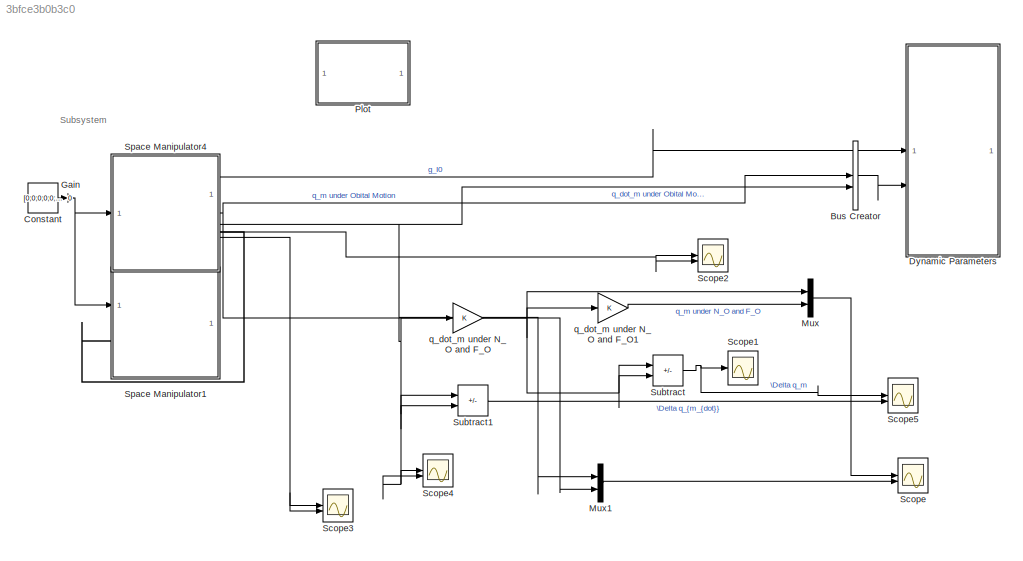
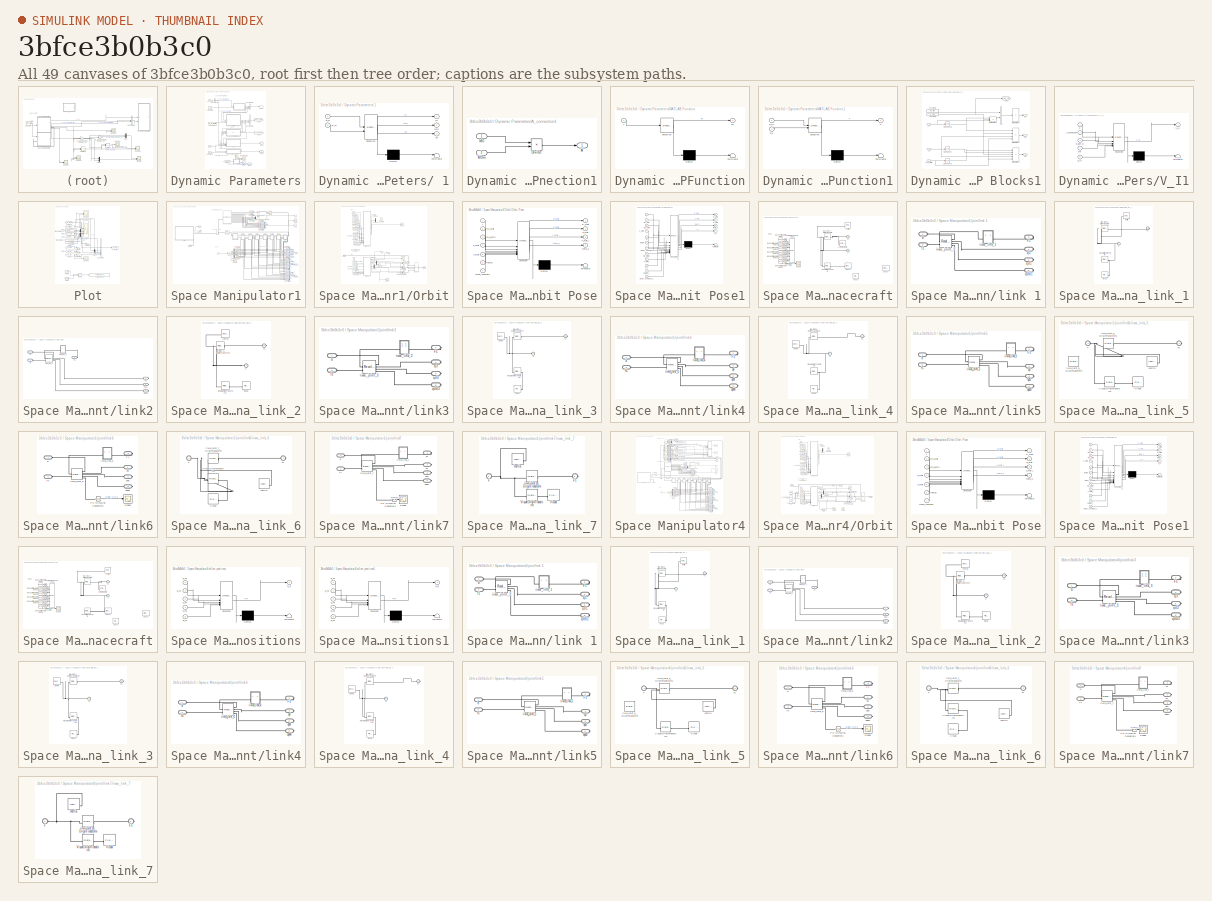
[diagram: thumbnail index - all 49 canvases of the model, root first then tree order]
MODEL slx_3bfce3b0b3c0
KIND model
CONFIG AbsTol = auto
CONFIG EnableMultiTasking = off
CONFIG FixedStep = 0.001
CONFIG InitFcn = %rho_0t=[0.29;0.29;0.29]; %m\n%V_0t=[-0.001;-0.001;0];%[-0.0005;-0.0005;0];\n%w_t=[0;0;-0.002];\n\n\n%rho_0t=[0.3;0.3;0.2]; %m\n%V_0t=[-0.001;-0.001;0];%[-0.0005;-0.0005;0];\n%w_t=[0;0;-0.001];
CONFIG MaxStep = auto
CONFIG MinStep = auto
CONFIG RelTol = 1e-3
CONFIG SampleTimeConstraint = Unconstrained
CONFIG SolverName = ode4
CONFIG StartTime = 0.0
CONFIG StopTime = 60
BLOCK [BusCreator] Bus Creator
  DisplayOption = bar
  InheritFromInputs = on
  Inputs = 2
BLOCK [Constant] Constant
  Value = [0;0;0;0;0;0;0]
BLOCK [SubSystem] Dynamic Parameters
BLOCK [SubSystem] Dynamic Parameters/ 1
  ErrorFcn = Stateflow.Translate.translate
  PermitHierarchicalResolution = ExplicitOnly
  SFBlockType = MATLAB Function
  TreatAsAtomicUnit = on
BLOCK [Demux] Dynamic Parameters/ 1/ Demux 
  Outputs = 1
BLOCK [S-Function] Dynamic Parameters/ 1/ SFunction 
  EnableBusSupport = on
  FunctionName = sf_sfun
  PortCounts = [2 4]
  SFcnIsStateOwnerBlock = off
  SFunctionDeploymentMode = off
  Tag = Stateflow S-Function 34
BLOCK [Terminator] Dynamic Parameters/ 1/ Terminator 
BLOCK [Outport] Dynamic Parameters/ 1/L0
BLOCK [Outport] Dynamic Parameters/ 1/Lm
  Port = 3
BLOCK [Outport] Dynamic Parameters/ 1/Lm0
  Port = 2
BLOCK [Inport] Dynamic Parameters/ 1/Xi_m
  Port = 2
BLOCK [Inport] Dynamic Parameters/ 1/q_m
BLOCK [SubSystem] Dynamic Parameters/A_connection1
BLOCK [Outport] Dynamic Parameters/A_connection1/A
BLOCK [Product] Dynamic Parameters/A_connection1/Divide
  Inputs = /*
  Multiplication = Matrix(*)
BLOCK [Inport] Dynamic Parameters/A_connection1/M0
BLOCK [Inport] Dynamic Parameters/A_connection1/M0m
  Port = 2
BLOCK [BusCreator] Dynamic Parameters/Bus Creator3
  DisplayOption = bar
  InheritFromInputs = on
  Inputs = M0,M0m,Mm
BLOCK [BusCreator] Dynamic Parameters/Bus Creator4
  DisplayOption = bar
  InheritFromInputs = on
  Inputs = 3
BLOCK [BusSelector] Dynamic Parameters/Bus Selector
  OutputSignals = q_m under Obital Motion,q_dot_m under Obital Motion
BLOCK [Constant] Dynamic Parameters/Constant1
  Value = mu
BLOCK [Constant] Dynamic Parameters/Constant4
  Value = Xi_m
BLOCK [Constant] Dynamic Parameters/Constant7
  Value = Xi_m_matrix
BLOCK [From] Dynamic Parameters/From1
  GotoTag = A_connection
  TagVisibility = global
BLOCK [Goto] Dynamic Parameters/Goto
  GotoTag = Mass_Matrix
  TagVisibility = global
BLOCK [Goto] Dynamic Parameters/Goto1
  GotoTag = A_connection
  TagVisibility = global
BLOCK [Goto] Dynamic Parameters/Goto2
  GotoTag = w
  TagVisibility = global
BLOCK [Goto] Dynamic Parameters/Goto3
  GotoTag = V_Ie
  TagVisibility = global
BLOCK [Goto] Dynamic Parameters/Goto4
  GotoTag = P
  TagVisibility = global
BLOCK [Goto] Dynamic Parameters/Goto5
  GotoTag = L
  TagVisibility = global
BLOCK [Goto] Dynamic Parameters/Goto6
  GotoTag = w_plot
  TagVisibility = global
BLOCK [SubSystem] Dynamic Parameters/MATLAB Function
  ErrorFcn = Stateflow.Translate.translate
  PermitHierarchicalResolution = ExplicitOnly
  SFBlockType = MATLAB Function
  TreatAsAtomicUnit = on
BLOCK [Demux] Dynamic Parameters/MATLAB Function/ Demux 
  Outputs = 1
BLOCK [S-Function] Dynamic Parameters/MATLAB Function/ SFunction 
  EnableBusSupport = on
  FunctionName = sf_sfun
  PortCounts = [1 2]
  SFcnIsStateOwnerBlock = off
  SFunctionDeploymentMode = off
  Tag = Stateflow S-Function 4
BLOCK [Terminator] Dynamic Parameters/MATLAB Function/ Terminator 
BLOCK [Inport] Dynamic Parameters/MATLAB Function/A
BLOCK [Outport] Dynamic Parameters/MATLAB Function/wt
BLOCK [SubSystem] Dynamic Parameters/MATLAB Function1
  ErrorFcn = Stateflow.Translate.translate
  PermitHierarchicalResolution = ExplicitOnly
  SFBlockType = MATLAB Function
  TreatAsAtomicUnit = on
BLOCK [Demux] Dynamic Parameters/MATLAB Function1/ Demux 
  Outputs = 1
BLOCK [S-Function] Dynamic Parameters/MATLAB Function1/ SFunction 
  EnableBusSupport = on
  FunctionName = sf_sfun
  PortCounts = [2 2]
  SFcnIsStateOwnerBlock = off
  SFunctionDeploymentMode = off
  Tag = Stateflow S-Function 22
BLOCK [Terminator] Dynamic Parameters/MATLAB Function1/ Terminator 
BLOCK [Outport] Dynamic Parameters/MATLAB Function1/P
BLOCK [Inport] Dynamic Parameters/MATLAB Function1/g_I0
BLOCK [Inport] Dynamic Parameters/MATLAB Function1/mu
  Port = 2
BLOCK [SubSystem] Dynamic Parameters/Mass Matrix Blocks1
BLOCK [Sum] Dynamic Parameters/Mass Matrix Blocks1/Add
  IconShape = rectangular
BLOCK [Constant] Dynamic Parameters/Mass Matrix Blocks1/Constant1
  Value = m0_frak
  VectorParams1D = off
BLOCK [Constant] Dynamic Parameters/Mass Matrix Blocks1/Constant2
  Value = m_diag
  VectorParams1D = off
BLOCK [Goto] Dynamic Parameters/Mass Matrix Blocks1/Goto1
  GotoTag = diag_Mm
  TagVisibility = global
BLOCK [Inport] Dynamic Parameters/Mass Matrix Blocks1/Lm
BLOCK [Inport] Dynamic Parameters/Mass Matrix Blocks1/Lm0
  Port = 2
BLOCK [Outport] Dynamic Parameters/Mass Matrix Blocks1/M0
BLOCK [Outport] Dynamic Parameters/Mass Matrix Blocks1/M0m
  Port = 2
BLOCK [Product] Dynamic Parameters/Mass Matrix Blocks1/Matrix Multiply1
  Inputs = 4
  Multiplication = Matrix(*)
BLOCK [Product] Dynamic Parameters/Mass Matrix Blocks1/Matrix Multiply3
  Inputs = 5
  Multiplication = Matrix(*)
BLOCK [Product] Dynamic Parameters/Mass Matrix Blocks1/Matrix Multiply4
  Inputs = 3
  Multiplication = Matrix(*)
BLOCK [Product] Dynamic Parameters/Mass Matrix Blocks1/Matrix Multiply5
  Inputs = 1
  Multiplication = Matrix(*)
BLOCK [Outport] Dynamic Parameters/Mass Matrix Blocks1/Mm
  Port = 3
BLOCK [Math] Dynamic Parameters/Mass Matrix Blocks1/Transpose3
  Operator = transpose
BLOCK [Math] Dynamic Parameters/Mass Matrix Blocks1/Transpose4
  Operator = transpose
BLOCK [Math] Dynamic Parameters/Mass Matrix Blocks1/Transpose5
  Operator = transpose
BLOCK [Inport] Dynamic Parameters/Mass Matrix Blocks1/Xi_m_matrix
  Port = 3
BLOCK [SubSystem] Dynamic Parameters/V_I1
  ErrorFcn = Stateflow.Translate.translate
  PermitHierarchicalResolution = ExplicitOnly
  SFBlockType = MATLAB Function
  TreatAsAtomicUnit = on
BLOCK [Demux] Dynamic Parameters/V_I1/ Demux 
  Outputs = 1
BLOCK [S-Function] Dynamic Parameters/V_I1/ SFunction 
  EnableBusSupport = on
  FunctionName = sf_sfun
  PortCounts = [5 2]
  SFcnIsStateOwnerBlock = off
  SFunctionDeploymentMode = off
  Tag = Stateflow S-Function 12
BLOCK [Terminator] Dynamic Parameters/V_I1/ Terminator 
BLOCK [Inport] Dynamic Parameters/V_I1/A_connection
  Port = 2
BLOCK [Inport] Dynamic Parameters/V_I1/M0
  Port = 4
BLOCK [Inport] Dynamic Parameters/V_I1/P
BLOCK [Outport] Dynamic Parameters/V_I1/V_I0
BLOCK [Inport] Dynamic Parameters/V_I1/g_I0
  Port = 5
BLOCK [Inport] Dynamic Parameters/V_I1/q_dot_m
  Port = 3
BLOCK [Inport] Dynamic Parameters/g_I0
BLOCK [Scope] Dynamic Parameters/manipulability
  Floating = off
  NumInputPorts = 2
  ScopeSpecificationString = Simulink.scopes.TimeScopeBlockCfg('CurrentConfiguration', extmgr.ConfigurationSet(extmgr.Configuration('Core','General UI',true,'FigureColor',[1 1 1]),extmgr.Configuration('Core','Source UI',true),extmgr.Configuration('Sources','WiredSimulink',true,'DataLoggingVariableName','ScopeData1'),extmgr.Configuration('Visuals','Time Domain',true,'SerializedDisplays',{struct('MinYLimReal','0.00157','MaxYLim...<+1665ch>
BLOCK [Inport] Dynamic Parameters/q_ddot_m
  Port = 2
BLOCK [Constant] Dynamic Parameters/trigger
  Value = 0.003
BLOCK [Gain] Gain
  Gain = 0
BLOCK [Mux] Mux
  DisplayOption = bar
  Inputs = 2
BLOCK [Mux] Mux1
  DisplayOption = bar
  Inputs = 2
BLOCK [SubSystem] Plot
BLOCK [BusCreator] Plot/Bus Creator
  Commented = on
  DisplayOption = bar
  InheritFromInputs = on
  Inputs = 5
BLOCK [Product] Plot/Divide
  Commented = on
  Inputs = /*
  Multiplication = Matrix(*)
BLOCK [From] Plot/From
  Commented = on
  GotoTag = E_g_plot
BLOCK [From] Plot/From1
  Commented = on
  GotoTag = v_error_plot
BLOCK [From] Plot/From2
  Commented = on
  GotoTag = w_plot
  TagVisibility = global
BLOCK [From] Plot/From3
  Commented = on
  GotoTag = p_e_plot
BLOCK [From] Plot/From4
  Commented = on
  GotoTag = p_joints_plot
BLOCK [From] Plot/From5
  Commented = on
  GotoTag = Uc_plot
BLOCK [From] Plot/From6
  Commented = on
  GotoTag = Fm_plot
BLOCK [From] Plot/From7
  Commented = on
  GotoTag = nu_plot
BLOCK [From] Plot/From8
  Commented = on
  GotoTag = g_te
BLOCK [From] Plot/From9
  Commented = on
  GotoTag = g_n0
  TagVisibility = global
BLOCK [Mux] Plot/Mux
  Commented = on
  DisplayOption = bar
  Inputs = [1 4 1 1]
BLOCK [Mux] Plot/Mux1
  Commented = on
  DisplayOption = bar
  Inputs = 2
BLOCK [Mux] Plot/Mux2
  Commented = on
  DisplayOption = bar
  Inputs = 2
BLOCK [Scope] Plot/Scope
  Commented = on
  Floating = off
  NumInputPorts = 4
  ScopeSpecificationString = Simulink.scopes.TimeScopeBlockCfg('CurrentConfiguration', extmgr.ConfigurationSet(extmgr.Configuration('Core','General UI',true,'FigureColor',[1 1 1]),extmgr.Configuration('Core','Source UI',true),extmgr.Configuration('Sources','WiredSimulink',true,'DataLoggingVariableName','ScopeData1'),extmgr.Configuration('Visuals','Time Domain',true,'SerializedDisplays',{struct('MinYLimReal','-0.0117','MaxYLim...<+4839ch>
BLOCK [Scope] Plot/Scope1
  Commented = on
  Floating = off
  NumInputPorts = 1
  ScopeSpecificationString = Simulink.scopes.TimeScopeBlockCfg('CurrentConfiguration', extmgr.ConfigurationSet(extmgr.Configuration('Core','General UI',true,'FigureColor',[1 1 1]),extmgr.Configuration('Core','Source UI',true),extmgr.Configuration('Sources','WiredSimulink',true,'DataLoggingVariableName','ScopeData1'),extmgr.Configuration('Visuals','Time Domain',true,'SerializedDisplays',{struct('MinYLimReal','-0.5','MaxYLimRea...<+1791ch>
BLOCK [Scope] Plot/Scope2
  Commented = on
  Floating = off
  NumInputPorts = 2
  ScopeSpecificationString = Simulink.scopes.TimeScopeBlockCfg('CurrentConfiguration', extmgr.ConfigurationSet(extmgr.Configuration('Core','General UI',true,'FigureColor',[1 1 1]),extmgr.Configuration('Core','Source UI',true),extmgr.Configuration('Sources','WiredSimulink',true,'DataLoggingVariableName','ScopeData2'),extmgr.Configuration('Visuals','Time Domain',true,'SerializedDisplays',{struct('MinYLimReal','-0.01187','MaxYLi...<+4726ch>
BLOCK [Constant] Plot/Self Collision
  Commented = on
  Value = sc_size/2*sqrt(2)
BLOCK [Terminator] Plot/Terminator
  Commented = on
BLOCK [Terminator] Plot/Terminator1
  Commented = on
BLOCK [Terminator] Plot/Terminator2
  Commented = on
BLOCK [Terminator] Plot/Terminator3
  Commented = on
BLOCK [ToFile] Plot/To File
  Commented = on
  Filename = result.mat
BLOCK [ToWorkspace] Plot/To Workspace
  Commented = on
  FixptAsFi = on
  MaxDataPoints = inf
  SampleTime = -1
  SaveFormat = Timeseries
  VariableName = g_nt
BLOCK [Constant] Plot/Trigger Distance
  Commented = on
  Value = sc_size/2*sqrt(2)+0.05
BLOCK [Constant] Plot/Trigger Distance1
  Commented = on
  Value = 0.003
BLOCK [Scope] Scope
  Floating = off
  NumInputPorts = 2
  ScopeSpecificationString = Simulink.scopes.TimeScopeBlockCfg('CurrentConfiguration', extmgr.ConfigurationSet(extmgr.Configuration('Core','General UI',true,'FigureColor',[1 1 1]),extmgr.Configuration('Core','Source UI',true),extmgr.Configuration('Sources','WiredSimulink',true,'DataLoggingVariableName','ScopeData1'),extmgr.Configuration('Visuals','Time Domain',true,'SerializedDisplays',{struct('MinYLimReal','-0.10635','MaxYLi...<+5800ch>
BLOCK [Scope] Scope1
  Floating = off
  NumInputPorts = 1
  ScopeSpecificationString = Simulink.scopes.TimeScopeBlockCfg('CurrentConfiguration', extmgr.ConfigurationSet(extmgr.Configuration('Core','General UI',true,'FigureColor',[1 1 1]),extmgr.Configuration('Core','Source UI',true),extmgr.Configuration('Sources','WiredSimulink',true,'DataLoggingVariableName','ScopeData2'),extmgr.Configuration('Visuals','Time Domain',true,'SerializedDisplays',{struct('MinYLimReal','-1.00000','MaxYLi...<+2889ch>
BLOCK [Scope] Scope2
  Floating = off
  NumInputPorts = 2
  ScopeSpecificationString = Simulink.scopes.TimeScopeBlockCfg('CurrentConfiguration', extmgr.ConfigurationSet(extmgr.Configuration('Core','General UI',true,'FigureColor',[1 1 1]),extmgr.Configuration('Core','Source UI',true),extmgr.Configuration('Sources','WiredSimulink',true,'DataLoggingVariableName','ScopeData3'),extmgr.Configuration('Visuals','Time Domain',true,'SerializedDisplays',{struct('MinYLimReal','-1816.68917','Max...<+3430ch>
BLOCK [Scope] Scope3
  Floating = off
  NumInputPorts = 2
  ScopeSpecificationString = Simulink.scopes.TimeScopeBlockCfg('CurrentConfiguration', extmgr.ConfigurationSet(extmgr.Configuration('Core','General UI',true,'FigureColor',[1 1 1]),extmgr.Configuration('Core','Source UI',true),extmgr.Configuration('Sources','WiredSimulink',true,'DataLoggingVariableName','ScopeData4'),extmgr.Configuration('Visuals','Time Domain',true,'SerializedDisplays',{struct('MinYLimReal','-30.27797','MaxYL...<+3460ch>
BLOCK [Scope] Scope4
  Floating = off
  NumInputPorts = 2
  ScopeSpecificationString = Simulink.scopes.TimeScopeBlockCfg('CurrentConfiguration', extmgr.ConfigurationSet(extmgr.Configuration('Core','General UI',true,'FigureColor',[1 1 1]),extmgr.Configuration('Core','Source UI',true),extmgr.Configuration('Sources','WiredSimulink',true,'DataLoggingVariableName','ScopeData5'),extmgr.Configuration('Visuals','Time Domain',true,'SerializedDisplays',{struct('MinYLimReal','-0.00043','MaxYLi...<+3759ch>
BLOCK [Scope] Scope5
  Floating = off
  NumInputPorts = 2
  ScopeSpecificationString = Simulink.scopes.TimeScopeBlockCfg('CurrentConfiguration', extmgr.ConfigurationSet(extmgr.Configuration('Core','General UI',true,'FigureColor',[1 1 1]),extmgr.Configuration('Core','Source UI',true),extmgr.Configuration('Sources','WiredSimulink',true,'DataLoggingVariableName','ScopeData1'),extmgr.Configuration('Visuals','Time Domain',true,'SerializedDisplays',{struct('MinYLimReal','-1.00000','MaxYLi...<+5254ch>
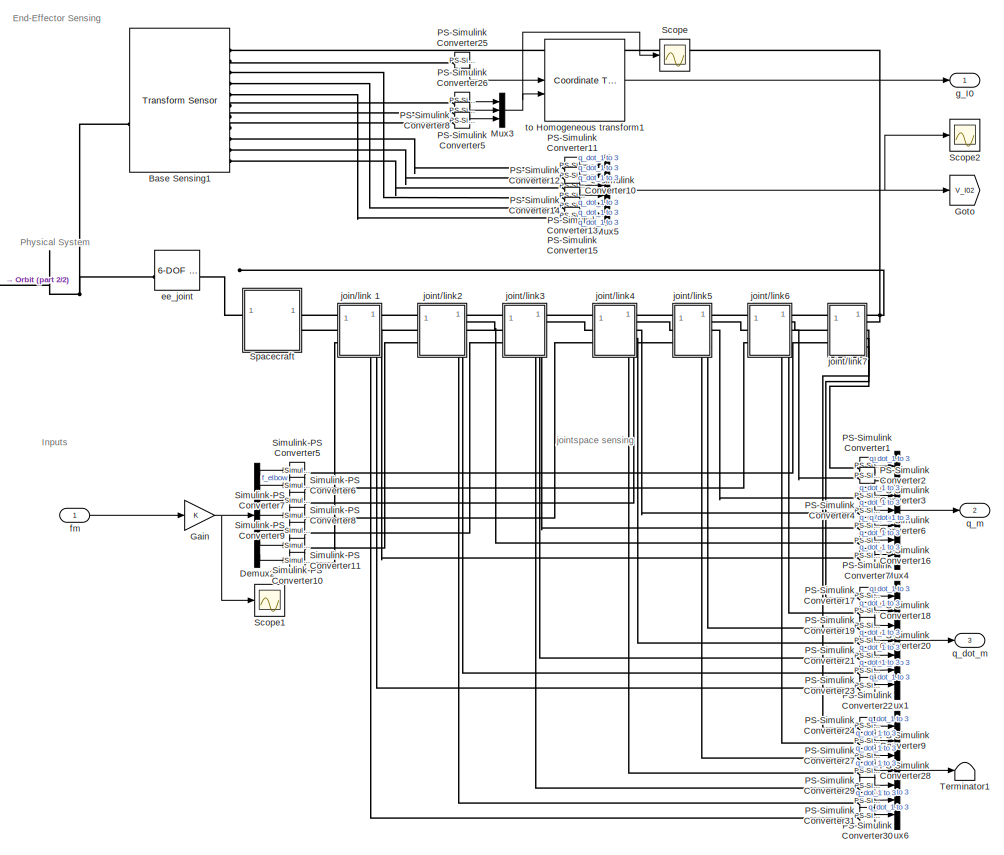
[diagram: Space Manipulator1 - part 1/2, center side, full height]
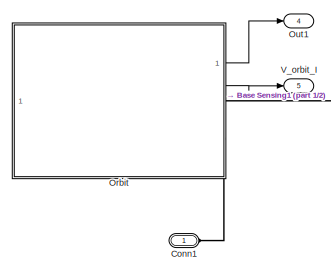
[diagram: Space Manipulator1 - part 2/2, middle left region]
BLOCK [SubSystem] Space Manipulator1
  Commented = on
BLOCK [Reference] Space Manipulator1/Base Sensing1  REF=sm_lib/Frames and
Transforms/Transform
Sensor
  SourceBlock = sm_lib/Frames and\nTransforms/Transform\nSensor
  SourceType = Transform\nSensor
BLOCK [PMIOPort] Space Manipulator1/Conn1
  Side = Left
BLOCK [Demux] Space Manipulator1/Demux2
  Outputs = 7
BLOCK [Gain] Space Manipulator1/Gain
BLOCK [Goto] Space Manipulator1/Goto
  GotoTag = V_I02
  TagVisibility = global
BLOCK [Mux] Space Manipulator1/Mux1
  DisplayOption = bar
  Inputs = 7
BLOCK [Mux] Space Manipulator1/Mux3
  DisplayOption = bar
  Inputs = 3
BLOCK [Mux] Space Manipulator1/Mux4
  DisplayOption = bar
  Inputs = 7
BLOCK [Mux] Space Manipulator1/Mux5
  DisplayOption = bar
  Inputs = 6
BLOCK [Mux] Space Manipulator1/Mux6
  DisplayOption = bar
  Inputs = 7
BLOCK [SubSystem] Space Manipulator1/Orbit
BLOCK [Clock] Space Manipulator1/Orbit/Clock
BLOCK [Clock] Space Manipulator1/Orbit/Clock2
  Commented = on
BLOCK [PMIOPort] Space Manipulator1/Orbit/Conn1
  Side = Right
BLOCK [PMIOPort] Space Manipulator1/Orbit/Conn2
  NameLocation = top
  Port = 2
  Side = Right
BLOCK [Constant] Space Manipulator1/Orbit/Constant
  Value = Mean_Anomaly0
BLOCK [Constant] Space Manipulator1/Orbit/Constant1
  Value = e_orbit
BLOCK [Constant] Space Manipulator1/Orbit/Constant10
  Commented = on
  Value = e_orbit
BLOCK [Constant] Space Manipulator1/Orbit/Constant11
  Commented = on
  Value = n_orbit
BLOCK [Constant] Space Manipulator1/Orbit/Constant12
  Commented = on
  Value = mu_earth
BLOCK [Constant] Space Manipulator1/Orbit/Constant13
  Commented = on
  Value = mu_orbit
BLOCK [Constant] Space Manipulator1/Orbit/Constant14
  Commented = on
  Value = theta0
BLOCK [Constant] Space Manipulator1/Orbit/Constant15
  Commented = on
  Value = Mean_Anomaly0_t
BLOCK [Constant] Space Manipulator1/Orbit/Constant16
  Commented = on
  Value = e_orbit_t
BLOCK [Constant] Space Manipulator1/Orbit/Constant17
  Commented = on
  Value = n_orbit_t
BLOCK [Constant] Space Manipulator1/Orbit/Constant19
  Commented = on
  Value = mu_orbit_t
BLOCK [Constant] Space Manipulator1/Orbit/Constant2
  Value = n_orbit
BLOCK [Constant] Space Manipulator1/Orbit/Constant20
  Commented = on
  Value = theta0_t
BLOCK [Constant] Space Manipulator1/Orbit/Constant3
  Value = mu_earth
BLOCK [Constant] Space Manipulator1/Orbit/Constant4
  Value = mu_orbit
BLOCK [Constant] Space Manipulator1/Orbit/Constant5
  Value = theta0
BLOCK [Constant] Space Manipulator1/Orbit/Constant7
  Value = 0
BLOCK [Constant] Space Manipulator1/Orbit/Constant8
  Commented = on
  Value = n_orbit_t-n_orbit
BLOCK [Constant] Space Manipulator1/Orbit/Constant9
  Commented = on
  Value = Mean_Anomaly0
BLOCK [Demux] Space Manipulator1/Orbit/Demux1
  Outputs = 3
BLOCK [Demux] Space Manipulator1/Orbit/Demux2
  Outputs = 3
BLOCK [Demux] Space Manipulator1/Orbit/Demux3
  Commented = on
  Outputs = 3
BLOCK [Gain] Space Manipulator1/Orbit/Gain
BLOCK [SubSystem] Space Manipulator1/Orbit/Orbit Pose
  ErrorFcn = Stateflow.Translate.translate
  PermitHierarchicalResolution = ExplicitOnly
  SFBlockType = MATLAB Function
  TreatAsAtomicUnit = on
BLOCK [Demux] Space Manipulator1/Orbit/Orbit Pose/ Demux 
  Outputs = 1
BLOCK [S-Function] Space Manipulator1/Orbit/Orbit Pose/ SFunction 
  EnableBusSupport = on
  FunctionName = sf_sfun
  PortCounts = [7 5]
  SFcnIsStateOwnerBlock = off
  SFunctionDeploymentMode = off
  Tag = Stateflow S-Function 1
BLOCK [Terminator] Space Manipulator1/Orbit/Orbit Pose/ Terminator 
BLOCK [Inport] Space Manipulator1/Orbit/Orbit Pose/Mean_Anomaly0
  Port = 7
BLOCK [Outport] Space Manipulator1/Orbit/Orbit Pose/R_orbit
BLOCK [Outport] Space Manipulator1/Orbit/Orbit Pose/V_orbit_I
  Port = 3
BLOCK [Inport] Space Manipulator1/Orbit/Orbit Pose/e_orbit
  Port = 4
BLOCK [Inport] Space Manipulator1/Orbit/Orbit Pose/mu_earth
  Port = 3
BLOCK [Inport] Space Manipulator1/Orbit/Orbit Pose/mu_orbit
  Port = 2
BLOCK [Inport] Space Manipulator1/Orbit/Orbit Pose/n_orbit
  Port = 5
BLOCK [Outport] Space Manipulator1/Orbit/Orbit Pose/p_orbit
  Port = 2
BLOCK [Inport] Space Manipulator1/Orbit/Orbit Pose/t
BLOCK [Inport] Space Manipulator1/Orbit/Orbit Pose/theta0
  Port = 6
BLOCK [Outport] Space Manipulator1/Orbit/Orbit Pose/theta_z
  Port = 4
BLOCK [SubSystem] Space Manipulator1/Orbit/Orbit Pose1
  Commented = on
  ErrorFcn = Stateflow.Translate.translate
  PermitHierarchicalResolution = ExplicitOnly
  SFBlockType = MATLAB Function
  TreatAsAtomicUnit = on
BLOCK [Demux] Space Manipulator1/Orbit/Orbit Pose1/ Demux 
  Outputs = 1
BLOCK [S-Function] Space Manipulator1/Orbit/Orbit Pose1/ SFunction 
  EnableBusSupport = on
  FunctionName = sf_sfun
  PortCounts = [12 5]
  SFcnIsStateOwnerBlock = off
  SFunctionDeploymentMode = off
  Tag = Stateflow S-Function 2
BLOCK [Terminator] Space Manipulator1/Orbit/Orbit Pose1/ Terminator 
BLOCK [Inport] Space Manipulator1/Orbit/Orbit Pose1/Mean_Anomaly0
  Port = 7
BLOCK [Inport] Space Manipulator1/Orbit/Orbit Pose1/Mean_Anomaly0_t
  Port = 12
BLOCK [Outport] Space Manipulator1/Orbit/Orbit Pose1/R_orbit
BLOCK [Inport] Space Manipulator1/Orbit/Orbit Pose1/e_orbit
  Port = 4
BLOCK [Inport] Space Manipulator1/Orbit/Orbit Pose1/e_orbit_t
  Port = 9
BLOCK [Inport] Space Manipulator1/Orbit/Orbit Pose1/mu_earth
  Port = 3
BLOCK [Inport] Space Manipulator1/Orbit/Orbit Pose1/mu_orbit
  Port = 2
BLOCK [Inport] Space Manipulator1/Orbit/Orbit Pose1/mu_orbit_t
  Port = 8
BLOCK [Inport] Space Manipulator1/Orbit/Orbit Pose1/n
  Port = 5
BLOCK [Inport] Space Manipulator1/Orbit/Orbit Pose1/n_t
  Port = 10
BLOCK [Outport] Space Manipulator1/Orbit/Orbit Pose1/p_orbit
  Port = 2
BLOCK [Inport] Space Manipulator1/Orbit/Orbit Pose1/t
BLOCK [Inport] Space Manipulator1/Orbit/Orbit Pose1/theta0
  Port = 6
BLOCK [Inport] Space Manipulator1/Orbit/Orbit Pose1/theta0_t
  Port = 11
BLOCK [Outport] Space Manipulator1/Orbit/Orbit Pose1/theta_z
  Port = 3
BLOCK [Outport] Space Manipulator1/Orbit/Orbit Pose1/w_z
  Port = 4
BLOCK [Outport] Space Manipulator1/Orbit/Out1
BLOCK [Reference] Space Manipulator1/Orbit/Planar Joint  REF=sm_lib/Joints/Planar Joint
  SourceBlock = sm_lib/Joints/Planar Joint
  SourceType = Planar Joint
BLOCK [Scope] Space Manipulator1/Orbit/Scope1
  Floating = off
  NumInputPorts = 1
  ScopeSpecificationString = Simulink.scopes.TimeScopeBlockCfg('CurrentConfiguration', extmgr.ConfigurationSet(extmgr.Configuration('Core','General UI',true),extmgr.Configuration('Core','Source UI',true),extmgr.Configuration('Sources','WiredSimulink',true,'DataLoggingVariableName','ScopeData1'),extmgr.Configuration('Visuals','Time Domain',true,'SerializedDisplays',{struct('MinYLimReal','-1816.68917','MaxYLimReal','201.85435',...<+1686ch>
BLOCK [Scope] Space Manipulator1/Orbit/Scope3
  Floating = off
  NumInputPorts = 1
  ScopeSpecificationString = Simulink.scopes.TimeScopeBlockCfg('CurrentConfiguration', extmgr.ConfigurationSet(extmgr.Configuration('Core','General UI',true),extmgr.Configuration('Core','Source UI',true),extmgr.Configuration('Sources','WiredSimulink',true,'DataLoggingVariableName','ScopeData3'),extmgr.Configuration('Visuals','Time Domain',true,'SerializedDisplays',{struct('MinYLimReal','-1816.68917','MaxYLimReal','201.85435',...<+1660ch>
BLOCK [Scope] Space Manipulator1/Orbit/Scope4
  Commented = on
  Floating = off
  NumInputPorts = 1
  ScopeSpecificationString = Simulink.scopes.TimeScopeBlockCfg('CurrentConfiguration', extmgr.ConfigurationSet(extmgr.Configuration('Core','General UI',true),extmgr.Configuration('Core','Source UI',true),extmgr.Configuration('Sources','WiredSimulink',true,'DataLoggingVariableName','ScopeData5'),extmgr.Configuration('Visuals','Time Domain',true,'SerializedDisplays',{struct('MinYLimReal','-1792753.5855','MaxYLimReal','16134782....<+1649ch>
BLOCK [Reference] Space Manipulator1/Orbit/Simulink-PS Converter1  REF=nesl_utility/Simulink-PS
Converter
  SourceBlock = nesl_utility/Simulink-PS\nConverter
  SourceType = Simulink-PS\nConverter
BLOCK [Reference] Space Manipulator1/Orbit/Simulink-PS Converter12  REF=nesl_utility/Simulink-PS
Converter
  SourceBlock = nesl_utility/Simulink-PS\nConverter
  SourceType = Simulink-PS\nConverter
BLOCK [Reference] Space Manipulator1/Orbit/Simulink-PS Converter2  REF=nesl_utility/Simulink-PS
Converter
  SourceBlock = nesl_utility/Simulink-PS\nConverter
  SourceType = Simulink-PS\nConverter
BLOCK [Reference] Space Manipulator1/Orbit/Simulink-PS Converter3  REF=nesl_utility/Simulink-PS
Converter
  Commented = on
  SourceBlock = nesl_utility/Simulink-PS\nConverter
  SourceType = Simulink-PS\nConverter
BLOCK [Terminator] Space Manipulator1/Orbit/Terminator1
BLOCK [Terminator] Space Manipulator1/Orbit/Terminator2
BLOCK [Terminator] Space Manipulator1/Orbit/Terminator6
  Commented = on
BLOCK [Outport] Space Manipulator1/Orbit/V_orbit_I
  Port = 2
BLOCK [Outport] Space Manipulator1/Out1
  Port = 4
BLOCK [Reference] Space Manipulator1/PS-Simulink Converter1  REF=nesl_utility/PS-Simulink
Converter
  SourceBlock = nesl_utility/PS-Simulink\nConverter
  SourceType = PS-Simulink\nConverter
BLOCK [Reference] Space Manipulator1/PS-Simulink Converter10  REF=nesl_utility/PS-Simulink
Converter
  SourceBlock = nesl_utility/PS-Simulink\nConverter
  SourceType = PS-Simulink\nConverter
BLOCK [Reference] Space Manipulator1/PS-Simulink Converter11  REF=nesl_utility/PS-Simulink
Converter
  SourceBlock = nesl_utility/PS-Simulink\nConverter
  SourceType = PS-Simulink\nConverter
BLOCK [Reference] Space Manipulator1/PS-Simulink Converter12  REF=nesl_utility/PS-Simulink
Converter
  SourceBlock = nesl_utility/PS-Simulink\nConverter
  SourceType = PS-Simulink\nConverter
BLOCK [Reference] Space Manipulator1/PS-Simulink Converter13  REF=nesl_utility/PS-Simulink
Converter
  SourceBlock = nesl_utility/PS-Simulink\nConverter
  SourceType = PS-Simulink\nConverter
BLOCK [Reference] Space Manipulator1/PS-Simulink Converter14  REF=nesl_utility/PS-Simulink
Converter
  SourceBlock = nesl_utility/PS-Simulink\nConverter
  SourceType = PS-Simulink\nConverter
BLOCK [Reference] Space Manipulator1/PS-Simulink Converter15  REF=nesl_utility/PS-Simulink
Converter
  SourceBlock = nesl_utility/PS-Simulink\nConverter
  SourceType = PS-Simulink\nConverter
BLOCK [Reference] Space Manipulator1/PS-Simulink Converter16  REF=nesl_utility/PS-Simulink
Converter
  SourceBlock = nesl_utility/PS-Simulink\nConverter
  SourceType = PS-Simulink\nConverter
BLOCK [Reference] Space Manipulator1/PS-Simulink Converter17  REF=nesl_utility/PS-Simulink
Converter
  SourceBlock = nesl_utility/PS-Simulink\nConverter
  SourceType = PS-Simulink\nConverter
BLOCK [Reference] Space Manipulator1/PS-Simulink Converter18  REF=nesl_utility/PS-Simulink
Converter
  SourceBlock = nesl_utility/PS-Simulink\nConverter
  SourceType = PS-Simulink\nConverter
BLOCK [Reference] Space Manipulator1/PS-Simulink Converter19  REF=nesl_utility/PS-Simulink
Converter
  SourceBlock = nesl_utility/PS-Simulink\nConverter
  SourceType = PS-Simulink\nConverter
BLOCK [Reference] Space Manipulator1/PS-Simulink Converter2  REF=nesl_utility/PS-Simulink
Converter
  SourceBlock = nesl_utility/PS-Simulink\nConverter
  SourceType = PS-Simulink\nConverter
BLOCK [Reference] Space Manipulator1/PS-Simulink Converter20  REF=nesl_utility/PS-Simulink
Converter
  SourceBlock = nesl_utility/PS-Simulink\nConverter
  SourceType = PS-Simulink\nConverter
BLOCK [Reference] Space Manipulator1/PS-Simulink Converter21  REF=nesl_utility/PS-Simulink
Converter
  SourceBlock = nesl_utility/PS-Simulink\nConverter
  SourceType = PS-Simulink\nConverter
BLOCK [Reference] Space Manipulator1/PS-Simulink Converter22  REF=nesl_utility/PS-Simulink
Converter
  SourceBlock = nesl_utility/PS-Simulink\nConverter
  SourceType = PS-Simulink\nConverter
BLOCK [Reference] Space Manipulator1/PS-Simulink Converter23  REF=nesl_utility/PS-Simulink
Converter
  SourceBlock = nesl_utility/PS-Simulink\nConverter
  SourceType = PS-Simulink\nConverter
BLOCK [Reference] Space Manipulator1/PS-Simulink Converter24  REF=nesl_utility/PS-Simulink
Converter
  SourceBlock = nesl_utility/PS-Simulink\nConverter
  SourceType = PS-Simulink\nConverter
BLOCK [Reference] Space Manipulator1/PS-Simulink Converter25  REF=nesl_utility/PS-Simulink
Converter
  SourceBlock = nesl_utility/PS-Simulink\nConverter
  SourceType = PS-Simulink\nConverter
BLOCK [Reference] Space Manipulator1/PS-Simulink Converter26  REF=nesl_utility/PS-Simulink
Converter
  SourceBlock = nesl_utility/PS-Simulink\nConverter
  SourceType = PS-Simulink\nConverter
BLOCK [Reference] Space Manipulator1/PS-Simulink Converter27  REF=nesl_utility/PS-Simulink
Converter
  SourceBlock = nesl_utility/PS-Simulink\nConverter
  SourceType = PS-Simulink\nConverter
BLOCK [Reference] Space Manipulator1/PS-Simulink Converter28  REF=nesl_utility/PS-Simulink
Converter
  SourceBlock = nesl_utility/PS-Simulink\nConverter
  SourceType = PS-Simulink\nConverter
BLOCK [Reference] Space Manipulator1/PS-Simulink Converter29  REF=nesl_utility/PS-Simulink
Converter
  SourceBlock = nesl_utility/PS-Simulink\nConverter
  SourceType = PS-Simulink\nConverter
BLOCK [Reference] Space Manipulator1/PS-Simulink Converter3  REF=nesl_utility/PS-Simulink
Converter
  SourceBlock = nesl_utility/PS-Simulink\nConverter
  SourceType = PS-Simulink\nConverter
BLOCK [Reference] Space Manipulator1/PS-Simulink Converter30  REF=nesl_utility/PS-Simulink
Converter
  SourceBlock = nesl_utility/PS-Simulink\nConverter
  SourceType = PS-Simulink\nConverter
BLOCK [Reference] Space Manipulator1/PS-Simulink Converter31  REF=nesl_utility/PS-Simulink
Converter
  SourceBlock = nesl_utility/PS-Simulink\nConverter
  SourceType = PS-Simulink\nConverter
BLOCK [Reference] Space Manipulator1/PS-Simulink Converter4  REF=nesl_utility/PS-Simulink
Converter
  SourceBlock = nesl_utility/PS-Simulink\nConverter
  SourceType = PS-Simulink\nConverter
BLOCK [Reference] Space Manipulator1/PS-Simulink Converter5  REF=nesl_utility/PS-Simulink
Converter
  SourceBlock = nesl_utility/PS-Simulink\nConverter
  SourceType = PS-Simulink\nConverter
BLOCK [Reference] Space Manipulator1/PS-Simulink Converter6  REF=nesl_utility/PS-Simulink
Converter
  SourceBlock = nesl_utility/PS-Simulink\nConverter
  SourceType = PS-Simulink\nConverter
BLOCK [Reference] Space Manipulator1/PS-Simulink Converter7  REF=nesl_utility/PS-Simulink
Converter
  SourceBlock = nesl_utility/PS-Simulink\nConverter
  SourceType = PS-Simulink\nConverter
BLOCK [Reference] Space Manipulator1/PS-Simulink Converter8  REF=nesl_utility/PS-Simulink
Converter
  SourceBlock = nesl_utility/PS-Simulink\nConverter
  SourceType = PS-Simulink\nConverter
BLOCK [Reference] Space Manipulator1/PS-Simulink Converter9  REF=nesl_utility/PS-Simulink
Converter
  SourceBlock = nesl_utility/PS-Simulink\nConverter
  SourceType = PS-Simulink\nConverter
BLOCK [Scope] Space Manipulator1/Scope
  Floating = off
  NumInputPorts = 1
  ScopeSpecificationString = Simulink.scopes.TimeScopeBlockCfg('CurrentConfiguration', extmgr.ConfigurationSet(extmgr.Configuration('Core','General UI',true),extmgr.Configuration('Core','Source UI',true),extmgr.Configuration('Sources','WiredSimulink',true,'DataLoggingVariableName','ScopeData1'),extmgr.Configuration('Visuals','Time Domain',true,'SerializedDisplays',{struct('MinYLimReal','-0.12652','MaxYLimReal','0.04933','YLab...<+1841ch>
BLOCK [Scope] Space Manipulator1/Scope1
  Floating = off
  NumInputPorts = 1
  ScopeSpecificationString = Simulink.scopes.TimeScopeBlockCfg('CurrentConfiguration', extmgr.ConfigurationSet(extmgr.Configuration('Core','General UI',true),extmgr.Configuration('Core','Source UI',true),extmgr.Configuration('Sources','WiredSimulink',true,'DataLoggingVariableName','ScopeData1'),extmgr.Configuration('Visuals','Time Domain',true,'SerializedDisplays',{struct('MinYLimReal','-14.80411','MaxYLimReal','12.22163','YL...<+1755ch>
BLOCK [Scope] Space Manipulator1/Scope2
  Floating = off
  NumInputPorts = 1
  ScopeSpecificationString = Simulink.scopes.TimeScopeBlockCfg('CurrentConfiguration', extmgr.ConfigurationSet(extmgr.Configuration('Core','General UI',true),extmgr.Configuration('Core','Source UI',true),extmgr.Configuration('Sources','WiredSimulink',true,'DataLoggingVariableName','ScopeData2'),extmgr.Configuration('Visuals','Time Domain',true,'SerializedDisplays',{struct('MinYLimReal','-0.03616','MaxYLimReal','0.02513','YLab...<+1860ch>
BLOCK [Reference] Space Manipulator1/Simulink-PS Converter10  REF=nesl_utility/Simulink-PS
Converter
  SourceBlock = nesl_utility/Simulink-PS\nConverter
  SourceType = Simulink-PS\nConverter
BLOCK [Reference] Space Manipulator1/Simulink-PS Converter11  REF=nesl_utility/Simulink-PS
Converter
  SourceBlock = nesl_utility/Simulink-PS\nConverter
  SourceType = Simulink-PS\nConverter
BLOCK [Reference] Space Manipulator1/Simulink-PS Converter5  REF=nesl_utility/Simulink-PS
Converter
  SourceBlock = nesl_utility/Simulink-PS\nConverter
  SourceType = Simulink-PS\nConverter
BLOCK [Reference] Space Manipulator1/Simulink-PS Converter6  REF=nesl_utility/Simulink-PS
Converter
  SourceBlock = nesl_utility/Simulink-PS\nConverter
  SourceType = Simulink-PS\nConverter
BLOCK [Reference] Space Manipulator1/Simulink-PS Converter7  REF=nesl_utility/Simulink-PS
Converter
  SourceBlock = nesl_utility/Simulink-PS\nConverter
  SourceType = Simulink-PS\nConverter
BLOCK [Reference] Space Manipulator1/Simulink-PS Converter8  REF=nesl_utility/Simulink-PS
Converter
  SourceBlock = nesl_utility/Simulink-PS\nConverter
  SourceType = Simulink-PS\nConverter
BLOCK [Reference] Space Manipulator1/Simulink-PS Converter9  REF=nesl_utility/Simulink-PS
Converter
  SourceBlock = nesl_utility/Simulink-PS\nConverter
  SourceType = Simulink-PS\nConverter
BLOCK [SubSystem] Space Manipulator1/Spacecraft
BLOCK [Reference] Space Manipulator1/Spacecraft/Band-Limited White Noise  REF=simulink/Sources/Band-Limited
White Noise
  Commented = on
  SourceBlock = simulink/Sources/Band-Limited\nWhite Noise
  SourceType = Band-Limited White Noise.
BLOCK [Reference] Space Manipulator1/Spacecraft/Band-Limited White Noise1  REF=simulink/Sources/Band-Limited
White Noise
  Commented = on
  SourceBlock = simulink/Sources/Band-Limited\nWhite Noise
  SourceType = Band-Limited White Noise.
BLOCK [Reference] Space Manipulator1/Spacecraft/Band-Limited White Noise2  REF=simulink/Sources/Band-Limited
White Noise
  Commented = on
  SourceBlock = simulink/Sources/Band-Limited\nWhite Noise
  SourceType = Band-Limited White Noise.
BLOCK [Reference] Space Manipulator1/Spacecraft/Band-Limited White Noise3  REF=simulink/Sources/Band-Limited
White Noise
  Commented = on
  SourceBlock = simulink/Sources/Band-Limited\nWhite Noise
  SourceType = Band-Limited White Noise.
BLOCK [Reference] Space Manipulator1/Spacecraft/Band-Limited White Noise4  REF=simulink/Sources/Band-Limited
White Noise
  Commented = on
  SourceBlock = simulink/Sources/Band-Limited\nWhite Noise
  SourceType = Band-Limited White Noise.
BLOCK [Reference] Space Manipulator1/Spacecraft/Band-Limited White Noise5  REF=simulink/Sources/Band-Limited
White Noise
  Commented = on
  SourceBlock = simulink/Sources/Band-Limited\nWhite Noise
  SourceType = Band-Limited White Noise.
BLOCK [Reference] Space Manipulator1/Spacecraft/Base1  REF=sm_lib/Body Elements/Brick Solid
  SourceBlock = sm_lib/Body Elements/Brick Solid
  SourceType = Brick Solid
BLOCK [Reference] Space Manipulator1/Spacecraft/Base2  REF=sm_lib/Body Elements/Brick Solid
  Commented = on
  SourceBlock = sm_lib/Body Elements/Brick Solid
  SourceType = Brick Solid
BLOCK [Reference] Space Manipulator1/Spacecraft/Cylindrical Solid  REF=sm_lib/Body Elements/Cylindrical Solid
  NameLocation = right
  SourceBlock = sm_lib/Body Elements/Cylindrical Solid
  SourceType = Cylindrical Solid
BLOCK [Reference] Space Manipulator1/Spacecraft/External Force and Torque  REF=sm_lib/Forces and
Torques/External Force
and Torque
  Commented = on
  SourceBlock = sm_lib/Forces and\nTorques/External Force\nand Torque
  SourceType = External Force\nand Torque
BLOCK [PMIOPort] Space Manipulator1/Spacecraft/F
  Side = Left
BLOCK [PMIOPort] Space Manipulator1/Spacecraft/F1
  Port = 2
  Side = Right
BLOCK [Reference] Space Manipulator1/Spacecraft/Inertia  REF=sm_lib/Body Elements/Inertia
  NameLocation = top
  SourceBlock = sm_lib/Body Elements/Inertia
  SourceType = Inertia
BLOCK [Scope] Space Manipulator1/Spacecraft/Scope
  Commented = on
  Floating = off
  NumInputPorts = 1
  ScopeSpecificationString = Simulink.scopes.TimeScopeBlockCfg('CurrentConfiguration', extmgr.ConfigurationSet(extmgr.Configuration('Core','General UI',true),extmgr.Configuration('Core','Source UI',true),extmgr.Configuration('Sources','WiredSimulink',true,'DataLoggingVariableName','ScopeData1'),extmgr.Configuration('Visuals','Time Domain',true,'SerializedDisplays',{struct('MinYLimReal','-0.0411','MaxYLimReal','0.04205','YLabe...<+1471ch>
BLOCK [Reference] Space Manipulator1/Spacecraft/Simulink-PS Converter1  REF=nesl_utility/Simulink-PS
Converter
  Commented = on
  SourceBlock = nesl_utility/Simulink-PS\nConverter
  SourceType = Simulink-PS\nConverter
BLOCK [Reference] Space Manipulator1/Spacecraft/Simulink-PS Converter2  REF=nesl_utility/Simulink-PS
Converter
  Commented = on
  SourceBlock = nesl_utility/Simulink-PS\nConverter
  SourceType = Simulink-PS\nConverter
BLOCK [Reference] Space Manipulator1/Spacecraft/Simulink-PS Converter3  REF=nesl_utility/Simulink-PS
Converter
  Commented = on
  SourceBlock = nesl_utility/Simulink-PS\nConverter
  SourceType = Simulink-PS\nConverter
BLOCK [Reference] Space Manipulator1/Spacecraft/Simulink-PS Converter4  REF=nesl_utility/Simulink-PS
Converter
  Commented = on
  SourceBlock = nesl_utility/Simulink-PS\nConverter
  SourceType = Simulink-PS\nConverter
BLOCK [Reference] Space Manipulator1/Spacecraft/Simulink-PS Converter5  REF=nesl_utility/Simulink-PS
Converter
  Commented = on
  SourceBlock = nesl_utility/Simulink-PS\nConverter
  SourceType = Simulink-PS\nConverter
BLOCK [Reference] Space Manipulator1/Spacecraft/Simulink-PS Converter6  REF=nesl_utility/Simulink-PS
Converter
  Commented = on
  SourceBlock = nesl_utility/Simulink-PS\nConverter
  SourceType = Simulink-PS\nConverter
BLOCK [Reference] Space Manipulator1/Spacecraft/Visual  REF=sm_lib/Body Elements/File Solid
  Commented = on
  SourceBlock = sm_lib/Body Elements/File Solid
  SourceType = File Solid
BLOCK [Reference] Space Manipulator1/Spacecraft/VisualOriginTransform  REF=sm_lib/Frames and
Transforms/Rigid
Transform
  SourceBlock = sm_lib/Frames and\nTransforms/Rigid\nTransform
  SourceType = Rigid\nTransform
BLOCK [Reference] Space Manipulator1/Spacecraft/iiwa_joint_2_OriginTransform  REF=sm_lib/Frames and
Transforms/Rigid
Transform
  NameLocation = top
  SourceBlock = sm_lib/Frames and\nTransforms/Rigid\nTransform
  SourceType = Rigid\nTransform
BLOCK [Terminator] Space Manipulator1/Terminator1
BLOCK [Outport] Space Manipulator1/V_orbit_I
  Port = 5
BLOCK [Reference] Space Manipulator1/ee_joint  REF=sm_lib/Joints/6-DOF Joint
  SourceBlock = sm_lib/Joints/6-DOF Joint
  SourceType = 6-DOF Joint
BLOCK [Inport] Space Manipulator1/fm
BLOCK [Outport] Space Manipulator1/g_I0
BLOCK [SubSystem] Space Manipulator1/join//link 1
BLOCK [PMIOPort] Space Manipulator1/join//link 1/F1
  Port = 3
  Side = Right
BLOCK [PMIOPort] Space Manipulator1/join//link 1/b
  Side = Left
BLOCK [PMIOPort] Space Manipulator1/join//link 1/f1
  Port = 2
  Side = Left
BLOCK [Reference] Space Manipulator1/join//link 1/iiwa_joint_1  REF=sm_lib/Joints/Revolute Joint
  SourceBlock = sm_lib/Joints/Revolute Joint
  SourceType = Revolute Joint
BLOCK [SubSystem] Space Manipulator1/join//link 1/iiwa_link_1
BLOCK [PMIOPort] Space Manipulator1/join//link 1/iiwa_link_1/F
  Side = Left
BLOCK [PMIOPort] Space Manipulator1/join//link 1/iiwa_link_1/F1
  Port = 2
  Side = Right
BLOCK [Reference] Space Manipulator1/join//link 1/iiwa_link_1/Inertia  REF=sm_lib/Body Elements/Inertia
  NameLocation = top
  SourceBlock = sm_lib/Body Elements/Inertia
  SourceType = Inertia
BLOCK [Reference] Space Manipulator1/join//link 1/iiwa_link_1/Visual  REF=sm_lib/Body Elements/File Solid
  SourceBlock = sm_lib/Body Elements/File Solid
  SourceType = File Solid
BLOCK [Reference] Space Manipulator1/join//link 1/iiwa_link_1/VisualOriginTransform  REF=sm_lib/Frames and
Transforms/Rigid
Transform
  SourceBlock = sm_lib/Frames and\nTransforms/Rigid\nTransform
  SourceType = Rigid\nTransform
BLOCK [Reference] Space Manipulator1/join//link 1/iiwa_link_1/iiwa_joint_2_OriginTransform  REF=sm_lib/Frames and
Transforms/Rigid
Transform
  NameLocation = top
  SourceBlock = sm_lib/Frames and\nTransforms/Rigid\nTransform
  SourceType = Rigid\nTransform
BLOCK [PMIOPort] Space Manipulator1/join//link 1/q1
  Port = 4
  Side = Right
BLOCK [PMIOPort] Space Manipulator1/join//link 1/qd1
  Port = 5
  Side = Right
BLOCK [PMIOPort] Space Manipulator1/join//link 1/qdd1
  Port = 6
  Side = Right
BLOCK [SubSystem] Space Manipulator1/joint//link2
BLOCK [PMIOPort] Space Manipulator1/joint//link2/F1
  Port = 2
  Side = Right
BLOCK [PMIOPort] Space Manipulator1/joint//link2/b
  Side = Left
BLOCK [PMIOPort] Space Manipulator1/joint//link2/f2
  Port = 3
  Side = Left
BLOCK [Reference] Space Manipulator1/joint//link2/iiwa_joint_2  REF=sm_lib/Joints/Revolute Joint
  SourceBlock = sm_lib/Joints/Revolute Joint
  SourceType = Revolute Joint
BLOCK [SubSystem] Space Manipulator1/joint//link2/iiwa_link_2
BLOCK [PMIOPort] Space Manipulator1/joint//link2/iiwa_link_2/F
  Side = Left
BLOCK [PMIOPort] Space Manipulator1/joint//link2/iiwa_link_2/F1
  Port = 2
  Side = Right
BLOCK [Reference] Space Manipulator1/joint//link2/iiwa_link_2/Inertia  REF=sm_lib/Body Elements/Inertia
  NameLocation = top
  SourceBlock = sm_lib/Body Elements/Inertia
  SourceType = Inertia
BLOCK [Reference] Space Manipulator1/joint//link2/iiwa_link_2/Visual  REF=sm_lib/Body Elements/File Solid
  NameLocation = top
  SourceBlock = sm_lib/Body Elements/File Solid
  SourceType = File Solid
BLOCK [Reference] Space Manipulator1/joint//link2/iiwa_link_2/VisualOriginTransform  REF=sm_lib/Frames and
Transforms/Rigid
Transform
  SourceBlock = sm_lib/Frames and\nTransforms/Rigid\nTransform
  SourceType = Rigid\nTransform
BLOCK [Reference] Space Manipulator1/joint//link2/iiwa_link_2/iiwa_joint_3_OriginTransform  REF=sm_lib/Frames and
Transforms/Rigid
Transform
  NameLocation = top
  SourceBlock = sm_lib/Frames and\nTransforms/Rigid\nTransform
  SourceType = Rigid\nTransform
BLOCK [PMIOPort] Space Manipulator1/joint//link2/q2
  Port = 4
  Side = Right
BLOCK [PMIOPort] Space Manipulator1/joint//link2/qd2
  Port = 5
  Side = Right
BLOCK [PMIOPort] Space Manipulator1/joint//link2/qdd2
  Port = 6
  Side = Right
BLOCK [SubSystem] Space Manipulator1/joint//link3
BLOCK [PMIOPort] Space Manipulator1/joint//link3/F1
  Port = 2
  Side = Right
BLOCK [PMIOPort] Space Manipulator1/joint//link3/b
  Side = Left
BLOCK [PMIOPort] Space Manipulator1/joint//link3/f3
  Port = 3
  Side = Left
BLOCK [Reference] Space Manipulator1/joint//link3/iiwa_joint_3  REF=sm_lib/Joints/Revolute Joint
  SourceBlock = sm_lib/Joints/Revolute Joint
  SourceType = Revolute Joint
BLOCK [SubSystem] Space Manipulator1/joint//link3/iiwa_link_3
BLOCK [PMIOPort] Space Manipulator1/joint//link3/iiwa_link_3/F
  Side = Left
BLOCK [PMIOPort] Space Manipulator1/joint//link3/iiwa_link_3/F1
  Port = 2
  Side = Right
BLOCK [Reference] Space Manipulator1/joint//link3/iiwa_link_3/Inertia  REF=sm_lib/Body Elements/Inertia
  SourceBlock = sm_lib/Body Elements/Inertia
  SourceType = Inertia
BLOCK [Reference] Space Manipulator1/joint//link3/iiwa_link_3/Visual  REF=sm_lib/Body Elements/File Solid
  SourceBlock = sm_lib/Body Elements/File Solid
  SourceType = File Solid
BLOCK [Reference] Space Manipulator1/joint//link3/iiwa_link_3/VisualOriginTransform  REF=sm_lib/Frames and
Transforms/Rigid
Transform
  SourceBlock = sm_lib/Frames and\nTransforms/Rigid\nTransform
  SourceType = Rigid\nTransform
BLOCK [Reference] Space Manipulator1/joint//link3/iiwa_link_3/iiwa_joint_4_OriginTransform  REF=sm_lib/Frames and
Transforms/Rigid
Transform
  NameLocation = top
  SourceBlock = sm_lib/Frames and\nTransforms/Rigid\nTransform
  SourceType = Rigid\nTransform
BLOCK [PMIOPort] Space Manipulator1/joint//link3/q3
  Port = 4
  Side = Right
BLOCK [PMIOPort] Space Manipulator1/joint//link3/qd3
  Port = 5
  Side = Right
BLOCK [PMIOPort] Space Manipulator1/joint//link3/qdd3
  Port = 6
  Side = Right
BLOCK [SubSystem] Space Manipulator1/joint//link4
BLOCK [PMIOPort] Space Manipulator1/joint//link4/F1
  Port = 2
  Side = Right
BLOCK [PMIOPort] Space Manipulator1/joint//link4/b
  Side = Left
BLOCK [PMIOPort] Space Manipulator1/joint//link4/f4
  Port = 3
  Side = Left
BLOCK [Reference] Space Manipulator1/joint//link4/iiwa_joint_4  REF=sm_lib/Joints/Revolute Joint
  SourceBlock = sm_lib/Joints/Revolute Joint
  SourceType = Revolute Joint
BLOCK [SubSystem] Space Manipulator1/joint//link4/iiwa_link_4
BLOCK [PMIOPort] Space Manipulator1/joint//link4/iiwa_link_4/F
  Side = Left
BLOCK [PMIOPort] Space Manipulator1/joint//link4/iiwa_link_4/F1
  Port = 2
  Side = Right
BLOCK [Reference] Space Manipulator1/joint//link4/iiwa_link_4/Inertia  REF=sm_lib/Body Elements/Inertia
  SourceBlock = sm_lib/Body Elements/Inertia
  SourceType = Inertia
BLOCK [Reference] Space Manipulator1/joint//link4/iiwa_link_4/Visual  REF=sm_lib/Body Elements/File Solid
  SourceBlock = sm_lib/Body Elements/File Solid
  SourceType = File Solid
BLOCK [Reference] Space Manipulator1/joint//link4/iiwa_link_4/VisualOriginTransform  REF=sm_lib/Frames and
Transforms/Rigid
Transform
  SourceBlock = sm_lib/Frames and\nTransforms/Rigid\nTransform
  SourceType = Rigid\nTransform
BLOCK [Reference] Space Manipulator1/joint//link4/iiwa_link_4/iiwa_joint_5_OriginTransform  REF=sm_lib/Frames and
Transforms/Rigid
Transform
  NameLocation = top
  SourceBlock = sm_lib/Frames and\nTransforms/Rigid\nTransform
  SourceType = Rigid\nTransform
BLOCK [PMIOPort] Space Manipulator1/joint//link4/q4
  Port = 4
  Side = Right
BLOCK [PMIOPort] Space Manipulator1/joint//link4/qd4
  Port = 5
  Side = Right
BLOCK [PMIOPort] Space Manipulator1/joint//link4/qdd4
  Port = 6
  Side = Right
BLOCK [SubSystem] Space Manipulator1/joint//link5
BLOCK [PMIOPort] Space Manipulator1/joint//link5/F1
  Port = 2
  Side = Right
BLOCK [PMIOPort] Space Manipulator1/joint//link5/b
  Side = Left
BLOCK [PMIOPort] Space Manipulator1/joint//link5/f5
  Port = 3
  Side = Left
BLOCK [Reference] Space Manipulator1/joint//link5/iiwa_joint_5  REF=sm_lib/Joints/Revolute Joint
  SourceBlock = sm_lib/Joints/Revolute Joint
  SourceType = Revolute Joint
BLOCK [SubSystem] Space Manipulator1/joint//link5/iiwa_link_5
BLOCK [PMIOPort] Space Manipulator1/joint//link5/iiwa_link_5/F
  NameLocation = top
  Side = Left
BLOCK [PMIOPort] Space Manipulator1/joint//link5/iiwa_link_5/F1
  Port = 2
  Side = Right
BLOCK [Reference] Space Manipulator1/joint//link5/iiwa_link_5/Inertia  REF=sm_lib/Body Elements/Inertia
  SourceBlock = sm_lib/Body Elements/Inertia
  SourceType = Inertia
BLOCK [Reference] Space Manipulator1/joint//link5/iiwa_link_5/Visual  REF=sm_lib/Body Elements/File Solid
  NameLocation = top
  SourceBlock = sm_lib/Body Elements/File Solid
  SourceType = File Solid
BLOCK [Reference] Space Manipulator1/joint//link5/iiwa_link_5/VisualOriginTransform  REF=sm_lib/Frames and
Transforms/Rigid
Transform
  SourceBlock = sm_lib/Frames and\nTransforms/Rigid\nTransform
  SourceType = Rigid\nTransform
BLOCK [Reference] Space Manipulator1/joint//link5/iiwa_link_5/iiwa_joint_6_OriginTransform  REF=sm_lib/Frames and
Transforms/Rigid
Transform
  Commented = on
  SourceBlock = sm_lib/Frames and\nTransforms/Rigid\nTransform
  SourceType = Rigid\nTransform
BLOCK [Reference] Space Manipulator1/joint//link5/iiwa_link_5/iiwa_joint_6_OriginTransform1  REF=sm_lib/Frames and
Transforms/Rigid
Transform
  NameLocation = top
  SourceBlock = sm_lib/Frames and\nTransforms/Rigid\nTransform
  SourceType = Rigid\nTransform
BLOCK [PMIOPort] Space Manipulator1/joint//link5/q5
  Port = 4
  Side = Right
BLOCK [PMIOPort] Space Manipulator1/joint//link5/qd5
  Port = 5
  Side = Right
BLOCK [PMIOPort] Space Manipulator1/joint//link5/qdd5
  Port = 6
  Side = Right
BLOCK [SubSystem] Space Manipulator1/joint//link6
BLOCK [PMIOPort] Space Manipulator1/joint//link6/F1
  Port = 3
  Side = Right
BLOCK [Reference] Space Manipulator1/joint//link6/PS-Simulink Converter1  REF=nesl_utility/PS-Simulink
Converter
  SourceBlock = nesl_utility/PS-Simulink\nConverter
  SourceType = PS-Simulink\nConverter
BLOCK [Scope] Space Manipulator1/joint//link6/Scope
  Floating = off
  NumInputPorts = 1
  ScopeSpecificationString = Simulink.scopes.TimeScopeBlockCfg('CurrentConfiguration', extmgr.ConfigurationSet(extmgr.Configuration('Core','General UI',true),extmgr.Configuration('Core','Source UI',true),extmgr.Configuration('Sources','WiredSimulink',true,'DataLoggingVariableName','ScopeData3'),extmgr.Configuration('Visuals','Time Domain',true,'SerializedDisplays',{struct('MinYLimReal','0.01','MaxYLimReal','0.03','YLabelReal'...<+1370ch>
BLOCK [PMIOPort] Space Manipulator1/joint//link6/b
  Side = Left
BLOCK [PMIOPort] Space Manipulator1/joint//link6/f6
  Port = 2
  Side = Left
BLOCK [Reference] Space Manipulator1/joint//link6/iiwa_joint_6  REF=sm_lib/Joints/Revolute Joint
  SourceBlock = sm_lib/Joints/Revolute Joint
  SourceType = Revolute Joint
BLOCK [SubSystem] Space Manipulator1/joint//link6/iiwa_link_6
BLOCK [PMIOPort] Space Manipulator1/joint//link6/iiwa_link_6/F
  NameLocation = top
  Side = Left
BLOCK [PMIOPort] Space Manipulator1/joint//link6/iiwa_link_6/F1
  Port = 2
  Side = Right
BLOCK [Reference] Space Manipulator1/joint//link6/iiwa_link_6/Inertia  REF=sm_lib/Body Elements/Inertia
  SourceBlock = sm_lib/Body Elements/Inertia
  SourceType = Inertia
BLOCK [Reference] Space Manipulator1/joint//link6/iiwa_link_6/Visual  REF=sm_lib/Body Elements/File Solid
  SourceBlock = sm_lib/Body Elements/File Solid
  SourceType = File Solid
BLOCK [Reference] Space Manipulator1/joint//link6/iiwa_link_6/VisualOriginTransform  REF=sm_lib/Frames and
Transforms/Rigid
Transform
  SourceBlock = sm_lib/Frames and\nTransforms/Rigid\nTransform
  SourceType = Rigid\nTransform
BLOCK [Reference] Space Manipulator1/joint//link6/iiwa_link_6/iiwa_joint_7_OriginTransform  REF=sm_lib/Frames and
Transforms/Rigid
Transform
  NameLocation = top
  SourceBlock = sm_lib/Frames and\nTransforms/Rigid\nTransform
  SourceType = Rigid\nTransform
BLOCK [PMIOPort] Space Manipulator1/joint//link6/q6
  Port = 4
  Side = Right
BLOCK [PMIOPort] Space Manipulator1/joint//link6/qd6
  Port = 5
  Side = Right
BLOCK [PMIOPort] Space Manipulator1/joint//link6/qdd6
  Port = 6
  Side = Right
BLOCK [SubSystem] Space Manipulator1/joint//link7
BLOCK [PMIOPort] Space Manipulator1/joint//link7/F1
  Port = 3
  Side = Right
BLOCK [Reference] Space Manipulator1/joint//link7/PS-Simulink Converter1  REF=nesl_utility/PS-Simulink
Converter
  SourceBlock = nesl_utility/PS-Simulink\nConverter
  SourceType = PS-Simulink\nConverter
BLOCK [Scope] Space Manipulator1/joint//link7/Scope
  Floating = off
  NumInputPorts = 1
  ScopeSpecificationString = Simulink.scopes.TimeScopeBlockCfg('CurrentConfiguration', extmgr.ConfigurationSet(extmgr.Configuration('Core','General UI',true),extmgr.Configuration('Core','Source UI',true),extmgr.Configuration('Sources','WiredSimulink',true,'DataLoggingVariableName','ScopeData2'),extmgr.Configuration('Visuals','Time Domain',true,'SerializedDisplays',{struct('MinYLimReal','-1.00000','MaxYLimReal','1.00000','YLab...<+1396ch>
BLOCK [PMIOPort] Space Manipulator1/joint//link7/b
  Side = Left
BLOCK [PMIOPort] Space Manipulator1/joint//link7/f7
  Port = 2
  Side = Left
BLOCK [Reference] Space Manipulator1/joint//link7/iiwa_joint_7  REF=sm_lib/Joints/Revolute Joint
  SourceBlock = sm_lib/Joints/Revolute Joint
  SourceType = Revolute Joint
BLOCK [SubSystem] Space Manipulator1/joint//link7/iiwa_link_7
BLOCK [PMIOPort] Space Manipulator1/joint//link7/iiwa_link_7/F
  NameLocation = top
  Side = Left
BLOCK [PMIOPort] Space Manipulator1/joint//link7/iiwa_link_7/F1
  Port = 2
  Side = Right
BLOCK [Reference] Space Manipulator1/joint//link7/iiwa_link_7/Inertia  REF=sm_lib/Body Elements/Inertia
  SourceBlock = sm_lib/Body Elements/Inertia
  SourceType = Inertia
BLOCK [Reference] Space Manipulator1/joint//link7/iiwa_link_7/Visual  REF=sm_lib/Body Elements/File Solid
  NameLocation = top
  SourceBlock = sm_lib/Body Elements/File Solid
  SourceType = File Solid
BLOCK [Reference] Space Manipulator1/joint//link7/iiwa_link_7/VisualOriginTransform  REF=sm_lib/Frames and
Transforms/Rigid
Transform
  SourceBlock = sm_lib/Frames and\nTransforms/Rigid\nTransform
  SourceType = Rigid\nTransform
BLOCK [Reference] Space Manipulator1/joint//link7/iiwa_link_7/iiwa_joint_ee_OriginTransform  REF=sm_lib/Frames and
Transforms/Rigid
Transform
  NameLocation = top
  SourceBlock = sm_lib/Frames and\nTransforms/Rigid\nTransform
  SourceType = Rigid\nTransform
BLOCK [PMIOPort] Space Manipulator1/joint//link7/q7
  Port = 4
  Side = Right
BLOCK [PMIOPort] Space Manipulator1/joint//link7/qd7
  Port = 5
  Side = Right
BLOCK [PMIOPort] Space Manipulator1/joint//link7/qdd7
  Port = 6
  Side = Right
BLOCK [Outport] Space Manipulator1/q_dot_m
  Port = 3
BLOCK [Outport] Space Manipulator1/q_m
  Port = 2
BLOCK [Reference] Space Manipulator1/to Homogeneous transform1  REF=robotcorelib/Coordinate Transformation Conversion
  SourceBlock = robotcorelib/Coordinate Transformation Conversion
  SourceType = robotics.slcore.internal.block.CoordinateTransformationConversion
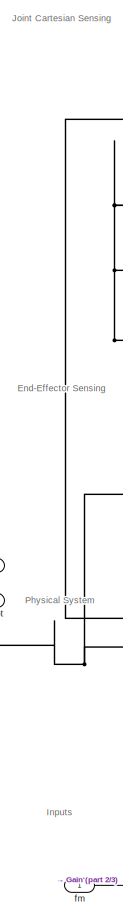
[diagram: Space Manipulator4 - part 1/3, left side, full height]
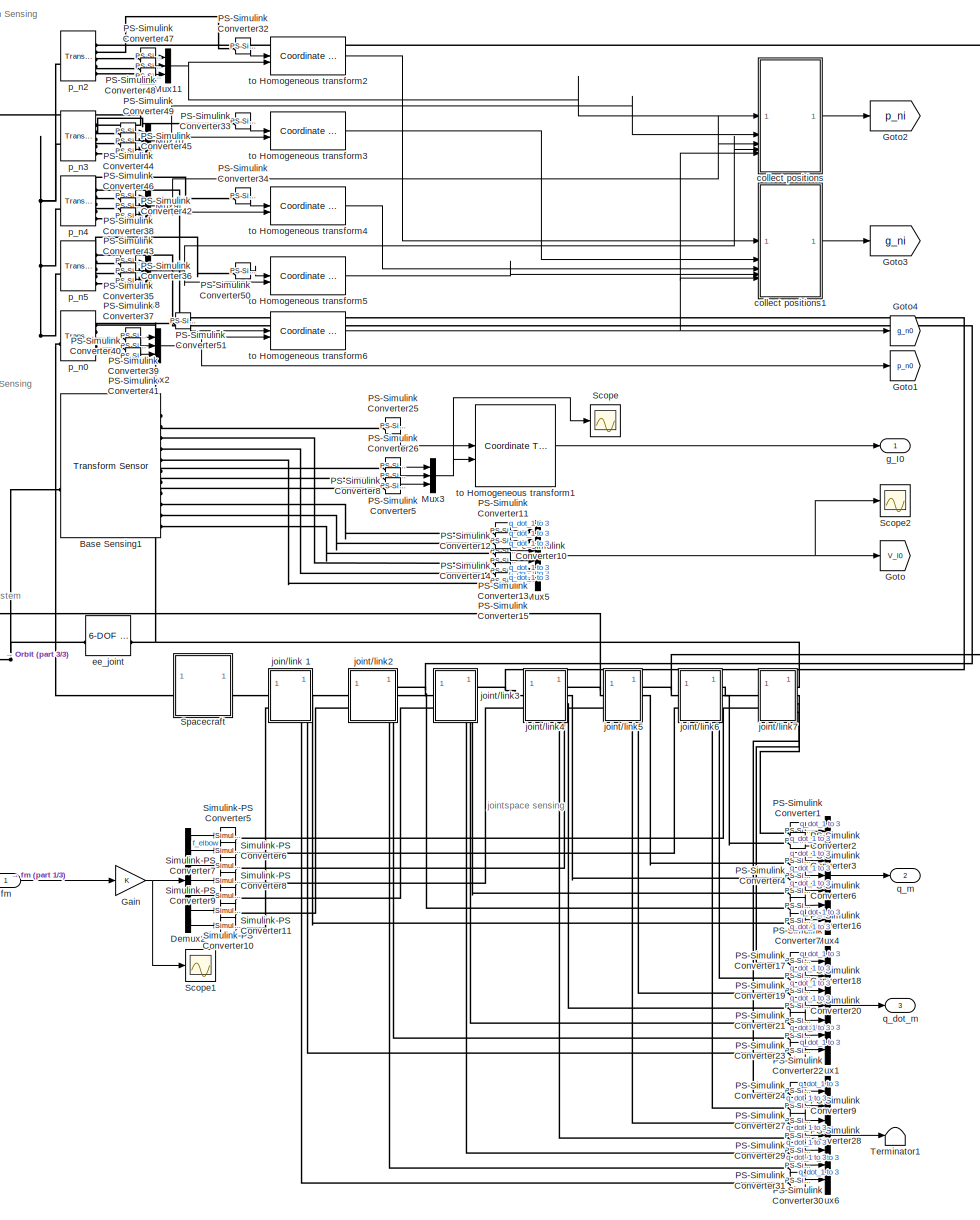
[diagram: Space Manipulator4 - part 2/3, center side, full height]
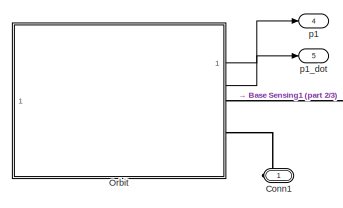
[diagram: Space Manipulator4 - part 3/3, middle left region]
BLOCK [SubSystem] Space Manipulator4
BLOCK [Reference] Space Manipulator4/Base Sensing1  REF=sm_lib/Frames and
Transforms/Transform
Sensor
  SourceBlock = sm_lib/Frames and\nTransforms/Transform\nSensor
  SourceType = Transform\nSensor
BLOCK [PMIOPort] Space Manipulator4/Conn1
  NameLocation = top
  Side = Right
BLOCK [Demux] Space Manipulator4/Demux2
  Outputs = 7
BLOCK [Gain] Space Manipulator4/Gain
BLOCK [Goto] Space Manipulator4/Goto
  GotoTag = V_I0
  TagVisibility = global
BLOCK [Goto] Space Manipulator4/Goto1
  GotoTag = p_n0
  TagVisibility = global
BLOCK [Goto] Space Manipulator4/Goto2
  GotoTag = p_ni
  TagVisibility = global
BLOCK [Goto] Space Manipulator4/Goto3
  GotoTag = g_ni
  TagVisibility = global
BLOCK [Goto] Space Manipulator4/Goto4
  GotoTag = g_n0
  TagVisibility = global
BLOCK [Mux] Space Manipulator4/Mux1
  DisplayOption = bar
  Inputs = 7
BLOCK [Mux] Space Manipulator4/Mux10
  DisplayOption = bar
  Inputs = 3
BLOCK [Mux] Space Manipulator4/Mux11
  DisplayOption = bar
  Inputs = 3
BLOCK [Mux] Space Manipulator4/Mux2
  DisplayOption = bar
  Inputs = 3
BLOCK [Mux] Space Manipulator4/Mux3
  DisplayOption = bar
  Inputs = 3
BLOCK [Mux] Space Manipulator4/Mux4
  DisplayOption = bar
  Inputs = 7
BLOCK [Mux] Space Manipulator4/Mux5
  DisplayOption = bar
  Inputs = 6
BLOCK [Mux] Space Manipulator4/Mux6
  DisplayOption = bar
  Inputs = 7
BLOCK [Mux] Space Manipulator4/Mux8
  DisplayOption = bar
  Inputs = 3
BLOCK [Mux] Space Manipulator4/Mux9
  DisplayOption = bar
  Inputs = 3
BLOCK [SubSystem] Space Manipulator4/Orbit
BLOCK [Clock] Space Manipulator4/Orbit/Clock
BLOCK [Clock] Space Manipulator4/Orbit/Clock2
  Commented = on
BLOCK [PMIOPort] Space Manipulator4/Orbit/Conn1
  Side = Right
BLOCK [PMIOPort] Space Manipulator4/Orbit/Conn2
  NameLocation = top
  Port = 2
  Side = Right
BLOCK [Constant] Space Manipulator4/Orbit/Constant
  Value = Mean_Anomaly0
BLOCK [Constant] Space Manipulator4/Orbit/Constant1
  Value = e_orbit
BLOCK [Constant] Space Manipulator4/Orbit/Constant10
  Commented = on
  Value = e_orbit
BLOCK [Constant] Space Manipulator4/Orbit/Constant11
  Commented = on
  Value = n_orbit
BLOCK [Constant] Space Manipulator4/Orbit/Constant12
  Commented = on
  Value = mu_earth
BLOCK [Constant] Space Manipulator4/Orbit/Constant13
  Commented = on
  Value = mu_orbit
BLOCK [Constant] Space Manipulator4/Orbit/Constant14
  Commented = on
  Value = theta0
BLOCK [Constant] Space Manipulator4/Orbit/Constant15
  Commented = on
  Value = Mean_Anomaly0_t
BLOCK [Constant] Space Manipulator4/Orbit/Constant16
  Commented = on
  Value = e_orbit_t
BLOCK [Constant] Space Manipulator4/Orbit/Constant17
  Commented = on
  Value = n_orbit_t
BLOCK [Constant] Space Manipulator4/Orbit/Constant19
  Commented = on
  Value = mu_orbit_t
BLOCK [Constant] Space Manipulator4/Orbit/Constant2
  Value = n_orbit
BLOCK [Constant] Space Manipulator4/Orbit/Constant20
  Commented = on
  Value = theta0_t
BLOCK [Constant] Space Manipulator4/Orbit/Constant3
  Value = mu_earth
BLOCK [Constant] Space Manipulator4/Orbit/Constant4
  Value = mu_orbit
BLOCK [Constant] Space Manipulator4/Orbit/Constant5
  Value = theta0
BLOCK [Constant] Space Manipulator4/Orbit/Constant7
  Value = 0
BLOCK [Constant] Space Manipulator4/Orbit/Constant8
  Commented = on
  Value = n_orbit_t-n_orbit
BLOCK [Constant] Space Manipulator4/Orbit/Constant9
  Commented = on
  Value = Mean_Anomaly0
BLOCK [Demux] Space Manipulator4/Orbit/Demux1
  Outputs = 3
BLOCK [Demux] Space Manipulator4/Orbit/Demux2
  Outputs = 3
BLOCK [Demux] Space Manipulator4/Orbit/Demux3
  Commented = on
  Outputs = 3
BLOCK [Goto] Space Manipulator4/Orbit/Goto
  GotoTag = theta
  TagVisibility = global
BLOCK [Reference] Space Manipulator4/Orbit/MechanismConfiguration1  REF=sm_lib/Utilities/Mechanism
Configuration
  SourceBlock = sm_lib/Utilities/Mechanism\nConfiguration
  SourceType = Mechanism\nConfiguration
BLOCK [SubSystem] Space Manipulator4/Orbit/Orbit Pose
  ErrorFcn = Stateflow.Translate.translate
  PermitHierarchicalResolution = ExplicitOnly
  SFBlockType = MATLAB Function
  TreatAsAtomicUnit = on
BLOCK [Demux] Space Manipulator4/Orbit/Orbit Pose/ Demux 
  Outputs = 1
BLOCK [S-Function] Space Manipulator4/Orbit/Orbit Pose/ SFunction 
  EnableBusSupport = on
  FunctionName = sf_sfun
  PortCounts = [7 5]
  SFcnIsStateOwnerBlock = off
  SFunctionDeploymentMode = off
  Tag = Stateflow S-Function 43
BLOCK [Terminator] Space Manipulator4/Orbit/Orbit Pose/ Terminator 
BLOCK [Inport] Space Manipulator4/Orbit/Orbit Pose/Mean_Anomaly0
  Port = 7
BLOCK [Outport] Space Manipulator4/Orbit/Orbit Pose/R_orbit
BLOCK [Outport] Space Manipulator4/Orbit/Orbit Pose/V_orbit_I
  Port = 3
BLOCK [Inport] Space Manipulator4/Orbit/Orbit Pose/e_orbit
  Port = 4
BLOCK [Inport] Space Manipulator4/Orbit/Orbit Pose/mu_earth
  Port = 3
BLOCK [Inport] Space Manipulator4/Orbit/Orbit Pose/mu_orbit
  Port = 2
BLOCK [Inport] Space Manipulator4/Orbit/Orbit Pose/n_orbit
  Port = 5
BLOCK [Outport] Space Manipulator4/Orbit/Orbit Pose/p_orbit
  Port = 2
BLOCK [Inport] Space Manipulator4/Orbit/Orbit Pose/t
BLOCK [Inport] Space Manipulator4/Orbit/Orbit Pose/theta0
  Port = 6
BLOCK [Outport] Space Manipulator4/Orbit/Orbit Pose/theta_z
  Port = 4
BLOCK [SubSystem] Space Manipulator4/Orbit/Orbit Pose1
  Commented = on
  ErrorFcn = Stateflow.Translate.translate
  PermitHierarchicalResolution = ExplicitOnly
  SFBlockType = MATLAB Function
  TreatAsAtomicUnit = on
BLOCK [Demux] Space Manipulator4/Orbit/Orbit Pose1/ Demux 
  Outputs = 1
BLOCK [S-Function] Space Manipulator4/Orbit/Orbit Pose1/ SFunction 
  EnableBusSupport = on
  FunctionName = sf_sfun
  PortCounts = [12 5]
  SFcnIsStateOwnerBlock = off
  SFunctionDeploymentMode = off
  Tag = Stateflow S-Function 44
BLOCK [Terminator] Space Manipulator4/Orbit/Orbit Pose1/ Terminator 
BLOCK [Inport] Space Manipulator4/Orbit/Orbit Pose1/Mean_Anomaly0
  Port = 7
BLOCK [Inport] Space Manipulator4/Orbit/Orbit Pose1/Mean_Anomaly0_t
  Port = 12
BLOCK [Outport] Space Manipulator4/Orbit/Orbit Pose1/R_orbit
BLOCK [Inport] Space Manipulator4/Orbit/Orbit Pose1/e_orbit
  Port = 4
BLOCK [Inport] Space Manipulator4/Orbit/Orbit Pose1/e_orbit_t
  Port = 9
BLOCK [Inport] Space Manipulator4/Orbit/Orbit Pose1/mu_earth
  Port = 3
BLOCK [Inport] Space Manipulator4/Orbit/Orbit Pose1/mu_orbit
  Port = 2
BLOCK [Inport] Space Manipulator4/Orbit/Orbit Pose1/mu_orbit_t
  Port = 8
BLOCK [Inport] Space Manipulator4/Orbit/Orbit Pose1/n
  Port = 5
BLOCK [Inport] Space Manipulator4/Orbit/Orbit Pose1/n_t
  Port = 10
BLOCK [Outport] Space Manipulator4/Orbit/Orbit Pose1/p_orbit
  Port = 2
BLOCK [Inport] Space Manipulator4/Orbit/Orbit Pose1/t
BLOCK [Inport] Space Manipulator4/Orbit/Orbit Pose1/theta0
  Port = 6
BLOCK [Inport] Space Manipulator4/Orbit/Orbit Pose1/theta0_t
  Port = 11
BLOCK [Outport] Space Manipulator4/Orbit/Orbit Pose1/theta_z
  Port = 3
BLOCK [Outport] Space Manipulator4/Orbit/Orbit Pose1/w_z
  Port = 4
BLOCK [Reference] Space Manipulator4/Orbit/Planar Joint  REF=sm_lib/Joints/Planar Joint
  SourceBlock = sm_lib/Joints/Planar Joint
  SourceType = Planar Joint
BLOCK [Scope] Space Manipulator4/Orbit/Scope1
  Floating = off
  NumInputPorts = 1
  ScopeSpecificationString = Simulink.scopes.TimeScopeBlockCfg('CurrentConfiguration', extmgr.ConfigurationSet(extmgr.Configuration('Core','General UI',true),extmgr.Configuration('Core','Source UI',true),extmgr.Configuration('Sources','WiredSimulink',true,'DataLoggingVariableName','ScopeData1'),extmgr.Configuration('Visuals','Time Domain',true,'SerializedDisplays',{struct('MinYLimReal','-1816.68917','MaxYLimReal','201.85435',...<+1686ch>
BLOCK [Scope] Space Manipulator4/Orbit/Scope2
  Floating = off
  NumInputPorts = 1
  ScopeSpecificationString = Simulink.scopes.TimeScopeBlockCfg('CurrentConfiguration', extmgr.ConfigurationSet(extmgr.Configuration('Core','General UI',true),extmgr.Configuration('Core','Source UI',true),extmgr.Configuration('Sources','WiredSimulink',true,'DataLoggingVariableName','ScopeData2'),extmgr.Configuration('Visuals','Time Domain',true,'SerializedDisplays',{struct('MinYLimReal','-1816.68917','MaxYLimReal','201.85435',...<+1686ch>
BLOCK [Scope] Space Manipulator4/Orbit/Scope3
  Floating = off
  NumInputPorts = 1
  ScopeSpecificationString = Simulink.scopes.TimeScopeBlockCfg('CurrentConfiguration', extmgr.ConfigurationSet(extmgr.Configuration('Core','General UI',true),extmgr.Configuration('Core','Source UI',true),extmgr.Configuration('Sources','WiredSimulink',true,'DataLoggingVariableName','ScopeData3'),extmgr.Configuration('Visuals','Time Domain',true,'SerializedDisplays',{struct('MinYLimReal','-1816.68917','MaxYLimReal','201.85435',...<+1651ch>
BLOCK [Scope] Space Manipulator4/Orbit/Scope4
  Commented = on
  Floating = off
  NumInputPorts = 1
  ScopeSpecificationString = Simulink.scopes.TimeScopeBlockCfg('CurrentConfiguration', extmgr.ConfigurationSet(extmgr.Configuration('Core','General UI',true),extmgr.Configuration('Core','Source UI',true),extmgr.Configuration('Sources','WiredSimulink',true,'DataLoggingVariableName','ScopeData5'),extmgr.Configuration('Visuals','Time Domain',true,'SerializedDisplays',{struct('MinYLimReal','-1792753.5855','MaxYLimReal','16134782....<+1649ch>
BLOCK [Reference] Space Manipulator4/Orbit/Simulink-PS Converter1  REF=nesl_utility/Simulink-PS
Converter
  SourceBlock = nesl_utility/Simulink-PS\nConverter
  SourceType = Simulink-PS\nConverter
BLOCK [Reference] Space Manipulator4/Orbit/Simulink-PS Converter12  REF=nesl_utility/Simulink-PS
Converter
  SourceBlock = nesl_utility/Simulink-PS\nConverter
  SourceType = Simulink-PS\nConverter
BLOCK [Reference] Space Manipulator4/Orbit/Simulink-PS Converter2  REF=nesl_utility/Simulink-PS
Converter
  SourceBlock = nesl_utility/Simulink-PS\nConverter
  SourceType = Simulink-PS\nConverter
BLOCK [Reference] Space Manipulator4/Orbit/Simulink-PS Converter3  REF=nesl_utility/Simulink-PS
Converter
  Commented = on
  SourceBlock = nesl_utility/Simulink-PS\nConverter
  SourceType = Simulink-PS\nConverter
BLOCK [Reference] Space Manipulator4/Orbit/Solver Configuration1  REF=nesl_utility/Solver
Configuration
  SourceBlock = nesl_utility/Solver\nConfiguration
  SourceType = Solver\nConfiguration
BLOCK [Terminator] Space Manipulator4/Orbit/Terminator1
BLOCK [Terminator] Space Manipulator4/Orbit/Terminator2
BLOCK [Terminator] Space Manipulator4/Orbit/Terminator6
  Commented = on
BLOCK [Outport] Space Manipulator4/Orbit/V_orbit_I
  Port = 2
BLOCK [Reference] Space Manipulator4/Orbit/World1  REF=sm_lib/Frames and
Transforms/World Frame
  SourceBlock = sm_lib/Frames and\nTransforms/World Frame
  SourceType = World Frame
BLOCK [Gain] Space Manipulator4/Orbit/p
BLOCK [Outport] Space Manipulator4/Orbit/p1
BLOCK [Reference] Space Manipulator4/PS-Simulink Converter1  REF=nesl_utility/PS-Simulink
Converter
  SourceBlock = nesl_utility/PS-Simulink\nConverter
  SourceType = PS-Simulink\nConverter
BLOCK [Reference] Space Manipulator4/PS-Simulink Converter10  REF=nesl_utility/PS-Simulink
Converter
  SourceBlock = nesl_utility/PS-Simulink\nConverter
  SourceType = PS-Simulink\nConverter
BLOCK [Reference] Space Manipulator4/PS-Simulink Converter11  REF=nesl_utility/PS-Simulink
Converter
  SourceBlock = nesl_utility/PS-Simulink\nConverter
  SourceType = PS-Simulink\nConverter
BLOCK [Reference] Space Manipulator4/PS-Simulink Converter12  REF=nesl_utility/PS-Simulink
Converter
  SourceBlock = nesl_utility/PS-Simulink\nConverter
  SourceType = PS-Simulink\nConverter
BLOCK [Reference] Space Manipulator4/PS-Simulink Converter13  REF=nesl_utility/PS-Simulink
Converter
  SourceBlock = nesl_utility/PS-Simulink\nConverter
  SourceType = PS-Simulink\nConverter
BLOCK [Reference] Space Manipulator4/PS-Simulink Converter14  REF=nesl_utility/PS-Simulink
Converter
  SourceBlock = nesl_utility/PS-Simulink\nConverter
  SourceType = PS-Simulink\nConverter
BLOCK [Reference] Space Manipulator4/PS-Simulink Converter15  REF=nesl_utility/PS-Simulink
Converter
  SourceBlock = nesl_utility/PS-Simulink\nConverter
  SourceType = PS-Simulink\nConverter
BLOCK [Reference] Space Manipulator4/PS-Simulink Converter16  REF=nesl_utility/PS-Simulink
Converter
  SourceBlock = nesl_utility/PS-Simulink\nConverter
  SourceType = PS-Simulink\nConverter
BLOCK [Reference] Space Manipulator4/PS-Simulink Converter17  REF=nesl_utility/PS-Simulink
Converter
  SourceBlock = nesl_utility/PS-Simulink\nConverter
  SourceType = PS-Simulink\nConverter
BLOCK [Reference] Space Manipulator4/PS-Simulink Converter18  REF=nesl_utility/PS-Simulink
Converter
  SourceBlock = nesl_utility/PS-Simulink\nConverter
  SourceType = PS-Simulink\nConverter
BLOCK [Reference] Space Manipulator4/PS-Simulink Converter19  REF=nesl_utility/PS-Simulink
Converter
  SourceBlock = nesl_utility/PS-Simulink\nConverter
  SourceType = PS-Simulink\nConverter
BLOCK [Reference] Space Manipulator4/PS-Simulink Converter2  REF=nesl_utility/PS-Simulink
Converter
  SourceBlock = nesl_utility/PS-Simulink\nConverter
  SourceType = PS-Simulink\nConverter
BLOCK [Reference] Space Manipulator4/PS-Simulink Converter20  REF=nesl_utility/PS-Simulink
Converter
  SourceBlock = nesl_utility/PS-Simulink\nConverter
  SourceType = PS-Simulink\nConverter
BLOCK [Reference] Space Manipulator4/PS-Simulink Converter21  REF=nesl_utility/PS-Simulink
Converter
  SourceBlock = nesl_utility/PS-Simulink\nConverter
  SourceType = PS-Simulink\nConverter
BLOCK [Reference] Space Manipulator4/PS-Simulink Converter22  REF=nesl_utility/PS-Simulink
Converter
  SourceBlock = nesl_utility/PS-Simulink\nConverter
  SourceType = PS-Simulink\nConverter
BLOCK [Reference] Space Manipulator4/PS-Simulink Converter23  REF=nesl_utility/PS-Simulink
Converter
  SourceBlock = nesl_utility/PS-Simulink\nConverter
  SourceType = PS-Simulink\nConverter
BLOCK [Reference] Space Manipulator4/PS-Simulink Converter24  REF=nesl_utility/PS-Simulink
Converter
  SourceBlock = nesl_utility/PS-Simulink\nConverter
  SourceType = PS-Simulink\nConverter
BLOCK [Reference] Space Manipulator4/PS-Simulink Converter25  REF=nesl_utility/PS-Simulink
Converter
  SourceBlock = nesl_utility/PS-Simulink\nConverter
  SourceType = PS-Simulink\nConverter
BLOCK [Reference] Space Manipulator4/PS-Simulink Converter26  REF=nesl_utility/PS-Simulink
Converter
  SourceBlock = nesl_utility/PS-Simulink\nConverter
  SourceType = PS-Simulink\nConverter
BLOCK [Reference] Space Manipulator4/PS-Simulink Converter27  REF=nesl_utility/PS-Simulink
Converter
  SourceBlock = nesl_utility/PS-Simulink\nConverter
  SourceType = PS-Simulink\nConverter
BLOCK [Reference] Space Manipulator4/PS-Simulink Converter28  REF=nesl_utility/PS-Simulink
Converter
  SourceBlock = nesl_utility/PS-Simulink\nConverter
  SourceType = PS-Simulink\nConverter
BLOCK [Reference] Space Manipulator4/PS-Simulink Converter29  REF=nesl_utility/PS-Simulink
Converter
  SourceBlock = nesl_utility/PS-Simulink\nConverter
  SourceType = PS-Simulink\nConverter
BLOCK [Reference] Space Manipulator4/PS-Simulink Converter3  REF=nesl_utility/PS-Simulink
Converter
  SourceBlock = nesl_utility/PS-Simulink\nConverter
  SourceType = PS-Simulink\nConverter
BLOCK [Reference] Space Manipulator4/PS-Simulink Converter30  REF=nesl_utility/PS-Simulink
Converter
  SourceBlock = nesl_utility/PS-Simulink\nConverter
  SourceType = PS-Simulink\nConverter
BLOCK [Reference] Space Manipulator4/PS-Simulink Converter31  REF=nesl_utility/PS-Simulink
Converter
  SourceBlock = nesl_utility/PS-Simulink\nConverter
  SourceType = PS-Simulink\nConverter
BLOCK [Reference] Space Manipulator4/PS-Simulink Converter32  REF=nesl_utility/PS-Simulink
Converter
  SourceBlock = nesl_utility/PS-Simulink\nConverter
  SourceType = PS-Simulink\nConverter
BLOCK [Reference] Space Manipulator4/PS-Simulink Converter33  REF=nesl_utility/PS-Simulink
Converter
  SourceBlock = nesl_utility/PS-Simulink\nConverter
  SourceType = PS-Simulink\nConverter
BLOCK [Reference] Space Manipulator4/PS-Simulink Converter34  REF=nesl_utility/PS-Simulink
Converter
  SourceBlock = nesl_utility/PS-Simulink\nConverter
  SourceType = PS-Simulink\nConverter
BLOCK [Reference] Space Manipulator4/PS-Simulink Converter35  REF=nesl_utility/PS-Simulink
Converter
  SourceBlock = nesl_utility/PS-Simulink\nConverter
  SourceType = PS-Simulink\nConverter
BLOCK [Reference] Space Manipulator4/PS-Simulink Converter36  REF=nesl_utility/PS-Simulink
Converter
  SourceBlock = nesl_utility/PS-Simulink\nConverter
  SourceType = PS-Simulink\nConverter
BLOCK [Reference] Space Manipulator4/PS-Simulink Converter37  REF=nesl_utility/PS-Simulink
Converter
  SourceBlock = nesl_utility/PS-Simulink\nConverter
  SourceType = PS-Simulink\nConverter
BLOCK [Reference] Space Manipulator4/PS-Simulink Converter38  REF=nesl_utility/PS-Simulink
Converter
  SourceBlock = nesl_utility/PS-Simulink\nConverter
  SourceType = PS-Simulink\nConverter
BLOCK [Reference] Space Manipulator4/PS-Simulink Converter39  REF=nesl_utility/PS-Simulink
Converter
  SourceBlock = nesl_utility/PS-Simulink\nConverter
  SourceType = PS-Simulink\nConverter
BLOCK [Reference] Space Manipulator4/PS-Simulink Converter4  REF=nesl_utility/PS-Simulink
Converter
  SourceBlock = nesl_utility/PS-Simulink\nConverter
  SourceType = PS-Simulink\nConverter
BLOCK [Reference] Space Manipulator4/PS-Simulink Converter40  REF=nesl_utility/PS-Simulink
Converter
  SourceBlock = nesl_utility/PS-Simulink\nConverter
  SourceType = PS-Simulink\nConverter
BLOCK [Reference] Space Manipulator4/PS-Simulink Converter41  REF=nesl_utility/PS-Simulink
Converter
  SourceBlock = nesl_utility/PS-Simulink\nConverter
  SourceType = PS-Simulink\nConverter
BLOCK [Reference] Space Manipulator4/PS-Simulink Converter42  REF=nesl_utility/PS-Simulink
Converter
  SourceBlock = nesl_utility/PS-Simulink\nConverter
  SourceType = PS-Simulink\nConverter
BLOCK [Reference] Space Manipulator4/PS-Simulink Converter43  REF=nesl_utility/PS-Simulink
Converter
  SourceBlock = nesl_utility/PS-Simulink\nConverter
  SourceType = PS-Simulink\nConverter
BLOCK [Reference] Space Manipulator4/PS-Simulink Converter44  REF=nesl_utility/PS-Simulink
Converter
  SourceBlock = nesl_utility/PS-Simulink\nConverter
  SourceType = PS-Simulink\nConverter
BLOCK [Reference] Space Manipulator4/PS-Simulink Converter45  REF=nesl_utility/PS-Simulink
Converter
  SourceBlock = nesl_utility/PS-Simulink\nConverter
  SourceType = PS-Simulink\nConverter
BLOCK [Reference] Space Manipulator4/PS-Simulink Converter46  REF=nesl_utility/PS-Simulink
Converter
  SourceBlock = nesl_utility/PS-Simulink\nConverter
  SourceType = PS-Simulink\nConverter
BLOCK [Reference] Space Manipulator4/PS-Simulink Converter47  REF=nesl_utility/PS-Simulink
Converter
  SourceBlock = nesl_utility/PS-Simulink\nConverter
  SourceType = PS-Simulink\nConverter
BLOCK [Reference] Space Manipulator4/PS-Simulink Converter48  REF=nesl_utility/PS-Simulink
Converter
  SourceBlock = nesl_utility/PS-Simulink\nConverter
  SourceType = PS-Simulink\nConverter
BLOCK [Reference] Space Manipulator4/PS-Simulink Converter49  REF=nesl_utility/PS-Simulink
Converter
  SourceBlock = nesl_utility/PS-Simulink\nConverter
  SourceType = PS-Simulink\nConverter
BLOCK [Reference] Space Manipulator4/PS-Simulink Converter5  REF=nesl_utility/PS-Simulink
Converter
  SourceBlock = nesl_utility/PS-Simulink\nConverter
  SourceType = PS-Simulink\nConverter
BLOCK [Reference] Space Manipulator4/PS-Simulink Converter50  REF=nesl_utility/PS-Simulink
Converter
  SourceBlock = nesl_utility/PS-Simulink\nConverter
  SourceType = PS-Simulink\nConverter
BLOCK [Reference] Space Manipulator4/PS-Simulink Converter51  REF=nesl_utility/PS-Simulink
Converter
  SourceBlock = nesl_utility/PS-Simulink\nConverter
  SourceType = PS-Simulink\nConverter
BLOCK [Reference] Space Manipulator4/PS-Simulink Converter6  REF=nesl_utility/PS-Simulink
Converter
  SourceBlock = nesl_utility/PS-Simulink\nConverter
  SourceType = PS-Simulink\nConverter
BLOCK [Reference] Space Manipulator4/PS-Simulink Converter7  REF=nesl_utility/PS-Simulink
Converter
  SourceBlock = nesl_utility/PS-Simulink\nConverter
  SourceType = PS-Simulink\nConverter
BLOCK [Reference] Space Manipulator4/PS-Simulink Converter8  REF=nesl_utility/PS-Simulink
Converter
  SourceBlock = nesl_utility/PS-Simulink\nConverter
  SourceType = PS-Simulink\nConverter
BLOCK [Reference] Space Manipulator4/PS-Simulink Converter9  REF=nesl_utility/PS-Simulink
Converter
  SourceBlock = nesl_utility/PS-Simulink\nConverter
  SourceType = PS-Simulink\nConverter
BLOCK [Scope] Space Manipulator4/Scope
  Floating = off
  NumInputPorts = 1
  ScopeSpecificationString = Simulink.scopes.TimeScopeBlockCfg('CurrentConfiguration', extmgr.ConfigurationSet(extmgr.Configuration('Core','General UI',true),extmgr.Configuration('Core','Source UI',true),extmgr.Configuration('Sources','WiredSimulink',true,'DataLoggingVariableName','ScopeData1'),extmgr.Configuration('Visuals','Time Domain',true,'SerializedDisplays',{struct('MinYLimReal','-0.12652','MaxYLimReal','0.04933','YLab...<+1841ch>
BLOCK [Scope] Space Manipulator4/Scope1
  Floating = off
  NumInputPorts = 1
  ScopeSpecificationString = Simulink.scopes.TimeScopeBlockCfg('CurrentConfiguration', extmgr.ConfigurationSet(extmgr.Configuration('Core','General UI',true),extmgr.Configuration('Core','Source UI',true),extmgr.Configuration('Sources','WiredSimulink',true,'DataLoggingVariableName','ScopeData1'),extmgr.Configuration('Visuals','Time Domain',true,'SerializedDisplays',{struct('MinYLimReal','-14.80411','MaxYLimReal','12.22163','YL...<+1755ch>
BLOCK [Scope] Space Manipulator4/Scope2
  Floating = off
  NumInputPorts = 1
  ScopeSpecificationString = Simulink.scopes.TimeScopeBlockCfg('CurrentConfiguration', extmgr.ConfigurationSet(extmgr.Configuration('Core','General UI',true),extmgr.Configuration('Core','Source UI',true),extmgr.Configuration('Sources','WiredSimulink',true,'DataLoggingVariableName','ScopeData2'),extmgr.Configuration('Visuals','Time Domain',true,'SerializedDisplays',{struct('MinYLimReal','-0.03616','MaxYLimReal','0.02513','YLab...<+1860ch>
BLOCK [Reference] Space Manipulator4/Simulink-PS Converter10  REF=nesl_utility/Simulink-PS
Converter
  SourceBlock = nesl_utility/Simulink-PS\nConverter
  SourceType = Simulink-PS\nConverter
BLOCK [Reference] Space Manipulator4/Simulink-PS Converter11  REF=nesl_utility/Simulink-PS
Converter
  SourceBlock = nesl_utility/Simulink-PS\nConverter
  SourceType = Simulink-PS\nConverter
BLOCK [Reference] Space Manipulator4/Simulink-PS Converter5  REF=nesl_utility/Simulink-PS
Converter
  SourceBlock = nesl_utility/Simulink-PS\nConverter
  SourceType = Simulink-PS\nConverter
BLOCK [Reference] Space Manipulator4/Simulink-PS Converter6  REF=nesl_utility/Simulink-PS
Converter
  SourceBlock = nesl_utility/Simulink-PS\nConverter
  SourceType = Simulink-PS\nConverter
BLOCK [Reference] Space Manipulator4/Simulink-PS Converter7  REF=nesl_utility/Simulink-PS
Converter
  SourceBlock = nesl_utility/Simulink-PS\nConverter
  SourceType = Simulink-PS\nConverter
BLOCK [Reference] Space Manipulator4/Simulink-PS Converter8  REF=nesl_utility/Simulink-PS
Converter
  SourceBlock = nesl_utility/Simulink-PS\nConverter
  SourceType = Simulink-PS\nConverter
BLOCK [Reference] Space Manipulator4/Simulink-PS Converter9  REF=nesl_utility/Simulink-PS
Converter
  SourceBlock = nesl_utility/Simulink-PS\nConverter
  SourceType = Simulink-PS\nConverter
BLOCK [SubSystem] Space Manipulator4/Spacecraft
BLOCK [Reference] Space Manipulator4/Spacecraft/Band-Limited White Noise  REF=simulink/Sources/Band-Limited
White Noise
  Commented = on
  SourceBlock = simulink/Sources/Band-Limited\nWhite Noise
  SourceType = Band-Limited White Noise.
BLOCK [Reference] Space Manipulator4/Spacecraft/Band-Limited White Noise1  REF=simulink/Sources/Band-Limited
White Noise
  Commented = on
  SourceBlock = simulink/Sources/Band-Limited\nWhite Noise
  SourceType = Band-Limited White Noise.
BLOCK [Reference] Space Manipulator4/Spacecraft/Band-Limited White Noise2  REF=simulink/Sources/Band-Limited
White Noise
  Commented = on
  SourceBlock = simulink/Sources/Band-Limited\nWhite Noise
  SourceType = Band-Limited White Noise.
BLOCK [Reference] Space Manipulator4/Spacecraft/Band-Limited White Noise3  REF=simulink/Sources/Band-Limited
White Noise
  Commented = on
  SourceBlock = simulink/Sources/Band-Limited\nWhite Noise
  SourceType = Band-Limited White Noise.
BLOCK [Reference] Space Manipulator4/Spacecraft/Band-Limited White Noise4  REF=simulink/Sources/Band-Limited
White Noise
  Commented = on
  SourceBlock = simulink/Sources/Band-Limited\nWhite Noise
  SourceType = Band-Limited White Noise.
BLOCK [Reference] Space Manipulator4/Spacecraft/Band-Limited White Noise5  REF=simulink/Sources/Band-Limited
White Noise
  Commented = on
  SourceBlock = simulink/Sources/Band-Limited\nWhite Noise
  SourceType = Band-Limited White Noise.
BLOCK [Reference] Space Manipulator4/Spacecraft/Base1  REF=sm_lib/Body Elements/Brick Solid
  SourceBlock = sm_lib/Body Elements/Brick Solid
  SourceType = Brick Solid
BLOCK [Reference] Space Manipulator4/Spacecraft/Base2  REF=sm_lib/Body Elements/Brick Solid
  Commented = on
  SourceBlock = sm_lib/Body Elements/Brick Solid
  SourceType = Brick Solid
BLOCK [Reference] Space Manipulator4/Spacecraft/Cylindrical Solid  REF=sm_lib/Body Elements/Cylindrical Solid
  NameLocation = right
  SourceBlock = sm_lib/Body Elements/Cylindrical Solid
  SourceType = Cylindrical Solid
BLOCK [Reference] Space Manipulator4/Spacecraft/External Force and Torque  REF=sm_lib/Forces and
Torques/External Force
and Torque
  Commented = on
  SourceBlock = sm_lib/Forces and\nTorques/External Force\nand Torque
  SourceType = External Force\nand Torque
BLOCK [PMIOPort] Space Manipulator4/Spacecraft/F
  Side = Left
BLOCK [PMIOPort] Space Manipulator4/Spacecraft/F1
  Port = 2
  Side = Right
BLOCK [Reference] Space Manipulator4/Spacecraft/Inertia  REF=sm_lib/Body Elements/Inertia
  NameLocation = top
  SourceBlock = sm_lib/Body Elements/Inertia
  SourceType = Inertia
BLOCK [Scope] Space Manipulator4/Spacecraft/Scope
  Commented = on
  Floating = off
  NumInputPorts = 1
  ScopeSpecificationString = Simulink.scopes.TimeScopeBlockCfg('CurrentConfiguration', extmgr.ConfigurationSet(extmgr.Configuration('Core','General UI',true),extmgr.Configuration('Core','Source UI',true),extmgr.Configuration('Sources','WiredSimulink',true,'DataLoggingVariableName','ScopeData1'),extmgr.Configuration('Visuals','Time Domain',true,'SerializedDisplays',{struct('MinYLimReal','-0.0411','MaxYLimReal','0.04205','YLabe...<+1471ch>
BLOCK [Reference] Space Manipulator4/Spacecraft/Simulink-PS Converter1  REF=nesl_utility/Simulink-PS
Converter
  Commented = on
  SourceBlock = nesl_utility/Simulink-PS\nConverter
  SourceType = Simulink-PS\nConverter
BLOCK [Reference] Space Manipulator4/Spacecraft/Simulink-PS Converter2  REF=nesl_utility/Simulink-PS
Converter
  Commented = on
  SourceBlock = nesl_utility/Simulink-PS\nConverter
  SourceType = Simulink-PS\nConverter
BLOCK [Reference] Space Manipulator4/Spacecraft/Simulink-PS Converter3  REF=nesl_utility/Simulink-PS
Converter
  Commented = on
  SourceBlock = nesl_utility/Simulink-PS\nConverter
  SourceType = Simulink-PS\nConverter
BLOCK [Reference] Space Manipulator4/Spacecraft/Simulink-PS Converter4  REF=nesl_utility/Simulink-PS
Converter
  Commented = on
  SourceBlock = nesl_utility/Simulink-PS\nConverter
  SourceType = Simulink-PS\nConverter
BLOCK [Reference] Space Manipulator4/Spacecraft/Simulink-PS Converter5  REF=nesl_utility/Simulink-PS
Converter
  Commented = on
  SourceBlock = nesl_utility/Simulink-PS\nConverter
  SourceType = Simulink-PS\nConverter
BLOCK [Reference] Space Manipulator4/Spacecraft/Simulink-PS Converter6  REF=nesl_utility/Simulink-PS
Converter
  Commented = on
  SourceBlock = nesl_utility/Simulink-PS\nConverter
  SourceType = Simulink-PS\nConverter
BLOCK [Reference] Space Manipulator4/Spacecraft/Visual  REF=sm_lib/Body Elements/File Solid
  Commented = on
  SourceBlock = sm_lib/Body Elements/File Solid
  SourceType = File Solid
BLOCK [Reference] Space Manipulator4/Spacecraft/VisualOriginTransform  REF=sm_lib/Frames and
Transforms/Rigid
Transform
  SourceBlock = sm_lib/Frames and\nTransforms/Rigid\nTransform
  SourceType = Rigid\nTransform
BLOCK [Reference] Space Manipulator4/Spacecraft/iiwa_joint_2_OriginTransform  REF=sm_lib/Frames and
Transforms/Rigid
Transform
  NameLocation = top
  SourceBlock = sm_lib/Frames and\nTransforms/Rigid\nTransform
  SourceType = Rigid\nTransform
BLOCK [Terminator] Space Manipulator4/Terminator1
BLOCK [SubSystem] Space Manipulator4/collect positions
  ErrorFcn = Stateflow.Translate.translate
  PermitHierarchicalResolution = ExplicitOnly
  SFBlockType = MATLAB Function
  TreatAsAtomicUnit = on
BLOCK [Demux] Space Manipulator4/collect positions/ Demux 
  Outputs = 1
BLOCK [S-Function] Space Manipulator4/collect positions/ SFunction 
  EnableBusSupport = on
  FunctionName = sf_sfun
  PortCounts = [5 2]
  SFcnIsStateOwnerBlock = off
  SFunctionDeploymentMode = off
  Tag = Stateflow S-Function 15
BLOCK [Terminator] Space Manipulator4/collect positions/ Terminator 
BLOCK [Inport] Space Manipulator4/collect positions/g_n0
  Port = 5
BLOCK [Inport] Space Manipulator4/collect positions/p_n2
BLOCK [Inport] Space Manipulator4/collect positions/p_n3
  Port = 2
BLOCK [Inport] Space Manipulator4/collect positions/p_n4
  Port = 3
BLOCK [Inport] Space Manipulator4/collect positions/p_n5
  Port = 4
BLOCK [Outport] Space Manipulator4/collect positions/p_ni
BLOCK [SubSystem] Space Manipulator4/collect positions1
  ErrorFcn = Stateflow.Translate.translate
  PermitHierarchicalResolution = ExplicitOnly
  SFBlockType = MATLAB Function
  TreatAsAtomicUnit = on
BLOCK [Demux] Space Manipulator4/collect positions1/ Demux 
  Outputs = 1
BLOCK [S-Function] Space Manipulator4/collect positions1/ SFunction 
  EnableBusSupport = on
  FunctionName = sf_sfun
  PortCounts = [5 2]
  SFcnIsStateOwnerBlock = off
  SFunctionDeploymentMode = off
  Tag = Stateflow S-Function 18
BLOCK [Terminator] Space Manipulator4/collect positions1/ Terminator 
BLOCK [Inport] Space Manipulator4/collect positions1/g_n0
  Port = 5
BLOCK [Inport] Space Manipulator4/collect positions1/g_n2
BLOCK [Inport] Space Manipulator4/collect positions1/g_n3
  Port = 2
BLOCK [Inport] Space Manipulator4/collect positions1/g_n4
  Port = 3
BLOCK [Inport] Space Manipulator4/collect positions1/g_n5
  Port = 4
BLOCK [Outport] Space Manipulator4/collect positions1/g_ni
BLOCK [Reference] Space Manipulator4/ee_joint  REF=sm_lib/Joints/6-DOF Joint
  SourceBlock = sm_lib/Joints/6-DOF Joint
  SourceType = 6-DOF Joint
BLOCK [Inport] Space Manipulator4/fm
BLOCK [Outport] Space Manipulator4/g_I0
BLOCK [SubSystem] Space Manipulator4/join//link 1
BLOCK [PMIOPort] Space Manipulator4/join//link 1/F1
  Port = 3
  Side = Right
BLOCK [PMIOPort] Space Manipulator4/join//link 1/b
  Side = Left
BLOCK [PMIOPort] Space Manipulator4/join//link 1/f1
  Port = 2
  Side = Left
BLOCK [Reference] Space Manipulator4/join//link 1/iiwa_joint_1  REF=sm_lib/Joints/Revolute Joint
  SourceBlock = sm_lib/Joints/Revolute Joint
  SourceType = Revolute Joint
BLOCK [SubSystem] Space Manipulator4/join//link 1/iiwa_link_1
BLOCK [PMIOPort] Space Manipulator4/join//link 1/iiwa_link_1/F
  Side = Left
BLOCK [PMIOPort] Space Manipulator4/join//link 1/iiwa_link_1/F1
  Port = 2
  Side = Right
BLOCK [Reference] Space Manipulator4/join//link 1/iiwa_link_1/Inertia  REF=sm_lib/Body Elements/Inertia
  NameLocation = top
  SourceBlock = sm_lib/Body Elements/Inertia
  SourceType = Inertia
BLOCK [Reference] Space Manipulator4/join//link 1/iiwa_link_1/Visual  REF=sm_lib/Body Elements/File Solid
  SourceBlock = sm_lib/Body Elements/File Solid
  SourceType = File Solid
BLOCK [Reference] Space Manipulator4/join//link 1/iiwa_link_1/VisualOriginTransform  REF=sm_lib/Frames and
Transforms/Rigid
Transform
  SourceBlock = sm_lib/Frames and\nTransforms/Rigid\nTransform
  SourceType = Rigid\nTransform
BLOCK [Reference] Space Manipulator4/join//link 1/iiwa_link_1/iiwa_joint_2_OriginTransform  REF=sm_lib/Frames and
Transforms/Rigid
Transform
  NameLocation = top
  SourceBlock = sm_lib/Frames and\nTransforms/Rigid\nTransform
  SourceType = Rigid\nTransform
BLOCK [PMIOPort] Space Manipulator4/join//link 1/q1
  Port = 4
  Side = Right
BLOCK [PMIOPort] Space Manipulator4/join//link 1/qd1
  Port = 5
  Side = Right
BLOCK [PMIOPort] Space Manipulator4/join//link 1/qdd1
  Port = 6
  Side = Right
BLOCK [SubSystem] Space Manipulator4/joint//link2
BLOCK [PMIOPort] Space Manipulator4/joint//link2/F1
  Port = 2
  Side = Right
BLOCK [PMIOPort] Space Manipulator4/joint//link2/b
  Side = Left
BLOCK [PMIOPort] Space Manipulator4/joint//link2/f2
  Port = 3
  Side = Left
BLOCK [Reference] Space Manipulator4/joint//link2/iiwa_joint_2  REF=sm_lib/Joints/Revolute Joint
  SourceBlock = sm_lib/Joints/Revolute Joint
  SourceType = Revolute Joint
BLOCK [SubSystem] Space Manipulator4/joint//link2/iiwa_link_2
BLOCK [PMIOPort] Space Manipulator4/joint//link2/iiwa_link_2/F
  Side = Left
BLOCK [PMIOPort] Space Manipulator4/joint//link2/iiwa_link_2/F1
  Port = 2
  Side = Right
BLOCK [Reference] Space Manipulator4/joint//link2/iiwa_link_2/Inertia  REF=sm_lib/Body Elements/Inertia
  NameLocation = top
  SourceBlock = sm_lib/Body Elements/Inertia
  SourceType = Inertia
BLOCK [Reference] Space Manipulator4/joint//link2/iiwa_link_2/Visual  REF=sm_lib/Body Elements/File Solid
  NameLocation = top
  SourceBlock = sm_lib/Body Elements/File Solid
  SourceType = File Solid
BLOCK [Reference] Space Manipulator4/joint//link2/iiwa_link_2/VisualOriginTransform  REF=sm_lib/Frames and
Transforms/Rigid
Transform
  SourceBlock = sm_lib/Frames and\nTransforms/Rigid\nTransform
  SourceType = Rigid\nTransform
BLOCK [Reference] Space Manipulator4/joint//link2/iiwa_link_2/iiwa_joint_3_OriginTransform  REF=sm_lib/Frames and
Transforms/Rigid
Transform
  NameLocation = top
  SourceBlock = sm_lib/Frames and\nTransforms/Rigid\nTransform
  SourceType = Rigid\nTransform
BLOCK [PMIOPort] Space Manipulator4/joint//link2/q2
  Port = 4
  Side = Right
BLOCK [PMIOPort] Space Manipulator4/joint//link2/qd2
  Port = 5
  Side = Right
BLOCK [PMIOPort] Space Manipulator4/joint//link2/qdd2
  Port = 6
  Side = Right
BLOCK [SubSystem] Space Manipulator4/joint//link3
BLOCK [PMIOPort] Space Manipulator4/joint//link3/F1
  Port = 2
  Side = Right
BLOCK [PMIOPort] Space Manipulator4/joint//link3/b
  Side = Left
BLOCK [PMIOPort] Space Manipulator4/joint//link3/f3
  Port = 3
  Side = Left
BLOCK [Reference] Space Manipulator4/joint//link3/iiwa_joint_3  REF=sm_lib/Joints/Revolute Joint
  SourceBlock = sm_lib/Joints/Revolute Joint
  SourceType = Revolute Joint
BLOCK [SubSystem] Space Manipulator4/joint//link3/iiwa_link_3
BLOCK [PMIOPort] Space Manipulator4/joint//link3/iiwa_link_3/F
  Side = Left
BLOCK [PMIOPort] Space Manipulator4/joint//link3/iiwa_link_3/F1
  Port = 2
  Side = Right
BLOCK [Reference] Space Manipulator4/joint//link3/iiwa_link_3/Inertia  REF=sm_lib/Body Elements/Inertia
  SourceBlock = sm_lib/Body Elements/Inertia
  SourceType = Inertia
BLOCK [Reference] Space Manipulator4/joint//link3/iiwa_link_3/Visual  REF=sm_lib/Body Elements/File Solid
  SourceBlock = sm_lib/Body Elements/File Solid
  SourceType = File Solid
BLOCK [Reference] Space Manipulator4/joint//link3/iiwa_link_3/VisualOriginTransform  REF=sm_lib/Frames and
Transforms/Rigid
Transform
  SourceBlock = sm_lib/Frames and\nTransforms/Rigid\nTransform
  SourceType = Rigid\nTransform
BLOCK [Reference] Space Manipulator4/joint//link3/iiwa_link_3/iiwa_joint_4_OriginTransform  REF=sm_lib/Frames and
Transforms/Rigid
Transform
  NameLocation = top
  SourceBlock = sm_lib/Frames and\nTransforms/Rigid\nTransform
  SourceType = Rigid\nTransform
BLOCK [PMIOPort] Space Manipulator4/joint//link3/q3
  Port = 4
  Side = Right
BLOCK [PMIOPort] Space Manipulator4/joint//link3/qd3
  Port = 5
  Side = Right
BLOCK [PMIOPort] Space Manipulator4/joint//link3/qdd3
  Port = 6
  Side = Right
BLOCK [SubSystem] Space Manipulator4/joint//link4
BLOCK [PMIOPort] Space Manipulator4/joint//link4/F1
  Port = 2
  Side = Right
BLOCK [PMIOPort] Space Manipulator4/joint//link4/b
  Side = Left
BLOCK [PMIOPort] Space Manipulator4/joint//link4/f4
  Port = 3
  Side = Left
BLOCK [Reference] Space Manipulator4/joint//link4/iiwa_joint_4  REF=sm_lib/Joints/Revolute Joint
  SourceBlock = sm_lib/Joints/Revolute Joint
  SourceType = Revolute Joint
BLOCK [SubSystem] Space Manipulator4/joint//link4/iiwa_link_4
BLOCK [PMIOPort] Space Manipulator4/joint//link4/iiwa_link_4/F
  Side = Left
BLOCK [PMIOPort] Space Manipulator4/joint//link4/iiwa_link_4/F1
  Port = 2
  Side = Right
BLOCK [Reference] Space Manipulator4/joint//link4/iiwa_link_4/Inertia  REF=sm_lib/Body Elements/Inertia
  SourceBlock = sm_lib/Body Elements/Inertia
  SourceType = Inertia
BLOCK [Reference] Space Manipulator4/joint//link4/iiwa_link_4/Visual  REF=sm_lib/Body Elements/File Solid
  SourceBlock = sm_lib/Body Elements/File Solid
  SourceType = File Solid
BLOCK [Reference] Space Manipulator4/joint//link4/iiwa_link_4/VisualOriginTransform  REF=sm_lib/Frames and
Transforms/Rigid
Transform
  SourceBlock = sm_lib/Frames and\nTransforms/Rigid\nTransform
  SourceType = Rigid\nTransform
BLOCK [Reference] Space Manipulator4/joint//link4/iiwa_link_4/iiwa_joint_5_OriginTransform  REF=sm_lib/Frames and
Transforms/Rigid
Transform
  NameLocation = top
  SourceBlock = sm_lib/Frames and\nTransforms/Rigid\nTransform
  SourceType = Rigid\nTransform
BLOCK [PMIOPort] Space Manipulator4/joint//link4/q4
  Port = 4
  Side = Right
BLOCK [PMIOPort] Space Manipulator4/joint//link4/qd4
  Port = 5
  Side = Right
BLOCK [PMIOPort] Space Manipulator4/joint//link4/qdd4
  Port = 6
  Side = Right
BLOCK [SubSystem] Space Manipulator4/joint//link5
BLOCK [PMIOPort] Space Manipulator4/joint//link5/F1
  Port = 2
  Side = Right
BLOCK [PMIOPort] Space Manipulator4/joint//link5/b
  Side = Left
BLOCK [PMIOPort] Space Manipulator4/joint//link5/f5
  Port = 3
  Side = Left
BLOCK [Reference] Space Manipulator4/joint//link5/iiwa_joint_5  REF=sm_lib/Joints/Revolute Joint
  SourceBlock = sm_lib/Joints/Revolute Joint
  SourceType = Revolute Joint
BLOCK [SubSystem] Space Manipulator4/joint//link5/iiwa_link_5
BLOCK [PMIOPort] Space Manipulator4/joint//link5/iiwa_link_5/F
  NameLocation = top
  Side = Left
BLOCK [PMIOPort] Space Manipulator4/joint//link5/iiwa_link_5/F1
  Port = 2
  Side = Right
BLOCK [Reference] Space Manipulator4/joint//link5/iiwa_link_5/Inertia  REF=sm_lib/Body Elements/Inertia
  SourceBlock = sm_lib/Body Elements/Inertia
  SourceType = Inertia
BLOCK [Reference] Space Manipulator4/joint//link5/iiwa_link_5/Visual  REF=sm_lib/Body Elements/File Solid
  NameLocation = top
  SourceBlock = sm_lib/Body Elements/File Solid
  SourceType = File Solid
BLOCK [Reference] Space Manipulator4/joint//link5/iiwa_link_5/VisualOriginTransform  REF=sm_lib/Frames and
Transforms/Rigid
Transform
  SourceBlock = sm_lib/Frames and\nTransforms/Rigid\nTransform
  SourceType = Rigid\nTransform
BLOCK [Reference] Space Manipulator4/joint//link5/iiwa_link_5/iiwa_joint_6_OriginTransform  REF=sm_lib/Frames and
Transforms/Rigid
Transform
  Commented = on
  SourceBlock = sm_lib/Frames and\nTransforms/Rigid\nTransform
  SourceType = Rigid\nTransform
BLOCK [Reference] Space Manipulator4/joint//link5/iiwa_link_5/iiwa_joint_6_OriginTransform1  REF=sm_lib/Frames and
Transforms/Rigid
Transform
  NameLocation = top
  SourceBlock = sm_lib/Frames and\nTransforms/Rigid\nTransform
  SourceType = Rigid\nTransform
BLOCK [PMIOPort] Space Manipulator4/joint//link5/q5
  Port = 4
  Side = Right
BLOCK [PMIOPort] Space Manipulator4/joint//link5/qd5
  Port = 5
  Side = Right
BLOCK [PMIOPort] Space Manipulator4/joint//link5/qdd5
  Port = 6
  Side = Right
BLOCK [SubSystem] Space Manipulator4/joint//link6
BLOCK [PMIOPort] Space Manipulator4/joint//link6/F1
  Port = 3
  Side = Right
BLOCK [Reference] Space Manipulator4/joint//link6/PS-Simulink Converter1  REF=nesl_utility/PS-Simulink
Converter
  SourceBlock = nesl_utility/PS-Simulink\nConverter
  SourceType = PS-Simulink\nConverter
BLOCK [Scope] Space Manipulator4/joint//link6/Scope
  Floating = off
  NumInputPorts = 1
  ScopeSpecificationString = Simulink.scopes.TimeScopeBlockCfg('CurrentConfiguration', extmgr.ConfigurationSet(extmgr.Configuration('Core','General UI',true),extmgr.Configuration('Core','Source UI',true),extmgr.Configuration('Sources','WiredSimulink',true,'DataLoggingVariableName','ScopeData3'),extmgr.Configuration('Visuals','Time Domain',true,'SerializedDisplays',{struct('MinYLimReal','0.01','MaxYLimReal','0.03','YLabelReal'...<+1370ch>
BLOCK [PMIOPort] Space Manipulator4/joint//link6/b
  Side = Left
BLOCK [PMIOPort] Space Manipulator4/joint//link6/f6
  Port = 2
  Side = Left
BLOCK [Reference] Space Manipulator4/joint//link6/iiwa_joint_6  REF=sm_lib/Joints/Revolute Joint
  SourceBlock = sm_lib/Joints/Revolute Joint
  SourceType = Revolute Joint
BLOCK [SubSystem] Space Manipulator4/joint//link6/iiwa_link_6
BLOCK [PMIOPort] Space Manipulator4/joint//link6/iiwa_link_6/F
  NameLocation = top
  Side = Left
BLOCK [PMIOPort] Space Manipulator4/joint//link6/iiwa_link_6/F1
  Port = 2
  Side = Right
BLOCK [Reference] Space Manipulator4/joint//link6/iiwa_link_6/Inertia  REF=sm_lib/Body Elements/Inertia
  SourceBlock = sm_lib/Body Elements/Inertia
  SourceType = Inertia
BLOCK [Reference] Space Manipulator4/joint//link6/iiwa_link_6/Visual  REF=sm_lib/Body Elements/File Solid
  SourceBlock = sm_lib/Body Elements/File Solid
  SourceType = File Solid
BLOCK [Reference] Space Manipulator4/joint//link6/iiwa_link_6/VisualOriginTransform  REF=sm_lib/Frames and
Transforms/Rigid
Transform
  SourceBlock = sm_lib/Frames and\nTransforms/Rigid\nTransform
  SourceType = Rigid\nTransform
BLOCK [Reference] Space Manipulator4/joint//link6/iiwa_link_6/iiwa_joint_7_OriginTransform  REF=sm_lib/Frames and
Transforms/Rigid
Transform
  NameLocation = top
  SourceBlock = sm_lib/Frames and\nTransforms/Rigid\nTransform
  SourceType = Rigid\nTransform
BLOCK [PMIOPort] Space Manipulator4/joint//link6/q6
  Port = 4
  Side = Right
BLOCK [PMIOPort] Space Manipulator4/joint//link6/qd6
  Port = 5
  Side = Right
BLOCK [PMIOPort] Space Manipulator4/joint//link6/qdd6
  Port = 6
  Side = Right
BLOCK [SubSystem] Space Manipulator4/joint//link7
BLOCK [PMIOPort] Space Manipulator4/joint//link7/F1
  Port = 3
  Side = Right
BLOCK [Reference] Space Manipulator4/joint//link7/PS-Simulink Converter1  REF=nesl_utility/PS-Simulink
Converter
  SourceBlock = nesl_utility/PS-Simulink\nConverter
  SourceType = PS-Simulink\nConverter
BLOCK [Scope] Space Manipulator4/joint//link7/Scope
  Floating = off
  NumInputPorts = 1
  ScopeSpecificationString = Simulink.scopes.TimeScopeBlockCfg('CurrentConfiguration', extmgr.ConfigurationSet(extmgr.Configuration('Core','General UI',true),extmgr.Configuration('Core','Source UI',true),extmgr.Configuration('Sources','WiredSimulink',true,'DataLoggingVariableName','ScopeData2'),extmgr.Configuration('Visuals','Time Domain',true,'SerializedDisplays',{struct('MinYLimReal','-1.00000','MaxYLimReal','1.00000','YLab...<+1396ch>
BLOCK [PMIOPort] Space Manipulator4/joint//link7/b
  Side = Left
BLOCK [PMIOPort] Space Manipulator4/joint//link7/f7
  Port = 2
  Side = Left
BLOCK [Reference] Space Manipulator4/joint//link7/iiwa_joint_7  REF=sm_lib/Joints/Revolute Joint
  SourceBlock = sm_lib/Joints/Revolute Joint
  SourceType = Revolute Joint
BLOCK [SubSystem] Space Manipulator4/joint//link7/iiwa_link_7
BLOCK [PMIOPort] Space Manipulator4/joint//link7/iiwa_link_7/F
  NameLocation = top
  Side = Left
BLOCK [PMIOPort] Space Manipulator4/joint//link7/iiwa_link_7/F1
  Port = 2
  Side = Right
BLOCK [Reference] Space Manipulator4/joint//link7/iiwa_link_7/Inertia  REF=sm_lib/Body Elements/Inertia
  SourceBlock = sm_lib/Body Elements/Inertia
  SourceType = Inertia
BLOCK [Reference] Space Manipulator4/joint//link7/iiwa_link_7/Visual  REF=sm_lib/Body Elements/File Solid
  NameLocation = top
  SourceBlock = sm_lib/Body Elements/File Solid
  SourceType = File Solid
BLOCK [Reference] Space Manipulator4/joint//link7/iiwa_link_7/VisualOriginTransform  REF=sm_lib/Frames and
Transforms/Rigid
Transform
  SourceBlock = sm_lib/Frames and\nTransforms/Rigid\nTransform
  SourceType = Rigid\nTransform
BLOCK [Reference] Space Manipulator4/joint//link7/iiwa_link_7/iiwa_joint_ee_OriginTransform  REF=sm_lib/Frames and
Transforms/Rigid
Transform
  NameLocation = top
  SourceBlock = sm_lib/Frames and\nTransforms/Rigid\nTransform
  SourceType = Rigid\nTransform
BLOCK [PMIOPort] Space Manipulator4/joint//link7/q7
  Port = 4
  Side = Right
BLOCK [PMIOPort] Space Manipulator4/joint//link7/qd7
  Port = 5
  Side = Right
BLOCK [PMIOPort] Space Manipulator4/joint//link7/qdd7
  Port = 6
  Side = Right
BLOCK [Outport] Space Manipulator4/p1
  Port = 4
BLOCK [Outport] Space Manipulator4/p1_dot
  Port = 5
BLOCK [Reference] Space Manipulator4/p_n0  REF=sm_lib/Frames and
Transforms/Transform
Sensor
  SourceBlock = sm_lib/Frames and\nTransforms/Transform\nSensor
  SourceType = Transform\nSensor
BLOCK [Reference] Space Manipulator4/p_n2  REF=sm_lib/Frames and
Transforms/Transform
Sensor
  SourceBlock = sm_lib/Frames and\nTransforms/Transform\nSensor
  SourceType = Transform\nSensor
BLOCK [Reference] Space Manipulator4/p_n3  REF=sm_lib/Frames and
Transforms/Transform
Sensor
  SourceBlock = sm_lib/Frames and\nTransforms/Transform\nSensor
  SourceType = Transform\nSensor
BLOCK [Reference] Space Manipulator4/p_n4  REF=sm_lib/Frames and
Transforms/Transform
Sensor
  SourceBlock = sm_lib/Frames and\nTransforms/Transform\nSensor
  SourceType = Transform\nSensor
BLOCK [Reference] Space Manipulator4/p_n5  REF=sm_lib/Frames and
Transforms/Transform
Sensor
  SourceBlock = sm_lib/Frames and\nTransforms/Transform\nSensor
  SourceType = Transform\nSensor
BLOCK [Outport] Space Manipulator4/q_dot_m
  Port = 3
BLOCK [Outport] Space Manipulator4/q_m
  Port = 2
BLOCK [Reference] Space Manipulator4/to Homogeneous transform1  REF=robotcorelib/Coordinate Transformation Conversion
  SourceBlock = robotcorelib/Coordinate Transformation Conversion
  SourceType = robotics.slcore.internal.block.CoordinateTransformationConversion
BLOCK [Reference] Space Manipulator4/to Homogeneous transform2  REF=robotcorelib/Coordinate Transformation Conversion
  SourceBlock = robotcorelib/Coordinate Transformation Conversion
  SourceType = robotics.slcore.internal.block.CoordinateTransformationConversion
BLOCK [Reference] Space Manipulator4/to Homogeneous transform3  REF=robotcorelib/Coordinate Transformation Conversion
  SourceBlock = robotcorelib/Coordinate Transformation Conversion
  SourceType = robotics.slcore.internal.block.CoordinateTransformationConversion
BLOCK [Reference] Space Manipulator4/to Homogeneous transform4  REF=robotcorelib/Coordinate Transformation Conversion
  SourceBlock = robotcorelib/Coordinate Transformation Conversion
  SourceType = robotics.slcore.internal.block.CoordinateTransformationConversion
BLOCK [Reference] Space Manipulator4/to Homogeneous transform5  REF=robotcorelib/Coordinate Transformation Conversion
  SourceBlock = robotcorelib/Coordinate Transformation Conversion
  SourceType = robotics.slcore.internal.block.CoordinateTransformationConversion
BLOCK [Reference] Space Manipulator4/to Homogeneous transform6  REF=robotcorelib/Coordinate Transformation Conversion
  SourceBlock = robotcorelib/Coordinate Transformation Conversion
  SourceType = robotics.slcore.internal.block.CoordinateTransformationConversion
BLOCK [Sum] Subtract
  IconShape = rectangular
  Inputs = +-
BLOCK [Sum] Subtract1
  IconShape = rectangular
  Inputs = +-
BLOCK [Gain] q_dot_m under N_O and F_O
BLOCK [Gain] q_dot_m under N_O and F_O1
ANNOTATION (root): Subsystem
ANNOTATION Dynamic Parameters: Dynamic Parameters
ANNOTATION Dynamic Parameters: Singularity of Jacobian
ANNOTATION Space Manipulator1: End-Effector Sensing
ANNOTATION Space Manipulator1: Inputs
ANNOTATION Space Manipulator1: Physical System
ANNOTATION Space Manipulator1: jointspace sensing
ANNOTATION Space Manipulator1/Orbit: Orbit
ANNOTATION Space Manipulator1/Spacecraft: disturb
ANNOTATION Space Manipulator4: End-Effector Sensing
ANNOTATION Space Manipulator4: Inputs
ANNOTATION Space Manipulator4: Joint Cartesian Sensing
ANNOTATION Space Manipulator4: Physical System
ANNOTATION Space Manipulator4: jointspace sensing
ANNOTATION Space Manipulator4/Orbit: Orbit
ANNOTATION Space Manipulator4/Spacecraft: disturb
LINE Bus Creator:1 -> Dynamic Parameters:2
LINE Constant:1 -> Gain:1
LINE Dynamic Parameters/ 1:1 -> Dynamic Parameters/Bus Creator4:1
NET Dynamic Parameters/ 1:2 -> Dynamic Parameters/Bus Creator4:2, Dynamic Parameters/Mass Matrix Blocks1:2
NET Dynamic Parameters/ 1:3 -> Dynamic Parameters/Bus Creator4:3, Dynamic Parameters/Mass Matrix Blocks1:1
LINE Dynamic Parameters/A_connection1/Divide:1 -> Dynamic Parameters/A_connection1/A:1
LINE Dynamic Parameters/A_connection1/M0:1 -> Dynamic Parameters/A_connection1/Divide:1
LINE Dynamic Parameters/A_connection1/M0m:1 -> Dynamic Parameters/A_connection1/Divide:2
NET Dynamic Parameters/A_connection1:1 -> Dynamic Parameters/Goto1:1, Dynamic Parameters/V_I1:2
LINE Dynamic Parameters/Bus Creator3:1 -> Dynamic Parameters/Goto:1
LINE Dynamic Parameters/Bus Creator4:1 -> Dynamic Parameters/Goto5:1
LINE Dynamic Parameters/Bus Selector:1 -> Dynamic Parameters/ 1:1
LINE Dynamic Parameters/Bus Selector:2 -> Dynamic Parameters/V_I1:3
LINE Dynamic Parameters/Constant1:1 -> Dynamic Parameters/MATLAB Function1:2
LINE Dynamic Parameters/Constant4:1 -> Dynamic Parameters/ 1:2
LINE Dynamic Parameters/Constant7:1 -> Dynamic Parameters/Mass Matrix Blocks1:3
LINE Dynamic Parameters/From1:1 -> Dynamic Parameters/MATLAB Function:1
NET Dynamic Parameters/MATLAB Function1:1 -> Dynamic Parameters/Goto4:1, Dynamic Parameters/V_I1:1
NET Dynamic Parameters/MATLAB Function:1 -> Dynamic Parameters/Goto2:1, Dynamic Parameters/Goto6:1, Dynamic Parameters/manipulability:1
LINE Dynamic Parameters/Mass Matrix Blocks1/Add:1 -> Dynamic Parameters/Mass Matrix Blocks1/Matrix Multiply5:1
LINE Dynamic Parameters/Mass Matrix Blocks1/Constant1:1 -> Dynamic Parameters/Mass Matrix Blocks1/Add:1
NET Dynamic Parameters/Mass Matrix Blocks1/Constant2:1 -> Dynamic Parameters/Mass Matrix Blocks1/Goto1:1, Dynamic Parameters/Mass Matrix Blocks1/Matrix Multiply1:2, Dynamic Parameters/Mass Matrix Blocks1/Matrix Multiply3:3, Dynamic Parameters/Mass Matrix Blocks1/Matrix Multiply4:2
NET Dynamic Parameters/Mass Matrix Blocks1/Lm0:1 -> Dynamic Parameters/Mass Matrix Blocks1/Matrix Multiply4:3, Dynamic Parameters/Mass Matrix Blocks1/Transpose5:1
NET Dynamic Parameters/Mass Matrix Blocks1/Lm:1 -> Dynamic Parameters/Mass Matrix Blocks1/Matrix Multiply1:3, Dynamic Parameters/Mass Matrix Blocks1/Matrix Multiply3:4, Dynamic Parameters/Mass Matrix Blocks1/Transpose4:1
LINE Dynamic Parameters/Mass Matrix Blocks1/Matrix Multiply1:1 -> Dynamic Parameters/Mass Matrix Blocks1/M0m:1
LINE Dynamic Parameters/Mass Matrix Blocks1/Matrix Multiply3:1 -> Dynamic Parameters/Mass Matrix Blocks1/Mm:1
LINE Dynamic Parameters/Mass Matrix Blocks1/Matrix Multiply4:1 -> Dynamic Parameters/Mass Matrix Blocks1/Add:2
LINE Dynamic Parameters/Mass Matrix Blocks1/Matrix Multiply5:1 -> Dynamic Parameters/Mass Matrix Blocks1/M0:1
LINE Dynamic Parameters/Mass Matrix Blocks1/Transpose3:1 -> Dynamic Parameters/Mass Matrix Blocks1/Matrix Multiply3:1
LINE Dynamic Parameters/Mass Matrix Blocks1/Transpose4:1 -> Dynamic Parameters/Mass Matrix Blocks1/Matrix Multiply3:2
NET Dynamic Parameters/Mass Matrix Blocks1/Transpose5:1 -> Dynamic Parameters/Mass Matrix Blocks1/Matrix Multiply1:1, Dynamic Parameters/Mass Matrix Blocks1/Matrix Multiply4:1
NET Dynamic Parameters/Mass Matrix Blocks1/Xi_m_matrix:1 -> Dynamic Parameters/Mass Matrix Blocks1/Matrix Multiply1:4, Dynamic Parameters/Mass Matrix Blocks1/Matrix Multiply3:5, Dynamic Parameters/Mass Matrix Blocks1/Transpose3:1
NET Dynamic Parameters/Mass Matrix Blocks1:1 -> Dynamic Parameters/A_connection1:1, Dynamic Parameters/Bus Creator3:1, Dynamic Parameters/V_I1:4
NET Dynamic Parameters/Mass Matrix Blocks1:2 -> Dynamic Parameters/A_connection1:2, Dynamic Parameters/Bus Creator3:2
LINE Dynamic Parameters/Mass Matrix Blocks1:3 -> Dynamic Parameters/Bus Creator3:3
LINE Dynamic Parameters/V_I1:1 -> Dynamic Parameters/Goto3:1
NET Dynamic Parameters/g_I0:1 -> Dynamic Parameters/MATLAB Function1:1, Dynamic Parameters/V_I1:5
LINE Dynamic Parameters/q_ddot_m:1 -> Dynamic Parameters/Bus Selector:1
LINE Dynamic Parameters/trigger:1 -> Dynamic Parameters/manipulability:2
NET Gain:1 -> Space Manipulator1:1, Space Manipulator4:1
LINE Mux1:1 -> Scope:2
LINE Mux:1 -> Scope:1
LINE Plot/Bus Creator:1 -> Plot/To File:1
LINE Plot/Divide:1 -> Plot/To Workspace:1
NET Plot/From1:1 -> Plot/Bus Creator:2, Plot/Scope2:2, Plot/Scope:2
NET Plot/From2:1 -> Plot/Bus Creator:3, Plot/Mux1:1
NET Plot/From3:1 -> Plot/Mux2:1, Plot/Mux:1
NET Plot/From4:1 -> Plot/Mux2:2, Plot/Mux:2
LINE Plot/From5:1 -> Plot/Terminator:1
LINE Plot/From6:1 -> Plot/Terminator1:1
NET Plot/From7:1 -> Plot/Bus Creator:5, Plot/Scope1:1, Plot/Terminator2:1
LINE Plot/From8:1 -> Plot/Divide:2
LINE Plot/From9:1 -> Plot/Divide:1
NET Plot/From:1 -> Plot/Bus Creator:1, Plot/Scope2:1, Plot/Scope:1
LINE Plot/Mux1:1 -> Plot/Scope:3
LINE Plot/Mux2:1 -> Plot/Bus Creator:4
NET Plot/Mux:1 -> Plot/Scope:4, Plot/Terminator3:1
LINE Plot/Self Collision:1 -> Plot/Mux:4
LINE Plot/Trigger Distance1:1 -> Plot/Mux1:2
LINE Plot/Trigger Distance:1 -> Plot/Mux:3
LINE Space Manipulator1/Demux2:1 -> Space Manipulator1/Simulink-PS Converter5:1
LINE Space Manipulator1/Demux2:2 -> Space Manipulator1/Simulink-PS Converter6:1
LINE Space Manipulator1/Demux2:3 -> Space Manipulator1/Simulink-PS Converter7:1
LINE Space Manipulator1/Demux2:4 -> Space Manipulator1/Simulink-PS Converter8:1
LINE Space Manipulator1/Demux2:5 -> Space Manipulator1/Simulink-PS Converter9:1
LINE Space Manipulator1/Demux2:6 -> Space Manipulator1/Simulink-PS Converter10:1
LINE Space Manipulator1/Demux2:7 -> Space Manipulator1/Simulink-PS Converter11:1
NET Space Manipulator1/Gain:1 -> Space Manipulator1/Demux2:1, Space Manipulator1/Scope1:1
LINE Space Manipulator1/Mux1:1 -> Space Manipulator1/q_dot_m:1
NET Space Manipulator1/Mux3:1 -> Space Manipulator1/Scope:1, Space Manipulator1/to Homogeneous transform1:2
LINE Space Manipulator1/Mux4:1 -> Space Manipulator1/q_m:1
NET Space Manipulator1/Mux5:1 -> Space Manipulator1/Goto:1, Space Manipulator1/Scope2:1
LINE Space Manipulator1/Mux6:1 -> Space Manipulator1/Terminator1:1
LINE Space Manipulator1/Orbit/Clock2:1 -> Space Manipulator1/Orbit/Orbit Pose1:1
LINE Space Manipulator1/Orbit/Clock:1 -> Space Manipulator1/Orbit/Orbit Pose:1
LINE Space Manipulator1/Orbit/Constant10:1 -> Space Manipulator1/Orbit/Orbit Pose1:4
LINE Space Manipulator1/Orbit/Constant11:1 -> Space Manipulator1/Orbit/Orbit Pose1:5
LINE Space Manipulator1/Orbit/Constant12:1 -> Space Manipulator1/Orbit/Orbit Pose1:3
LINE Space Manipulator1/Orbit/Constant13:1 -> Space Manipulator1/Orbit/Orbit Pose1:2
LINE Space Manipulator1/Orbit/Constant14:1 -> Space Manipulator1/Orbit/Orbit Pose1:6
LINE Space Manipulator1/Orbit/Constant15:1 -> Space Manipulator1/Orbit/Orbit Pose1:12
LINE Space Manipulator1/Orbit/Constant16:1 -> Space Manipulator1/Orbit/Orbit Pose1:9
LINE Space Manipulator1/Orbit/Constant17:1 -> Space Manipulator1/Orbit/Orbit Pose1:10
LINE Space Manipulator1/Orbit/Constant19:1 -> Space Manipulator1/Orbit/Orbit Pose1:8
LINE Space Manipulator1/Orbit/Constant1:1 -> Space Manipulator1/Orbit/Orbit Pose:4
LINE Space Manipulator1/Orbit/Constant20:1 -> Space Manipulator1/Orbit/Orbit Pose1:11
LINE Space Manipulator1/Orbit/Constant2:1 -> Space Manipulator1/Orbit/Orbit Pose:5
LINE Space Manipulator1/Orbit/Constant3:1 -> Space Manipulator1/Orbit/Orbit Pose:3
LINE Space Manipulator1/Orbit/Constant4:1 -> Space Manipulator1/Orbit/Orbit Pose:2
LINE Space Manipulator1/Orbit/Constant5:1 -> Space Manipulator1/Orbit/Orbit Pose:6
NET Space Manipulator1/Orbit/Constant7:1 -> Space Manipulator1/Orbit/Simulink-PS Converter12:3, Space Manipulator1/Orbit/Simulink-PS Converter1:3, Space Manipulator1/Orbit/Simulink-PS Converter2:3
LINE Space Manipulator1/Orbit/Constant9:1 -> Space Manipulator1/Orbit/Orbit Pose1:7
LINE Space Manipulator1/Orbit/Constant:1 -> Space Manipulator1/Orbit/Orbit Pose:7
LINE Space Manipulator1/Orbit/Demux1:1 -> Space Manipulator1/Orbit/Simulink-PS Converter1:1
LINE Space Manipulator1/Orbit/Demux1:2 -> Space Manipulator1/Orbit/Simulink-PS Converter2:1
LINE Space Manipulator1/Orbit/Demux1:3 -> Space Manipulator1/Orbit/Terminator1:1
LINE Space Manipulator1/Orbit/Demux2:1 -> Space Manipulator1/Orbit/Simulink-PS Converter1:2
LINE Space Manipulator1/Orbit/Demux2:2 -> Space Manipulator1/Orbit/Simulink-PS Converter2:2
LINE Space Manipulator1/Orbit/Demux2:3 -> Space Manipulator1/Orbit/Simulink-PS Converter12:2
NET Space Manipulator1/Orbit/Gain:1 -> Space Manipulator1/Orbit/Demux1:1, Space Manipulator1/Orbit/Out1:1, Space Manipulator1/Orbit/Scope3:1
LINE Space Manipulator1/Orbit/Orbit Pose1:1 -> Space Manipulator1/Orbit/Terminator6:1
NET Space Manipulator1/Orbit/Orbit Pose1:2 -> Space Manipulator1/Orbit/Demux3:1, Space Manipulator1/Orbit/Scope4:1
LINE Space Manipulator1/Orbit/Orbit Pose:1 -> Space Manipulator1/Orbit/Terminator2:1
LINE Space Manipulator1/Orbit/Orbit Pose:2 -> Space Manipulator1/Orbit/Gain:1
NET Space Manipulator1/Orbit/Orbit Pose:3 -> Space Manipulator1/Orbit/Demux2:1, Space Manipulator1/Orbit/Scope1:1, Space Manipulator1/Orbit/V_orbit_I:1
LINE Space Manipulator1/Orbit/Orbit Pose:4 -> Space Manipulator1/Orbit/Simulink-PS Converter12:1
LINE Space Manipulator1/Orbit:1 -> Space Manipulator1/Out1:1
LINE Space Manipulator1/Orbit:2 -> Space Manipulator1/V_orbit_I:1
LINE Space Manipulator1/PS-Simulink Converter10:1 -> Space Manipulator1/Mux5:3
LINE Space Manipulator1/PS-Simulink Converter11:1 -> Space Manipulator1/Mux5:1
LINE Space Manipulator1/PS-Simulink Converter12:1 -> Space Manipulator1/Mux5:2
LINE Space Manipulator1/PS-Simulink Converter13:1 -> Space Manipulator1/Mux5:4
LINE Space Manipulator1/PS-Simulink Converter14:1 -> Space Manipulator1/Mux5:5
LINE Space Manipulator1/PS-Simulink Converter15:1 -> Space Manipulator1/Mux5:6
LINE Space Manipulator1/PS-Simulink Converter16:1 -> Space Manipulator1/Mux4:7
LINE Space Manipulator1/PS-Simulink Converter17:1 -> Space Manipulator1/Mux1:1
LINE Space Manipulator1/PS-Simulink Converter18:1 -> Space Manipulator1/Mux1:2
LINE Space Manipulator1/PS-Simulink Converter19:1 -> Space Manipulator1/Mux1:3
LINE Space Manipulator1/PS-Simulink Converter1:1 -> Space Manipulator1/Mux4:1
LINE Space Manipulator1/PS-Simulink Converter20:1 -> Space Manipulator1/Mux1:4
LINE Space Manipulator1/PS-Simulink Converter21:1 -> Space Manipulator1/Mux1:5
LINE Space Manipulator1/PS-Simulink Converter22:1 -> Space Manipulator1/Mux1:6
LINE Space Manipulator1/PS-Simulink Converter23:1 -> Space Manipulator1/Mux1:7
LINE Space Manipulator1/PS-Simulink Converter24:1 -> Space Manipulator1/Mux6:1
LINE Space Manipulator1/PS-Simulink Converter25:1 -> Space Manipulator1/to Homogeneous transform1:1
LINE Space Manipulator1/PS-Simulink Converter26:1 -> Space Manipulator1/Mux3:1
LINE Space Manipulator1/PS-Simulink Converter27:1 -> Space Manipulator1/Mux6:3
LINE Space Manipulator1/PS-Simulink Converter28:1 -> Space Manipulator1/Mux6:4
LINE Space Manipulator1/PS-Simulink Converter29:1 -> Space Manipulator1/Mux6:5
LINE Space Manipulator1/PS-Simulink Converter2:1 -> Space Manipulator1/Mux4:2
LINE Space Manipulator1/PS-Simulink Converter30:1 -> Space Manipulator1/Mux6:6
LINE Space Manipulator1/PS-Simulink Converter31:1 -> Space Manipulator1/Mux6:7
LINE Space Manipulator1/PS-Simulink Converter3:1 -> Space Manipulator1/Mux4:3
LINE Space Manipulator1/PS-Simulink Converter4:1 -> Space Manipulator1/Mux4:4
LINE Space Manipulator1/PS-Simulink Converter5:1 -> Space Manipulator1/Mux3:2
LINE Space Manipulator1/PS-Simulink Converter6:1 -> Space Manipulator1/Mux4:5
LINE Space Manipulator1/PS-Simulink Converter7:1 -> Space Manipulator1/Mux4:6
LINE Space Manipulator1/PS-Simulink Converter8:1 -> Space Manipulator1/Mux3:3
LINE Space Manipulator1/PS-Simulink Converter9:1 -> Space Manipulator1/Mux6:2
LINE Space Manipulator1/Spacecraft/Band-Limited White Noise1:1 -> Space Manipulator1/Spacecraft/Simulink-PS Converter1:1
LINE Space Manipulator1/Spacecraft/Band-Limited White Noise2:1 -> Space Manipulator1/Spacecraft/Simulink-PS Converter2:1
LINE Space Manipulator1/Spacecraft/Band-Limited White Noise3:1 -> Space Manipulator1/Spacecraft/Simulink-PS Converter3:1
LINE Space Manipulator1/Spacecraft/Band-Limited White Noise4:1 -> Space Manipulator1/Spacecraft/Simulink-PS Converter4:1
NET Space Manipulator1/Spacecraft/Band-Limited White Noise5:1 -> Space Manipulator1/Spacecraft/Scope:1, Space Manipulator1/Spacecraft/Simulink-PS Converter6:1
LINE Space Manipulator1/Spacecraft/Band-Limited White Noise:1 -> Space Manipulator1/Spacecraft/Simulink-PS Converter5:1
LINE Space Manipulator1/fm:1 -> Space Manipulator1/Gain:1
LINE Space Manipulator1/joint//link6/PS-Simulink Converter1:1 -> Space Manipulator1/joint//link6/Scope:1
LINE Space Manipulator1/joint//link7/PS-Simulink Converter1:1 -> Space Manipulator1/joint//link7/Scope:1
LINE Space Manipulator1/to Homogeneous transform1:1 -> Space Manipulator1/g_I0:1
LINE Space Manipulator4/Demux2:1 -> Space Manipulator4/Simulink-PS Converter5:1
LINE Space Manipulator4/Demux2:2 -> Space Manipulator4/Simulink-PS Converter6:1
LINE Space Manipulator4/Demux2:3 -> Space Manipulator4/Simulink-PS Converter7:1
LINE Space Manipulator4/Demux2:4 -> Space Manipulator4/Simulink-PS Converter8:1
LINE Space Manipulator4/Demux2:5 -> Space Manipulator4/Simulink-PS Converter9:1
LINE Space Manipulator4/Demux2:6 -> Space Manipulator4/Simulink-PS Converter10:1
LINE Space Manipulator4/Demux2:7 -> Space Manipulator4/Simulink-PS Converter11:1
NET Space Manipulator4/Gain:1 -> Space Manipulator4/Demux2:1, Space Manipulator4/Scope1:1
NET Space Manipulator4/Mux10:1 -> Space Manipulator4/collect positions:2, Space Manipulator4/to Homogeneous transform3:2
NET Space Manipulator4/Mux11:1 -> Space Manipulator4/collect positions:1, Space Manipulator4/to Homogeneous transform2:2
LINE Space Manipulator4/Mux1:1 -> Space Manipulator4/q_dot_m:1
NET Space Manipulator4/Mux2:1 -> Space Manipulator4/Goto1:1, Space Manipulator4/to Homogeneous transform6:2
NET Space Manipulator4/Mux3:1 -> Space Manipulator4/Scope:1, Space Manipulator4/to Homogeneous transform1:2
LINE Space Manipulator4/Mux4:1 -> Space Manipulator4/q_m:1
NET Space Manipulator4/Mux5:1 -> Space Manipulator4/Goto:1, Space Manipulator4/Scope2:1
LINE Space Manipulator4/Mux6:1 -> Space Manipulator4/Terminator1:1
NET Space Manipulator4/Mux8:1 -> Space Manipulator4/collect positions:4, Space Manipulator4/to Homogeneous transform5:2
NET Space Manipulator4/Mux9:1 -> Space Manipulator4/collect positions:3, Space Manipulator4/to Homogeneous transform4:2
LINE Space Manipulator4/Orbit/Clock2:1 -> Space Manipulator4/Orbit/Orbit Pose1:1
LINE Space Manipulator4/Orbit/Clock:1 -> Space Manipulator4/Orbit/Orbit Pose:1
LINE Space Manipulator4/Orbit/Constant10:1 -> Space Manipulator4/Orbit/Orbit Pose1:4
LINE Space Manipulator4/Orbit/Constant11:1 -> Space Manipulator4/Orbit/Orbit Pose1:5
LINE Space Manipulator4/Orbit/Constant12:1 -> Space Manipulator4/Orbit/Orbit Pose1:3
LINE Space Manipulator4/Orbit/Constant13:1 -> Space Manipulator4/Orbit/Orbit Pose1:2
LINE Space Manipulator4/Orbit/Constant14:1 -> Space Manipulator4/Orbit/Orbit Pose1:6
LINE Space Manipulator4/Orbit/Constant15:1 -> Space Manipulator4/Orbit/Orbit Pose1:12
LINE Space Manipulator4/Orbit/Constant16:1 -> Space Manipulator4/Orbit/Orbit Pose1:9
LINE Space Manipulator4/Orbit/Constant17:1 -> Space Manipulator4/Orbit/Orbit Pose1:10
LINE Space Manipulator4/Orbit/Constant19:1 -> Space Manipulator4/Orbit/Orbit Pose1:8
LINE Space Manipulator4/Orbit/Constant1:1 -> Space Manipulator4/Orbit/Orbit Pose:4
LINE Space Manipulator4/Orbit/Constant20:1 -> Space Manipulator4/Orbit/Orbit Pose1:11
LINE Space Manipulator4/Orbit/Constant2:1 -> Space Manipulator4/Orbit/Orbit Pose:5
LINE Space Manipulator4/Orbit/Constant3:1 -> Space Manipulator4/Orbit/Orbit Pose:3
LINE Space Manipulator4/Orbit/Constant4:1 -> Space Manipulator4/Orbit/Orbit Pose:2
LINE Space Manipulator4/Orbit/Constant5:1 -> Space Manipulator4/Orbit/Orbit Pose:6
NET Space Manipulator4/Orbit/Constant7:1 -> Space Manipulator4/Orbit/Simulink-PS Converter12:3, Space Manipulator4/Orbit/Simulink-PS Converter1:3, Space Manipulator4/Orbit/Simulink-PS Converter2:3
LINE Space Manipulator4/Orbit/Constant9:1 -> Space Manipulator4/Orbit/Orbit Pose1:7
LINE Space Manipulator4/Orbit/Constant:1 -> Space Manipulator4/Orbit/Orbit Pose:7
LINE Space Manipulator4/Orbit/Demux1:1 -> Space Manipulator4/Orbit/Simulink-PS Converter1:1
LINE Space Manipulator4/Orbit/Demux1:2 -> Space Manipulator4/Orbit/Simulink-PS Converter2:1
LINE Space Manipulator4/Orbit/Demux1:3 -> Space Manipulator4/Orbit/Terminator1:1
LINE Space Manipulator4/Orbit/Demux2:1 -> Space Manipulator4/Orbit/Simulink-PS Converter1:2
LINE Space Manipulator4/Orbit/Demux2:2 -> Space Manipulator4/Orbit/Simulink-PS Converter2:2
LINE Space Manipulator4/Orbit/Demux2:3 -> Space Manipulator4/Orbit/Simulink-PS Converter12:2
LINE Space Manipulator4/Orbit/Orbit Pose1:1 -> Space Manipulator4/Orbit/Terminator6:1
NET Space Manipulator4/Orbit/Orbit Pose1:2 -> Space Manipulator4/Orbit/Demux3:1, Space Manipulator4/Orbit/Scope4:1
LINE Space Manipulator4/Orbit/Orbit Pose:1 -> Space Manipulator4/Orbit/Terminator2:1
LINE Space Manipulator4/Orbit/Orbit Pose:2 -> Space Manipulator4/Orbit/p:1
NET Space Manipulator4/Orbit/Orbit Pose:3 -> Space Manipulator4/Orbit/Demux2:1, Space Manipulator4/Orbit/Scope1:1, Space Manipulator4/Orbit/V_orbit_I:1
NET Space Manipulator4/Orbit/Orbit Pose:4 -> Space Manipulator4/Orbit/Goto:1, Space Manipulator4/Orbit/Simulink-PS Converter12:1
NET Space Manipulator4/Orbit/p:1 -> Space Manipulator4/Orbit/Demux1:1, Space Manipulator4/Orbit/Scope3:1, Space Manipulator4/Orbit/p1:1
LINE Space Manipulator4/Orbit:1 -> Space Manipulator4/p1:1
LINE Space Manipulator4/Orbit:2 -> Space Manipulator4/p1_dot:1
LINE Space Manipulator4/PS-Simulink Converter10:1 -> Space Manipulator4/Mux5:3
LINE Space Manipulator4/PS-Simulink Converter11:1 -> Space Manipulator4/Mux5:1
LINE Space Manipulator4/PS-Simulink Converter12:1 -> Space Manipulator4/Mux5:2
LINE Space Manipulator4/PS-Simulink Converter13:1 -> Space Manipulator4/Mux5:4
LINE Space Manipulator4/PS-Simulink Converter14:1 -> Space Manipulator4/Mux5:5
LINE Space Manipulator4/PS-Simulink Converter15:1 -> Space Manipulator4/Mux5:6
LINE Space Manipulator4/PS-Simulink Converter16:1 -> Space Manipulator4/Mux4:7
LINE Space Manipulator4/PS-Simulink Converter17:1 -> Space Manipulator4/Mux1:1
LINE Space Manipulator4/PS-Simulink Converter18:1 -> Space Manipulator4/Mux1:2
LINE Space Manipulator4/PS-Simulink Converter19:1 -> Space Manipulator4/Mux1:3
LINE Space Manipulator4/PS-Simulink Converter1:1 -> Space Manipulator4/Mux4:1
LINE Space Manipulator4/PS-Simulink Converter20:1 -> Space Manipulator4/Mux1:4
LINE Space Manipulator4/PS-Simulink Converter21:1 -> Space Manipulator4/Mux1:5
LINE Space Manipulator4/PS-Simulink Converter22:1 -> Space Manipulator4/Mux1:6
LINE Space Manipulator4/PS-Simulink Converter23:1 -> Space Manipulator4/Mux1:7
LINE Space Manipulator4/PS-Simulink Converter24:1 -> Space Manipulator4/Mux6:1
LINE Space Manipulator4/PS-Simulink Converter25:1 -> Space Manipulator4/to Homogeneous transform1:1
LINE Space Manipulator4/PS-Simulink Converter26:1 -> Space Manipulator4/Mux3:1
LINE Space Manipulator4/PS-Simulink Converter27:1 -> Space Manipulator4/Mux6:3
LINE Space Manipulator4/PS-Simulink Converter28:1 -> Space Manipulator4/Mux6:4
LINE Space Manipulator4/PS-Simulink Converter29:1 -> Space Manipulator4/Mux6:5
LINE Space Manipulator4/PS-Simulink Converter2:1 -> Space Manipulator4/Mux4:2
LINE Space Manipulator4/PS-Simulink Converter30:1 -> Space Manipulator4/Mux6:6
LINE Space Manipulator4/PS-Simulink Converter31:1 -> Space Manipulator4/Mux6:7
LINE Space Manipulator4/PS-Simulink Converter32:1 -> Space Manipulator4/to Homogeneous transform2:1
LINE Space Manipulator4/PS-Simulink Converter33:1 -> Space Manipulator4/to Homogeneous transform3:1
LINE Space Manipulator4/PS-Simulink Converter34:1 -> Space Manipulator4/to Homogeneous transform4:1
LINE Space Manipulator4/PS-Simulink Converter35:1 -> Space Manipulator4/Mux8:1
LINE Space Manipulator4/PS-Simulink Converter36:1 -> Space Manipulator4/Mux8:2
LINE Space Manipulator4/PS-Simulink Converter37:1 -> Space Manipulator4/Mux8:3
LINE Space Manipulator4/PS-Simulink Converter38:1 -> Space Manipulator4/Mux9:1
LINE Space Manipulator4/PS-Simulink Converter39:1 -> Space Manipulator4/Mux2:1
LINE Space Manipulator4/PS-Simulink Converter3:1 -> Space Manipulator4/Mux4:3
LINE Space Manipulator4/PS-Simulink Converter40:1 -> Space Manipulator4/Mux2:2
LINE Space Manipulator4/PS-Simulink Converter41:1 -> Space Manipulator4/Mux2:3
LINE Space Manipulator4/PS-Simulink Converter42:1 -> Space Manipulator4/Mux9:2
LINE Space Manipulator4/PS-Simulink Converter43:1 -> Space Manipulator4/Mux9:3
LINE Space Manipulator4/PS-Simulink Converter44:1 -> Space Manipulator4/Mux10:1
LINE Space Manipulator4/PS-Simulink Converter45:1 -> Space Manipulator4/Mux10:2
LINE Space Manipulator4/PS-Simulink Converter46:1 -> Space Manipulator4/Mux10:3
LINE Space Manipulator4/PS-Simulink Converter47:1 -> Space Manipulator4/Mux11:1
LINE Space Manipulator4/PS-Simulink Converter48:1 -> Space Manipulator4/Mux11:2
LINE Space Manipulator4/PS-Simulink Converter49:1 -> Space Manipulator4/Mux11:3
LINE Space Manipulator4/PS-Simulink Converter4:1 -> Space Manipulator4/Mux4:4
LINE Space Manipulator4/PS-Simulink Converter50:1 -> Space Manipulator4/to Homogeneous transform5:1
LINE Space Manipulator4/PS-Simulink Converter51:1 -> Space Manipulator4/to Homogeneous transform6:1
LINE Space Manipulator4/PS-Simulink Converter5:1 -> Space Manipulator4/Mux3:2
LINE Space Manipulator4/PS-Simulink Converter6:1 -> Space Manipulator4/Mux4:5
LINE Space Manipulator4/PS-Simulink Converter7:1 -> Space Manipulator4/Mux4:6
LINE Space Manipulator4/PS-Simulink Converter8:1 -> Space Manipulator4/Mux3:3
LINE Space Manipulator4/PS-Simulink Converter9:1 -> Space Manipulator4/Mux6:2
LINE Space Manipulator4/Spacecraft/Band-Limited White Noise1:1 -> Space Manipulator4/Spacecraft/Simulink-PS Converter1:1
LINE Space Manipulator4/Spacecraft/Band-Limited White Noise2:1 -> Space Manipulator4/Spacecraft/Simulink-PS Converter2:1
LINE Space Manipulator4/Spacecraft/Band-Limited White Noise3:1 -> Space Manipulator4/Spacecraft/Simulink-PS Converter3:1
LINE Space Manipulator4/Spacecraft/Band-Limited White Noise4:1 -> Space Manipulator4/Spacecraft/Simulink-PS Converter4:1
NET Space Manipulator4/Spacecraft/Band-Limited White Noise5:1 -> Space Manipulator4/Spacecraft/Scope:1, Space Manipulator4/Spacecraft/Simulink-PS Converter6:1
LINE Space Manipulator4/Spacecraft/Band-Limited White Noise:1 -> Space Manipulator4/Spacecraft/Simulink-PS Converter5:1
LINE Space Manipulator4/collect positions1:1 -> Space Manipulator4/Goto3:1
LINE Space Manipulator4/collect positions:1 -> Space Manipulator4/Goto2:1
LINE Space Manipulator4/fm:1 -> Space Manipulator4/Gain:1
LINE Space Manipulator4/joint//link6/PS-Simulink Converter1:1 -> Space Manipulator4/joint//link6/Scope:1
LINE Space Manipulator4/joint//link7/PS-Simulink Converter1:1 -> Space Manipulator4/joint//link7/Scope:1
LINE Space Manipulator4/to Homogeneous transform1:1 -> Space Manipulator4/g_I0:1
LINE Space Manipulator4/to Homogeneous transform2:1 -> Space Manipulator4/collect positions1:1
LINE Space Manipulator4/to Homogeneous transform3:1 -> Space Manipulator4/collect positions1:2
LINE Space Manipulator4/to Homogeneous transform4:1 -> Space Manipulator4/collect positions1:3
LINE Space Manipulator4/to Homogeneous transform5:1 -> Space Manipulator4/collect positions1:4
NET Space Manipulator4/to Homogeneous transform6:1 -> Space Manipulator4/Goto4:1, Space Manipulator4/collect positions1:5, Space Manipulator4/collect positions:5
LINE Space Manipulator4:1 -> Dynamic Parameters:1
NET Space Manipulator4:2 -> Bus Creator:1, Mux:1, Subtract:1, Subtract:2, q_dot_m under N_O and F_O1:1
NET Space Manipulator4:3 -> Bus Creator:2, Mux1:1, Scope4:1, Scope4:2, Subtract1:1, Subtract1:2, q_dot_m under N_O and F_O:1
NET Space Manipulator4:4 -> Scope2:1, Scope2:2
NET Space Manipulator4:5 -> Scope3:1, Scope3:2
LINE Subtract1:1 -> Scope5:2
NET Subtract:1 -> Scope1:1, Scope5:1
LINE q_dot_m under N_O and F_O1:1 -> Mux:2
LINE q_dot_m under N_O and F_O:1 -> Mux1:2
PNET net1: Space Manipulator1/Base Sensing1:LConn1 -- Space Manipulator1/Orbit:RConn1 -- Space Manipulator1/ee_joint:LConn1
PNET net2: Space Manipulator1/Base Sensing1:RConn1 -- Space Manipulator1/ee_joint:RConn1 -- Space Manipulator1/joint//link7:RConn1
PLINE Space Manipulator1/Base Sensing1:RConn10 -- Space Manipulator1/PS-Simulink Converter12:LConn1
PLINE Space Manipulator1/Base Sensing1:RConn11 -- Space Manipulator1/PS-Simulink Converter10:LConn1
PLINE Space Manipulator1/Base Sensing1:RConn2 -- Space Manipulator1/PS-Simulink Converter25:LConn1
PLINE Space Manipulator1/Base Sensing1:RConn3 -- Space Manipulator1/PS-Simulink Converter13:LConn1
PLINE Space Manipulator1/Base Sensing1:RConn4 -- Space Manipulator1/PS-Simulink Converter14:LConn1
PLINE Space Manipulator1/Base Sensing1:RConn5 -- Space Manipulator1/PS-Simulink Converter15:LConn1
PLINE Space Manipulator1/Base Sensing1:RConn6 -- Space Manipulator1/PS-Simulink Converter26:LConn1
PLINE Space Manipulator1/Base Sensing1:RConn7 -- Space Manipulator1/PS-Simulink Converter5:LConn1
PLINE Space Manipulator1/Base Sensing1:RConn8 -- Space Manipulator1/PS-Simulink Converter8:LConn1
PLINE Space Manipulator1/Base Sensing1:RConn9 -- Space Manipulator1/PS-Simulink Converter11:LConn1
PLINE Space Manipulator1/Conn1:RConn1 -- Space Manipulator1/Orbit:RConn2
PLINE Space Manipulator1/Orbit/Conn1:RConn1 -- Space Manipulator1/Orbit/Planar Joint:RConn1
PLINE Space Manipulator1/Orbit/Conn2:RConn1 -- Space Manipulator1/Orbit/Planar Joint:LConn1
PLINE Space Manipulator1/Orbit/Planar Joint:LConn2 -- Space Manipulator1/Orbit/Simulink-PS Converter1:RConn1
PLINE Space Manipulator1/Orbit/Planar Joint:LConn3 -- Space Manipulator1/Orbit/Simulink-PS Converter2:RConn1
PLINE Space Manipulator1/Orbit/Planar Joint:LConn4 -- Space Manipulator1/Orbit/Simulink-PS Converter12:RConn1
PLINE Space Manipulator1/PS-Simulink Converter16:LConn1 -- Space Manipulator1/join//link 1:RConn2
PLINE Space Manipulator1/PS-Simulink Converter17:LConn1 -- Space Manipulator1/joint//link7:RConn3
PLINE Space Manipulator1/PS-Simulink Converter18:LConn1 -- Space Manipulator1/joint//link6:RConn3
PLINE Space Manipulator1/PS-Simulink Converter19:LConn1 -- Space Manipulator1/joint//link5:RConn3
PLINE Space Manipulator1/PS-Simulink Converter1:LConn1 -- Space Manipulator1/joint//link7:RConn2
PLINE Space Manipulator1/PS-Simulink Converter20:LConn1 -- Space Manipulator1/joint//link4:RConn3
PLINE Space Manipulator1/PS-Simulink Converter21:LConn1 -- Space Manipulator1/joint//link3:RConn3
PLINE Space Manipulator1/PS-Simulink Converter22:LConn1 -- Space Manipulator1/joint//link2:RConn3
PLINE Space Manipulator1/PS-Simulink Converter23:LConn1 -- Space Manipulator1/join//link 1:RConn3
PLINE Space Manipulator1/PS-Simulink Converter24:LConn1 -- Space Manipulator1/joint//link7:RConn4
PLINE Space Manipulator1/PS-Simulink Converter27:LConn1 -- Space Manipulator1/joint//link5:RConn4
PLINE Space Manipulator1/PS-Simulink Converter28:LConn1 -- Space Manipulator1/joint//link4:RConn4
PLINE Space Manipulator1/PS-Simulink Converter29:LConn1 -- Space Manipulator1/joint//link3:RConn4
PLINE Space Manipulator1/PS-Simulink Converter2:LConn1 -- Space Manipulator1/joint//link6:RConn2
PLINE Space Manipulator1/PS-Simulink Converter30:LConn1 -- Space Manipulator1/joint//link2:RConn4
PLINE Space Manipulator1/PS-Simulink Converter31:LConn1 -- Space Manipulator1/join//link 1:RConn4
PLINE Space Manipulator1/PS-Simulink Converter3:LConn1 -- Space Manipulator1/joint//link5:RConn2
PLINE Space Manipulator1/PS-Simulink Converter4:LConn1 -- Space Manipulator1/joint//link4:RConn2
PLINE Space Manipulator1/PS-Simulink Converter6:LConn1 -- Space Manipulator1/joint//link3:RConn2
PLINE Space Manipulator1/PS-Simulink Converter7:LConn1 -- Space Manipulator1/joint//link2:RConn2
PLINE Space Manipulator1/PS-Simulink Converter9:LConn1 -- Space Manipulator1/joint//link6:RConn4
PLINE Space Manipulator1/Simulink-PS Converter10:RConn1 -- Space Manipulator1/joint//link2:LConn2
PLINE Space Manipulator1/Simulink-PS Converter11:RConn1 -- Space Manipulator1/join//link 1:LConn2
PLINE Space Manipulator1/Simulink-PS Converter5:RConn1 -- Space Manipulator1/joint//link7:LConn2
PLINE Space Manipulator1/Simulink-PS Converter6:RConn1 -- Space Manipulator1/joint//link6:LConn2
PLINE Space Manipulator1/Simulink-PS Converter7:RConn1 -- Space Manipulator1/joint//link5:LConn2
PLINE Space Manipulator1/Simulink-PS Converter8:RConn1 -- Space Manipulator1/joint//link4:LConn2
PLINE Space Manipulator1/Simulink-PS Converter9:RConn1 -- Space Manipulator1/joint//link3:LConn2
PLINE Space Manipulator1/Spacecraft/Base1:RConn1 -- Space Manipulator1/Spacecraft/VisualOriginTransform:RConn1
PNET net3: Space Manipulator1/Spacecraft/Cylindrical Solid:LConn1 -- Space Manipulator1/Spacecraft/F1:RConn1 -- Space Manipulator1/Spacecraft/iiwa_joint_2_OriginTransform:LConn1
PLINE Space Manipulator1/Spacecraft/External Force and Torque:LConn1 -- Space Manipulator1/Spacecraft/Simulink-PS Converter5:RConn1
PLINE Space Manipulator1/Spacecraft/External Force and Torque:LConn2 -- Space Manipulator1/Spacecraft/Simulink-PS Converter1:RConn1
PLINE Space Manipulator1/Spacecraft/External Force and Torque:LConn3 -- Space Manipulator1/Spacecraft/Simulink-PS Converter2:RConn1
PLINE Space Manipulator1/Spacecraft/External Force and Torque:LConn4 -- Space Manipulator1/Spacecraft/Simulink-PS Converter3:RConn1
PLINE Space Manipulator1/Spacecraft/External Force and Torque:LConn5 -- Space Manipulator1/Spacecraft/Simulink-PS Converter4:RConn1
PLINE Space Manipulator1/Spacecraft/External Force and Torque:LConn6 -- Space Manipulator1/Spacecraft/Simulink-PS Converter6:RConn1
PNET net4: Space Manipulator1/Spacecraft/F:RConn1 -- Space Manipulator1/Spacecraft/Inertia:RConn1 -- Space Manipulator1/Spacecraft/VisualOriginTransform:LConn1 -- Space Manipulator1/Spacecraft/iiwa_joint_2_OriginTransform:RConn1
PLINE Space Manipulator1/Spacecraft:RConn1 -- Space Manipulator1/join//link 1:LConn1
PLINE Space Manipulator1/join//link 1/F1:RConn1 -- Space Manipulator1/join//link 1/iiwa_link_1:RConn1
PLINE Space Manipulator1/join//link 1/b:RConn1 -- Space Manipulator1/join//link 1/iiwa_joint_1:RConn1
PLINE Space Manipulator1/join//link 1/f1:RConn1 -- Space Manipulator1/join//link 1/iiwa_joint_1:LConn2
PLINE Space Manipulator1/join//link 1/iiwa_joint_1:LConn1 -- Space Manipulator1/join//link 1/iiwa_link_1:LConn1
PLINE Space Manipulator1/join//link 1/iiwa_joint_1:RConn2 -- Space Manipulator1/join//link 1/q1:RConn1
PLINE Space Manipulator1/join//link 1/iiwa_joint_1:RConn3 -- Space Manipulator1/join//link 1/qd1:RConn1
PLINE Space Manipulator1/join//link 1/iiwa_joint_1:RConn4 -- Space Manipulator1/join//link 1/qdd1:RConn1
PLINE Space Manipulator1/join//link 1/iiwa_link_1/F1:RConn1 -- Space Manipulator1/join//link 1/iiwa_link_1/iiwa_joint_2_OriginTransform:LConn1
PNET net5: Space Manipulator1/join//link 1/iiwa_link_1/F:RConn1 -- Space Manipulator1/join//link 1/iiwa_link_1/Inertia:RConn1 -- Space Manipulator1/join//link 1/iiwa_link_1/VisualOriginTransform:LConn1 -- Space Manipulator1/join//link 1/iiwa_link_1/iiwa_joint_2_OriginTransform:RConn1
PLINE Space Manipulator1/join//link 1/iiwa_link_1/Visual:RConn1 -- Space Manipulator1/join//link 1/iiwa_link_1/VisualOriginTransform:RConn1
PLINE Space Manipulator1/join//link 1:RConn1 -- Space Manipulator1/joint//link2:LConn1
PLINE Space Manipulator1/joint//link2/F1:RConn1 -- Space Manipulator1/joint//link2/iiwa_link_2:RConn1
PLINE Space Manipulator1/joint//link2/b:RConn1 -- Space Manipulator1/joint//link2/iiwa_joint_2:RConn1
PLINE Space Manipulator1/joint//link2/f2:RConn1 -- Space Manipulator1/joint//link2/iiwa_joint_2:LConn2
PLINE Space Manipulator1/joint//link2/iiwa_joint_2:LConn1 -- Space Manipulator1/joint//link2/iiwa_link_2:LConn1
PLINE Space Manipulator1/joint//link2/iiwa_joint_2:RConn2 -- Space Manipulator1/joint//link2/q2:RConn1
PLINE Space Manipulator1/joint//link2/iiwa_joint_2:RConn3 -- Space Manipulator1/joint//link2/qd2:RConn1
PLINE Space Manipulator1/joint//link2/iiwa_joint_2:RConn4 -- Space Manipulator1/joint//link2/qdd2:RConn1
PLINE Space Manipulator1/joint//link2/iiwa_link_2/F1:RConn1 -- Space Manipulator1/joint//link2/iiwa_link_2/iiwa_joint_3_OriginTransform:LConn1
PNET net6: Space Manipulator1/joint//link2/iiwa_link_2/F:RConn1 -- Space Manipulator1/joint//link2/iiwa_link_2/Inertia:RConn1 -- Space Manipulator1/joint//link2/iiwa_link_2/VisualOriginTransform:LConn1 -- Space Manipulator1/joint//link2/iiwa_link_2/iiwa_joint_3_OriginTransform:RConn1
PLINE Space Manipulator1/joint//link2/iiwa_link_2/Visual:RConn1 -- Space Manipulator1/joint//link2/iiwa_link_2/VisualOriginTransform:RConn1
PLINE Space Manipulator1/joint//link2:RConn1 -- Space Manipulator1/joint//link3:LConn1
PLINE Space Manipulator1/joint//link3/F1:RConn1 -- Space Manipulator1/joint//link3/iiwa_link_3:RConn1
PLINE Space Manipulator1/joint//link3/b:RConn1 -- Space Manipulator1/joint//link3/iiwa_joint_3:RConn1
PLINE Space Manipulator1/joint//link3/f3:RConn1 -- Space Manipulator1/joint//link3/iiwa_joint_3:LConn2
PLINE Space Manipulator1/joint//link3/iiwa_joint_3:LConn1 -- Space Manipulator1/joint//link3/iiwa_link_3:LConn1
PLINE Space Manipulator1/joint//link3/iiwa_joint_3:RConn2 -- Space Manipulator1/joint//link3/q3:RConn1
PLINE Space Manipulator1/joint//link3/iiwa_joint_3:RConn3 -- Space Manipulator1/joint//link3/qd3:RConn1
PLINE Space Manipulator1/joint//link3/iiwa_joint_3:RConn4 -- Space Manipulator1/joint//link3/qdd3:RConn1
PLINE Space Manipulator1/joint//link3/iiwa_link_3/F1:RConn1 -- Space Manipulator1/joint//link3/iiwa_link_3/iiwa_joint_4_OriginTransform:LConn1
PNET net7: Space Manipulator1/joint//link3/iiwa_link_3/F:RConn1 -- Space Manipulator1/joint//link3/iiwa_link_3/Inertia:RConn1 -- Space Manipulator1/joint//link3/iiwa_link_3/VisualOriginTransform:LConn1 -- Space Manipulator1/joint//link3/iiwa_link_3/iiwa_joint_4_OriginTransform:RConn1
PLINE Space Manipulator1/joint//link3/iiwa_link_3/Visual:RConn1 -- Space Manipulator1/joint//link3/iiwa_link_3/VisualOriginTransform:RConn1
PLINE Space Manipulator1/joint//link3:RConn1 -- Space Manipulator1/joint//link4:LConn1
PLINE Space Manipulator1/joint//link4/F1:RConn1 -- Space Manipulator1/joint//link4/iiwa_link_4:RConn1
PLINE Space Manipulator1/joint//link4/b:RConn1 -- Space Manipulator1/joint//link4/iiwa_joint_4:RConn1
PLINE Space Manipulator1/joint//link4/f4:RConn1 -- Space Manipulator1/joint//link4/iiwa_joint_4:LConn2
PLINE Space Manipulator1/joint//link4/iiwa_joint_4:LConn1 -- Space Manipulator1/joint//link4/iiwa_link_4:LConn1
PLINE Space Manipulator1/joint//link4/iiwa_joint_4:RConn2 -- Space Manipulator1/joint//link4/q4:RConn1
PLINE Space Manipulator1/joint//link4/iiwa_joint_4:RConn3 -- Space Manipulator1/joint//link4/qd4:RConn1
PLINE Space Manipulator1/joint//link4/iiwa_joint_4:RConn4 -- Space Manipulator1/joint//link4/qdd4:RConn1
PLINE Space Manipulator1/joint//link4/iiwa_link_4/F1:RConn1 -- Space Manipulator1/joint//link4/iiwa_link_4/iiwa_joint_5_OriginTransform:LConn1
PNET net8: Space Manipulator1/joint//link4/iiwa_link_4/F:RConn1 -- Space Manipulator1/joint//link4/iiwa_link_4/Inertia:RConn1 -- Space Manipulator1/joint//link4/iiwa_link_4/VisualOriginTransform:LConn1 -- Space Manipulator1/joint//link4/iiwa_link_4/iiwa_joint_5_OriginTransform:RConn1
PLINE Space Manipulator1/joint//link4/iiwa_link_4/Visual:RConn1 -- Space Manipulator1/joint//link4/iiwa_link_4/VisualOriginTransform:RConn1
PLINE Space Manipulator1/joint//link4:RConn1 -- Space Manipulator1/joint//link5:LConn1
PLINE Space Manipulator1/joint//link5/F1:RConn1 -- Space Manipulator1/joint//link5/iiwa_link_5:RConn1
PLINE Space Manipulator1/joint//link5/b:RConn1 -- Space Manipulator1/joint//link5/iiwa_joint_5:RConn1
PLINE Space Manipulator1/joint//link5/f5:RConn1 -- Space Manipulator1/joint//link5/iiwa_joint_5:LConn2
PLINE Space Manipulator1/joint//link5/iiwa_joint_5:LConn1 -- Space Manipulator1/joint//link5/iiwa_link_5:LConn1
PLINE Space Manipulator1/joint//link5/iiwa_joint_5:RConn2 -- Space Manipulator1/joint//link5/q5:RConn1
PLINE Space Manipulator1/joint//link5/iiwa_joint_5:RConn3 -- Space Manipulator1/joint//link5/qd5:RConn1
PLINE Space Manipulator1/joint//link5/iiwa_joint_5:RConn4 -- Space Manipulator1/joint//link5/qdd5:RConn1
PLINE Space Manipulator1/joint//link5/iiwa_link_5/F1:RConn1 -- Space Manipulator1/joint//link5/iiwa_link_5/iiwa_joint_6_OriginTransform1:LConn1
PNET net9: Space Manipulator1/joint//link5/iiwa_link_5/F:RConn1 -- Space Manipulator1/joint//link5/iiwa_link_5/Inertia:RConn1 -- Space Manipulator1/joint//link5/iiwa_link_5/VisualOriginTransform:LConn1 -- Space Manipulator1/joint//link5/iiwa_link_5/iiwa_joint_6_OriginTransform1:RConn1
PLINE Space Manipulator1/joint//link5/iiwa_link_5/Visual:RConn1 -- Space Manipulator1/joint//link5/iiwa_link_5/VisualOriginTransform:RConn1
PLINE Space Manipulator1/joint//link5:RConn1 -- Space Manipulator1/joint//link6:LConn1
PLINE Space Manipulator1/joint//link6/F1:RConn1 -- Space Manipulator1/joint//link6/iiwa_link_6:RConn1
PLINE Space Manipulator1/joint//link6/PS-Simulink Converter1:LConn1 -- Space Manipulator1/joint//link6/iiwa_joint_6:RConn5
PLINE Space Manipulator1/joint//link6/b:RConn1 -- Space Manipulator1/joint//link6/iiwa_joint_6:RConn1
PLINE Space Manipulator1/joint//link6/f6:RConn1 -- Space Manipulator1/joint//link6/iiwa_joint_6:LConn2
PLINE Space Manipulator1/joint//link6/iiwa_joint_6:LConn1 -- Space Manipulator1/joint//link6/iiwa_link_6:LConn1
PLINE Space Manipulator1/joint//link6/iiwa_joint_6:RConn2 -- Space Manipulator1/joint//link6/q6:RConn1
PLINE Space Manipulator1/joint//link6/iiwa_joint_6:RConn3 -- Space Manipulator1/joint//link6/qd6:RConn1
PLINE Space Manipulator1/joint//link6/iiwa_joint_6:RConn4 -- Space Manipulator1/joint//link6/qdd6:RConn1
PLINE Space Manipulator1/joint//link6/iiwa_link_6/F1:RConn1 -- Space Manipulator1/joint//link6/iiwa_link_6/iiwa_joint_7_OriginTransform:LConn1
PNET net10: Space Manipulator1/joint//link6/iiwa_link_6/F:RConn1 -- Space Manipulator1/joint//link6/iiwa_link_6/Inertia:RConn1 -- Space Manipulator1/joint//link6/iiwa_link_6/VisualOriginTransform:LConn1 -- Space Manipulator1/joint//link6/iiwa_link_6/iiwa_joint_7_OriginTransform:RConn1
PLINE Space Manipulator1/joint//link6/iiwa_link_6/Visual:RConn1 -- Space Manipulator1/joint//link6/iiwa_link_6/VisualOriginTransform:RConn1
PLINE Space Manipulator1/joint//link6:RConn1 -- Space Manipulator1/joint//link7:LConn1
PLINE Space Manipulator1/joint//link7/F1:RConn1 -- Space Manipulator1/joint//link7/iiwa_link_7:RConn1
PLINE Space Manipulator1/joint//link7/PS-Simulink Converter1:LConn1 -- Space Manipulator1/joint//link7/iiwa_joint_7:RConn5
PLINE Space Manipulator1/joint//link7/b:RConn1 -- Space Manipulator1/joint//link7/iiwa_joint_7:RConn1
PLINE Space Manipulator1/joint//link7/f7:RConn1 -- Space Manipulator1/joint//link7/iiwa_joint_7:LConn2
PLINE Space Manipulator1/joint//link7/iiwa_joint_7:LConn1 -- Space Manipulator1/joint//link7/iiwa_link_7:LConn1
PLINE Space Manipulator1/joint//link7/iiwa_joint_7:RConn2 -- Space Manipulator1/joint//link7/q7:RConn1
PLINE Space Manipulator1/joint//link7/iiwa_joint_7:RConn3 -- Space Manipulator1/joint//link7/qd7:RConn1
PLINE Space Manipulator1/joint//link7/iiwa_joint_7:RConn4 -- Space Manipulator1/joint//link7/qdd7:RConn1
PLINE Space Manipulator1/joint//link7/iiwa_link_7/F1:RConn1 -- Space Manipulator1/joint//link7/iiwa_link_7/iiwa_joint_ee_OriginTransform:LConn1
PNET net11: Space Manipulator1/joint//link7/iiwa_link_7/F:RConn1 -- Space Manipulator1/joint//link7/iiwa_link_7/Inertia:RConn1 -- Space Manipulator1/joint//link7/iiwa_link_7/VisualOriginTransform:LConn1 -- Space Manipulator1/joint//link7/iiwa_link_7/iiwa_joint_ee_OriginTransform:RConn1
PLINE Space Manipulator1/joint//link7/iiwa_link_7/Visual:RConn1 -- Space Manipulator1/joint//link7/iiwa_link_7/VisualOriginTransform:RConn1
PLINE Space Manipulator1:LConn1 -- Space Manipulator4:RConn1
PNET net12: Space Manipulator4/Base Sensing1:LConn1 -- Space Manipulator4/Orbit:RConn1 -- Space Manipulator4/ee_joint:LConn1
PNET net13: Space Manipulator4/Base Sensing1:RConn1 -- Space Manipulator4/ee_joint:RConn1 -- Space Manipulator4/joint//link7:RConn1 -- Space Manipulator4/p_n0:RConn1
PLINE Space Manipulator4/Base Sensing1:RConn10 -- Space Manipulator4/PS-Simulink Converter12:LConn1
PLINE Space Manipulator4/Base Sensing1:RConn11 -- Space Manipulator4/PS-Simulink Converter10:LConn1
PLINE Space Manipulator4/Base Sensing1:RConn2 -- Space Manipulator4/PS-Simulink Converter25:LConn1
PLINE Space Manipulator4/Base Sensing1:RConn3 -- Space Manipulator4/PS-Simulink Converter13:LConn1
PLINE Space Manipulator4/Base Sensing1:RConn4 -- Space Manipulator4/PS-Simulink Converter14:LConn1
PLINE Space Manipulator4/Base Sensing1:RConn5 -- Space Manipulator4/PS-Simulink Converter15:LConn1
PLINE Space Manipulator4/Base Sensing1:RConn6 -- Space Manipulator4/PS-Simulink Converter26:LConn1
PLINE Space Manipulator4/Base Sensing1:RConn7 -- Space Manipulator4/PS-Simulink Converter5:LConn1
PLINE Space Manipulator4/Base Sensing1:RConn8 -- Space Manipulator4/PS-Simulink Converter8:LConn1
PLINE Space Manipulator4/Base Sensing1:RConn9 -- Space Manipulator4/PS-Simulink Converter11:LConn1
PLINE Space Manipulator4/Conn1:RConn1 -- Space Manipulator4/Orbit:RConn2
PLINE Space Manipulator4/Orbit/Conn1:RConn1 -- Space Manipulator4/Orbit/Planar Joint:RConn1
PNET net14: Space Manipulator4/Orbit/Conn2:RConn1 -- Space Manipulator4/Orbit/MechanismConfiguration1:RConn1 -- Space Manipulator4/Orbit/Planar Joint:LConn1 -- Space Manipulator4/Orbit/Solver Configuration1:RConn1 -- Space Manipulator4/Orbit/World1:RConn1
PLINE Space Manipulator4/Orbit/Planar Joint:LConn2 -- Space Manipulator4/Orbit/Simulink-PS Converter1:RConn1
PLINE Space Manipulator4/Orbit/Planar Joint:LConn3 -- Space Manipulator4/Orbit/Simulink-PS Converter2:RConn1
PLINE Space Manipulator4/Orbit/Planar Joint:LConn4 -- Space Manipulator4/Orbit/Simulink-PS Converter12:RConn1
PLINE Space Manipulator4/PS-Simulink Converter16:LConn1 -- Space Manipulator4/join//link 1:RConn2
PLINE Space Manipulator4/PS-Simulink Converter17:LConn1 -- Space Manipulator4/joint//link7:RConn3
PLINE Space Manipulator4/PS-Simulink Converter18:LConn1 -- Space Manipulator4/joint//link6:RConn3
PLINE Space Manipulator4/PS-Simulink Converter19:LConn1 -- Space Manipulator4/joint//link5:RConn3
PLINE Space Manipulator4/PS-Simulink Converter1:LConn1 -- Space Manipulator4/joint//link7:RConn2
PLINE Space Manipulator4/PS-Simulink Converter20:LConn1 -- Space Manipulator4/joint//link4:RConn3
PLINE Space Manipulator4/PS-Simulink Converter21:LConn1 -- Space Manipulator4/joint//link3:RConn3
PLINE Space Manipulator4/PS-Simulink Converter22:LConn1 -- Space Manipulator4/joint//link2:RConn3
PLINE Space Manipulator4/PS-Simulink Converter23:LConn1 -- Space Manipulator4/join//link 1:RConn3
PLINE Space Manipulator4/PS-Simulink Converter24:LConn1 -- Space Manipulator4/joint//link7:RConn4
PLINE Space Manipulator4/PS-Simulink Converter27:LConn1 -- Space Manipulator4/joint//link5:RConn4
PLINE Space Manipulator4/PS-Simulink Converter28:LConn1 -- Space Manipulator4/joint//link4:RConn4
PLINE Space Manipulator4/PS-Simulink Converter29:LConn1 -- Space Manipulator4/joint//link3:RConn4
PLINE Space Manipulator4/PS-Simulink Converter2:LConn1 -- Space Manipulator4/joint//link6:RConn2
PLINE Space Manipulator4/PS-Simulink Converter30:LConn1 -- Space Manipulator4/joint//link2:RConn4
PLINE Space Manipulator4/PS-Simulink Converter31:LConn1 -- Space Manipulator4/join//link 1:RConn4
PLINE Space Manipulator4/PS-Simulink Converter32:LConn1 -- Space Manipulator4/p_n2:RConn2
PLINE Space Manipulator4/PS-Simulink Converter33:LConn1 -- Space Manipulator4/p_n3:RConn2
PLINE Space Manipulator4/PS-Simulink Converter34:LConn1 -- Space Manipulator4/p_n4:RConn2
PLINE Space Manipulator4/PS-Simulink Converter35:LConn1 -- Space Manipulator4/p_n5:RConn3
PLINE Space Manipulator4/PS-Simulink Converter36:LConn1 -- Space Manipulator4/p_n5:RConn4
PLINE Space Manipulator4/PS-Simulink Converter37:LConn1 -- Space Manipulator4/p_n5:RConn5
PLINE Space Manipulator4/PS-Simulink Converter38:LConn1 -- Space Manipulator4/p_n4:RConn3
PLINE Space Manipulator4/PS-Simulink Converter39:LConn1 -- Space Manipulator4/p_n0:RConn3
PLINE Space Manipulator4/PS-Simulink Converter3:LConn1 -- Space Manipulator4/joint//link5:RConn2
PLINE Space Manipulator4/PS-Simulink Converter40:LConn1 -- Space Manipulator4/p_n0:RConn4
PLINE Space Manipulator4/PS-Simulink Converter41:LConn1 -- Space Manipulator4/p_n0:RConn5
PLINE Space Manipulator4/PS-Simulink Converter42:LConn1 -- Space Manipulator4/p_n4:RConn4
PLINE Space Manipulator4/PS-Simulink Converter43:LConn1 -- Space Manipulator4/p_n4:RConn5
PLINE Space Manipulator4/PS-Simulink Converter44:LConn1 -- Space Manipulator4/p_n3:RConn3
PLINE Space Manipulator4/PS-Simulink Converter45:LConn1 -- Space Manipulator4/p_n3:RConn4
PLINE Space Manipulator4/PS-Simulink Converter46:LConn1 -- Space Manipulator4/p_n3:RConn5
PLINE Space Manipulator4/PS-Simulink Converter47:LConn1 -- Space Manipulator4/p_n2:RConn3
PLINE Space Manipulator4/PS-Simulink Converter48:LConn1 -- Space Manipulator4/p_n2:RConn4
PLINE Space Manipulator4/PS-Simulink Converter49:LConn1 -- Space Manipulator4/p_n2:RConn5
PLINE Space Manipulator4/PS-Simulink Converter4:LConn1 -- Space Manipulator4/joint//link4:RConn2
PLINE Space Manipulator4/PS-Simulink Converter50:LConn1 -- Space Manipulator4/p_n5:RConn2
PLINE Space Manipulator4/PS-Simulink Converter51:LConn1 -- Space Manipulator4/p_n0:RConn2
PLINE Space Manipulator4/PS-Simulink Converter6:LConn1 -- Space Manipulator4/joint//link3:RConn2
PLINE Space Manipulator4/PS-Simulink Converter7:LConn1 -- Space Manipulator4/joint//link2:RConn2
PLINE Space Manipulator4/PS-Simulink Converter9:LConn1 -- Space Manipulator4/joint//link6:RConn4
PLINE Space Manipulator4/Simulink-PS Converter10:RConn1 -- Space Manipulator4/joint//link2:LConn2
PLINE Space Manipulator4/Simulink-PS Converter11:RConn1 -- Space Manipulator4/join//link 1:LConn2
PLINE Space Manipulator4/Simulink-PS Converter5:RConn1 -- Space Manipulator4/joint//link7:LConn2
PLINE Space Manipulator4/Simulink-PS Converter6:RConn1 -- Space Manipulator4/joint//link6:LConn2
PLINE Space Manipulator4/Simulink-PS Converter7:RConn1 -- Space Manipulator4/joint//link5:LConn2
PLINE Space Manipulator4/Simulink-PS Converter8:RConn1 -- Space Manipulator4/joint//link4:LConn2
PLINE Space Manipulator4/Simulink-PS Converter9:RConn1 -- Space Manipulator4/joint//link3:LConn2
PLINE Space Manipulator4/Spacecraft/Base1:RConn1 -- Space Manipulator4/Spacecraft/VisualOriginTransform:RConn1
PNET net15: Space Manipulator4/Spacecraft/Cylindrical Solid:LConn1 -- Space Manipulator4/Spacecraft/F1:RConn1 -- Space Manipulator4/Spacecraft/iiwa_joint_2_OriginTransform:LConn1
PLINE Space Manipulator4/Spacecraft/External Force and Torque:LConn1 -- Space Manipulator4/Spacecraft/Simulink-PS Converter5:RConn1
PLINE Space Manipulator4/Spacecraft/External Force and Torque:LConn2 -- Space Manipulator4/Spacecraft/Simulink-PS Converter1:RConn1
PLINE Space Manipulator4/Spacecraft/External Force and Torque:LConn3 -- Space Manipulator4/Spacecraft/Simulink-PS Converter2:RConn1
PLINE Space Manipulator4/Spacecraft/External Force and Torque:LConn4 -- Space Manipulator4/Spacecraft/Simulink-PS Converter3:RConn1
PLINE Space Manipulator4/Spacecraft/External Force and Torque:LConn5 -- Space Manipulator4/Spacecraft/Simulink-PS Converter4:RConn1
PLINE Space Manipulator4/Spacecraft/External Force and Torque:LConn6 -- Space Manipulator4/Spacecraft/Simulink-PS Converter6:RConn1
PNET net16: Space Manipulator4/Spacecraft/F:RConn1 -- Space Manipulator4/Spacecraft/Inertia:RConn1 -- Space Manipulator4/Spacecraft/VisualOriginTransform:LConn1 -- Space Manipulator4/Spacecraft/iiwa_joint_2_OriginTransform:RConn1
PNET net17: Space Manipulator4/Spacecraft:LConn1 -- Space Manipulator4/p_n0:LConn1 -- Space Manipulator4/p_n2:LConn1 -- Space Manipulator4/p_n3:LConn1 -- Space Manipulator4/p_n4:LConn1 -- Space Manipulator4/p_n5:LConn1
PLINE Space Manipulator4/Spacecraft:RConn1 -- Space Manipulator4/join//link 1:LConn1
PLINE Space Manipulator4/join//link 1/F1:RConn1 -- Space Manipulator4/join//link 1/iiwa_link_1:RConn1
PLINE Space Manipulator4/join//link 1/b:RConn1 -- Space Manipulator4/join//link 1/iiwa_joint_1:RConn1
PLINE Space Manipulator4/join//link 1/f1:RConn1 -- Space Manipulator4/join//link 1/iiwa_joint_1:LConn2
PLINE Space Manipulator4/join//link 1/iiwa_joint_1:LConn1 -- Space Manipulator4/join//link 1/iiwa_link_1:LConn1
PLINE Space Manipulator4/join//link 1/iiwa_joint_1:RConn2 -- Space Manipulator4/join//link 1/q1:RConn1
PLINE Space Manipulator4/join//link 1/iiwa_joint_1:RConn3 -- Space Manipulator4/join//link 1/qd1:RConn1
PLINE Space Manipulator4/join//link 1/iiwa_joint_1:RConn4 -- Space Manipulator4/join//link 1/qdd1:RConn1
PLINE Space Manipulator4/join//link 1/iiwa_link_1/F1:RConn1 -- Space Manipulator4/join//link 1/iiwa_link_1/iiwa_joint_2_OriginTransform:LConn1
PNET net18: Space Manipulator4/join//link 1/iiwa_link_1/F:RConn1 -- Space Manipulator4/join//link 1/iiwa_link_1/Inertia:RConn1 -- Space Manipulator4/join//link 1/iiwa_link_1/VisualOriginTransform:LConn1 -- Space Manipulator4/join//link 1/iiwa_link_1/iiwa_joint_2_OriginTransform:RConn1
PLINE Space Manipulator4/join//link 1/iiwa_link_1/Visual:RConn1 -- Space Manipulator4/join//link 1/iiwa_link_1/VisualOriginTransform:RConn1
PLINE Space Manipulator4/join//link 1:RConn1 -- Space Manipulator4/joint//link2:LConn1
PLINE Space Manipulator4/joint//link2/F1:RConn1 -- Space Manipulator4/joint//link2/iiwa_link_2:RConn1
PLINE Space Manipulator4/joint//link2/b:RConn1 -- Space Manipulator4/joint//link2/iiwa_joint_2:RConn1
PLINE Space Manipulator4/joint//link2/f2:RConn1 -- Space Manipulator4/joint//link2/iiwa_joint_2:LConn2
PLINE Space Manipulator4/joint//link2/iiwa_joint_2:LConn1 -- Space Manipulator4/joint//link2/iiwa_link_2:LConn1
PLINE Space Manipulator4/joint//link2/iiwa_joint_2:RConn2 -- Space Manipulator4/joint//link2/q2:RConn1
PLINE Space Manipulator4/joint//link2/iiwa_joint_2:RConn3 -- Space Manipulator4/joint//link2/qd2:RConn1
PLINE Space Manipulator4/joint//link2/iiwa_joint_2:RConn4 -- Space Manipulator4/joint//link2/qdd2:RConn1
PLINE Space Manipulator4/joint//link2/iiwa_link_2/F1:RConn1 -- Space Manipulator4/joint//link2/iiwa_link_2/iiwa_joint_3_OriginTransform:LConn1
PNET net19: Space Manipulator4/joint//link2/iiwa_link_2/F:RConn1 -- Space Manipulator4/joint//link2/iiwa_link_2/Inertia:RConn1 -- Space Manipulator4/joint//link2/iiwa_link_2/VisualOriginTransform:LConn1 -- Space Manipulator4/joint//link2/iiwa_link_2/iiwa_joint_3_OriginTransform:RConn1
PLINE Space Manipulator4/joint//link2/iiwa_link_2/Visual:RConn1 -- Space Manipulator4/joint//link2/iiwa_link_2/VisualOriginTransform:RConn1
PNET net20: Space Manipulator4/joint//link2:RConn1 -- Space Manipulator4/joint//link3:LConn1 -- Space Manipulator4/p_n5:RConn1
PLINE Space Manipulator4/joint//link3/F1:RConn1 -- Space Manipulator4/joint//link3/iiwa_link_3:RConn1
PLINE Space Manipulator4/joint//link3/b:RConn1 -- Space Manipulator4/joint//link3/iiwa_joint_3:RConn1
PLINE Space Manipulator4/joint//link3/f3:RConn1 -- Space Manipulator4/joint//link3/iiwa_joint_3:LConn2
PLINE Space Manipulator4/joint//link3/iiwa_joint_3:LConn1 -- Space Manipulator4/joint//link3/iiwa_link_3:LConn1
PLINE Space Manipulator4/joint//link3/iiwa_joint_3:RConn2 -- Space Manipulator4/joint//link3/q3:RConn1
PLINE Space Manipulator4/joint//link3/iiwa_joint_3:RConn3 -- Space Manipulator4/joint//link3/qd3:RConn1
PLINE Space Manipulator4/joint//link3/iiwa_joint_3:RConn4 -- Space Manipulator4/joint//link3/qdd3:RConn1
PLINE Space Manipulator4/joint//link3/iiwa_link_3/F1:RConn1 -- Space Manipulator4/joint//link3/iiwa_link_3/iiwa_joint_4_OriginTransform:LConn1
PNET net21: Space Manipulator4/joint//link3/iiwa_link_3/F:RConn1 -- Space Manipulator4/joint//link3/iiwa_link_3/Inertia:RConn1 -- Space Manipulator4/joint//link3/iiwa_link_3/VisualOriginTransform:LConn1 -- Space Manipulator4/joint//link3/iiwa_link_3/iiwa_joint_4_OriginTransform:RConn1
PLINE Space Manipulator4/joint//link3/iiwa_link_3/Visual:RConn1 -- Space Manipulator4/joint//link3/iiwa_link_3/VisualOriginTransform:RConn1
PNET net22: Space Manipulator4/joint//link3:RConn1 -- Space Manipulator4/joint//link4:LConn1 -- Space Manipulator4/p_n4:RConn1
PLINE Space Manipulator4/joint//link4/F1:RConn1 -- Space Manipulator4/joint//link4/iiwa_link_4:RConn1
PLINE Space Manipulator4/joint//link4/b:RConn1 -- Space Manipulator4/joint//link4/iiwa_joint_4:RConn1
PLINE Space Manipulator4/joint//link4/f4:RConn1 -- Space Manipulator4/joint//link4/iiwa_joint_4:LConn2
PLINE Space Manipulator4/joint//link4/iiwa_joint_4:LConn1 -- Space Manipulator4/joint//link4/iiwa_link_4:LConn1
PLINE Space Manipulator4/joint//link4/iiwa_joint_4:RConn2 -- Space Manipulator4/joint//link4/q4:RConn1
PLINE Space Manipulator4/joint//link4/iiwa_joint_4:RConn3 -- Space Manipulator4/joint//link4/qd4:RConn1
PLINE Space Manipulator4/joint//link4/iiwa_joint_4:RConn4 -- Space Manipulator4/joint//link4/qdd4:RConn1
PLINE Space Manipulator4/joint//link4/iiwa_link_4/F1:RConn1 -- Space Manipulator4/joint//link4/iiwa_link_4/iiwa_joint_5_OriginTransform:LConn1
PNET net23: Space Manipulator4/joint//link4/iiwa_link_4/F:RConn1 -- Space Manipulator4/joint//link4/iiwa_link_4/Inertia:RConn1 -- Space Manipulator4/joint//link4/iiwa_link_4/VisualOriginTransform:LConn1 -- Space Manipulator4/joint//link4/iiwa_link_4/iiwa_joint_5_OriginTransform:RConn1
PLINE Space Manipulator4/joint//link4/iiwa_link_4/Visual:RConn1 -- Space Manipulator4/joint//link4/iiwa_link_4/VisualOriginTransform:RConn1
PNET net24: Space Manipulator4/joint//link4:RConn1 -- Space Manipulator4/joint//link5:LConn1 -- Space Manipulator4/p_n3:RConn1
PLINE Space Manipulator4/joint//link5/F1:RConn1 -- Space Manipulator4/joint//link5/iiwa_link_5:RConn1
PLINE Space Manipulator4/joint//link5/b:RConn1 -- Space Manipulator4/joint//link5/iiwa_joint_5:RConn1
PLINE Space Manipulator4/joint//link5/f5:RConn1 -- Space Manipulator4/joint//link5/iiwa_joint_5:LConn2
PLINE Space Manipulator4/joint//link5/iiwa_joint_5:LConn1 -- Space Manipulator4/joint//link5/iiwa_link_5:LConn1
PLINE Space Manipulator4/joint//link5/iiwa_joint_5:RConn2 -- Space Manipulator4/joint//link5/q5:RConn1
PLINE Space Manipulator4/joint//link5/iiwa_joint_5:RConn3 -- Space Manipulator4/joint//link5/qd5:RConn1
PLINE Space Manipulator4/joint//link5/iiwa_joint_5:RConn4 -- Space Manipulator4/joint//link5/qdd5:RConn1
PLINE Space Manipulator4/joint//link5/iiwa_link_5/F1:RConn1 -- Space Manipulator4/joint//link5/iiwa_link_5/iiwa_joint_6_OriginTransform1:LConn1
PNET net25: Space Manipulator4/joint//link5/iiwa_link_5/F:RConn1 -- Space Manipulator4/joint//link5/iiwa_link_5/Inertia:RConn1 -- Space Manipulator4/joint//link5/iiwa_link_5/VisualOriginTransform:LConn1 -- Space Manipulator4/joint//link5/iiwa_link_5/iiwa_joint_6_OriginTransform1:RConn1
PLINE Space Manipulator4/joint//link5/iiwa_link_5/Visual:RConn1 -- Space Manipulator4/joint//link5/iiwa_link_5/VisualOriginTransform:RConn1
PNET net26: Space Manipulator4/joint//link5:RConn1 -- Space Manipulator4/joint//link6:LConn1 -- Space Manipulator4/p_n2:RConn1
PLINE Space Manipulator4/joint//link6/F1:RConn1 -- Space Manipulator4/joint//link6/iiwa_link_6:RConn1
PLINE Space Manipulator4/joint//link6/PS-Simulink Converter1:LConn1 -- Space Manipulator4/joint//link6/iiwa_joint_6:RConn5
PLINE Space Manipulator4/joint//link6/b:RConn1 -- Space Manipulator4/joint//link6/iiwa_joint_6:RConn1
PLINE Space Manipulator4/joint//link6/f6:RConn1 -- Space Manipulator4/joint//link6/iiwa_joint_6:LConn2
PLINE Space Manipulator4/joint//link6/iiwa_joint_6:LConn1 -- Space Manipulator4/joint//link6/iiwa_link_6:LConn1
PLINE Space Manipulator4/joint//link6/iiwa_joint_6:RConn2 -- Space Manipulator4/joint//link6/q6:RConn1
PLINE Space Manipulator4/joint//link6/iiwa_joint_6:RConn3 -- Space Manipulator4/joint//link6/qd6:RConn1
PLINE Space Manipulator4/joint//link6/iiwa_joint_6:RConn4 -- Space Manipulator4/joint//link6/qdd6:RConn1
PLINE Space Manipulator4/joint//link6/iiwa_link_6/F1:RConn1 -- Space Manipulator4/joint//link6/iiwa_link_6/iiwa_joint_7_OriginTransform:LConn1
PNET net27: Space Manipulator4/joint//link6/iiwa_link_6/F:RConn1 -- Space Manipulator4/joint//link6/iiwa_link_6/Inertia:RConn1 -- Space Manipulator4/joint//link6/iiwa_link_6/VisualOriginTransform:LConn1 -- Space Manipulator4/joint//link6/iiwa_link_6/iiwa_joint_7_OriginTransform:RConn1
PLINE Space Manipulator4/joint//link6/iiwa_link_6/Visual:RConn1 -- Space Manipulator4/joint//link6/iiwa_link_6/VisualOriginTransform:RConn1
PLINE Space Manipulator4/joint//link6:RConn1 -- Space Manipulator4/joint//link7:LConn1
PLINE Space Manipulator4/joint//link7/F1:RConn1 -- Space Manipulator4/joint//link7/iiwa_link_7:RConn1
PLINE Space Manipulator4/joint//link7/PS-Simulink Converter1:LConn1 -- Space Manipulator4/joint//link7/iiwa_joint_7:RConn5
PLINE Space Manipulator4/joint//link7/b:RConn1 -- Space Manipulator4/joint//link7/iiwa_joint_7:RConn1
PLINE Space Manipulator4/joint//link7/f7:RConn1 -- Space Manipulator4/joint//link7/iiwa_joint_7:LConn2
PLINE Space Manipulator4/joint//link7/iiwa_joint_7:LConn1 -- Space Manipulator4/joint//link7/iiwa_link_7:LConn1
PLINE Space Manipulator4/joint//link7/iiwa_joint_7:RConn2 -- Space Manipulator4/joint//link7/q7:RConn1
PLINE Space Manipulator4/joint//link7/iiwa_joint_7:RConn3 -- Space Manipulator4/joint//link7/qd7:RConn1
PLINE Space Manipulator4/joint//link7/iiwa_joint_7:RConn4 -- Space Manipulator4/joint//link7/qdd7:RConn1
PLINE Space Manipulator4/joint//link7/iiwa_link_7/F1:RConn1 -- Space Manipulator4/joint//link7/iiwa_link_7/iiwa_joint_ee_OriginTransform:LConn1
PNET net28: Space Manipulator4/joint//link7/iiwa_link_7/F:RConn1 -- Space Manipulator4/joint//link7/iiwa_link_7/Inertia:RConn1 -- Space Manipulator4/joint//link7/iiwa_link_7/VisualOriginTransform:LConn1 -- Space Manipulator4/joint//link7/iiwa_link_7/iiwa_joint_ee_OriginTransform:RConn1
PLINE Space Manipulator4/joint//link7/iiwa_link_7/Visual:RConn1 -- Space Manipulator4/joint//link7/iiwa_link_7/VisualOriginTransform:RConn1
note: NET lines group one-source signal fan-out (src -> all destinations, sorted); 1:1 wires keep LINE; PNET lines group multi-terminal physical nets as a canonical sorted terminal list (undirected conserving connections); 2-terminal nets keep the pairwise PLINE form
CHART Dynamic Parameters/MATLAB Function1 states=1 transitions=1
  STATE_LABEL 'eML_blk_kernel()'
  STATE_LABEL "SCRIPT:\nfunction P=Momentum(g_I0,mu)\n% find the momentum in current base frame\nP=Adjoint(g_I0)'*mu;"
CHART Dynamic Parameters/ 1 states=1 transitions=1
  STATE_LABEL 'eML_blk_kernel()'
  STATE_LABEL 'SCRIPT:\nfunction [L0,Lm0,Lm] =L_calculator(q_m,Xi_m)\n% Calculates the time-dependent L matrix\nn=length(q_m);\nL=zeros(6*(n+1),6*(n+1));\n% Compute M_frak for ith body\n% Calculate L matrix\nfor i=1:n+1\n    for j=1:n+1\n        if i>j\n            Ad_temp=eye(6);\n            for k=j:i-1\n                Ad_temp=Adjoint(g_Matrix(-Xi_m(:,k),q_m(k)))*Ad_temp;\n            end\n            L(6*(i-1)+1:6*(i-1)+6...<+279ch>'
CHART Space Manipulator4/Orbit/Orbit Pose states=1 transitions=1
  STATE_LABEL 'eML_blk_kernel()'
  STATE_LABEL 'SCRIPT:\nfunction [R_orbit,p_orbit,V_orbit_I,theta_z] = V_orbit(t,mu_orbit, mu_earth, e_orbit,n_orbit,theta0, Mean_Anomaly0)\n\n\n% Find current theta\ntheta=find_theta(t,e_orbit,n_orbit,Mean_Anomaly0);\n\n% Find quasi-inertial frame velocity in perifocal\nV_inertia_curly=(mu_earth/mu_orbit)*[-sin(theta0); e_orbit+cos(theta0);    0];\nV_inertia=V_inertia_curly;\n\n% Find relative velocity of orbit to quasi-i...<+1223ch>'
CHART Space Manipulator4/Orbit/Orbit Pose1 states=1 transitions=1
  STATE_LABEL 'eML_blk_kernel()'
  STATE_LABEL 'SCRIPT:\nfunction [R_orbit,p_orbit,theta_z,w_z] = V_orbit(t,mu_orbit, mu_earth, e_orbit,n,theta0, Mean_Anomaly0, mu_orbit_t, e_orbit_t,n_t,theta0_t, Mean_Anomaly0_t)\n\ntheta=find_theta(t,e_orbit,n,Mean_Anomaly0);\n\n%E=0.5*MA_inv( Mean_Anomaly0 + (P_orb^(3/2)/mu_earth*t ));\n%theta=2*atan(   ((1-e)/(1+e)) *tan(E));\n%theta0=0;\n\n%p_orbit=(mu_orbit^2/mu_earth)*[1/(1+e*cos(theta))-(cos(theta-theta0))/(1+e*...<+1608ch>'
CHART Space Manipulator1/Orbit/Orbit Pose states=1 transitions=1
  STATE_LABEL 'eML_blk_kernel()'
  STATE_LABEL 'SCRIPT:\nfunction [R_orbit,p_orbit,V_orbit_I,theta_z] = V_orbit(t,mu_orbit, mu_earth, e_orbit,n_orbit,theta0, Mean_Anomaly0)\n\n\n% Find current theta\ntheta=find_theta(t,e_orbit,n_orbit,Mean_Anomaly0);\n\n% Find quasi-inertial frame velocity in perifocal\nV_inertia_curly=(mu_earth/mu_orbit)*[-sin(theta0); e_orbit+cos(theta0);    0];\nV_inertia=V_inertia_curly;\n\n% Find relative velocity of orbit to quasi-i...<+1223ch>'
CHART Space Manipulator1/Orbit/Orbit Pose1 states=1 transitions=1
  STATE_LABEL 'eML_blk_kernel()'
  STATE_LABEL 'SCRIPT:\nfunction [R_orbit,p_orbit,theta_z,w_z] = V_orbit(t,mu_orbit, mu_earth, e_orbit,n,theta0, Mean_Anomaly0, mu_orbit_t, e_orbit_t,n_t,theta0_t, Mean_Anomaly0_t)\n\ntheta=find_theta(t,e_orbit,n,Mean_Anomaly0);\n\n%E=0.5*MA_inv( Mean_Anomaly0 + (P_orb^(3/2)/mu_earth*t ));\n%theta=2*atan(   ((1-e)/(1+e)) *tan(E));\n%theta0=0;\n\n%p_orbit=(mu_orbit^2/mu_earth)*[1/(1+e*cos(theta))-(cos(theta-theta0))/(1+e*...<+1608ch>'
CHART Dynamic Parameters/MATLAB Function states=1 transitions=1
  STATE_LABEL 'eML_blk_kernel()'
  STATE_LABEL "SCRIPT:\nfunction wt = fcn(A)\n\nJ=-A;\n% SVD=svd(J);\n\n% minSVD=min(SVD);\n% maxSVD=max(SVD);\n\nwt=sqrt(det(J*J'));\n\n% y = minSVD/maxSVD;\n"
CHART Dynamic Parameters/V_I1 states=1 transitions=1
  STATE_LABEL 'eML_blk_kernel()'
  STATE_LABEL 'SCRIPT:\nfunction V_I0 = V_I0(P, A_connection, q_dot_m, M0, g_I0)\nV_I0=Adjoint(g_I0)*((M0\\P)-A_connection*q_dot_m);'
CHART Space Manipulator4/collect positions states=1 transitions=1
  STATE_LABEL 'eML_blk_kernel()'
  STATE_LABEL 'SCRIPT:\nfunction p_ni = collect_positions(p_n2,p_n3,p_n4,p_n5, g_n0)\n\n% R_0n=g_n0(1:3,1:3);\n% p_0n=g_n0(1:3,4);\n\n% p_joints=zeros(3,5);\np_ni=[p_n2 p_n3 p_n4  p_n5];\n% p_joints=p_joints_temp(1:3,:);\n'
CHART Space Manipulator4/collect positions1 states=1 transitions=1
  STATE_LABEL 'eML_blk_kernel()'
  STATE_LABEL 'SCRIPT:\nfunction g_ni = collect_poses(g_n2,g_n3,g_n4,g_n5, g_n0)\n\ng_ni=zeros(4,4,4);\n% p_joints=zeros(3,5);\ng_ni(1,:,:)=g_n2;\ng_ni(2,:,:)=g_n3;\ng_ni(3,:,:)=g_n4;\ng_ni(4,:,:)=g_n5;\n'
CHART  states=0 transitions=0
CHART  states=0 transitions=0
CHART  states=0 transitions=0
CHART  states=0 transitions=0
CHART  states=0 transitions=0
CHART  states=0 transitions=0
CHART  states=0 transitions=0
CHART  states=0 transitions=0
CHART  states=0 transitions=0
CHART  states=0 transitions=0
